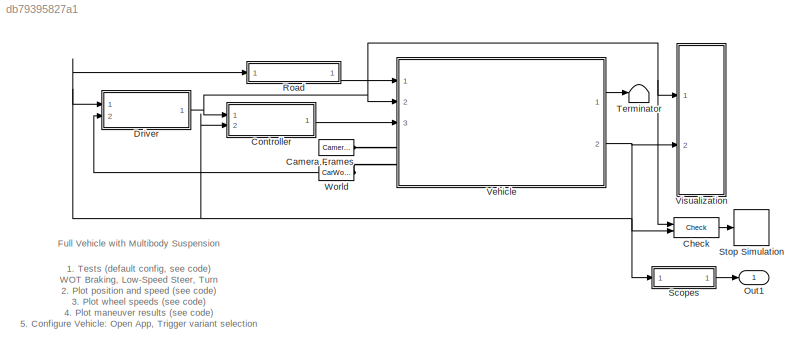
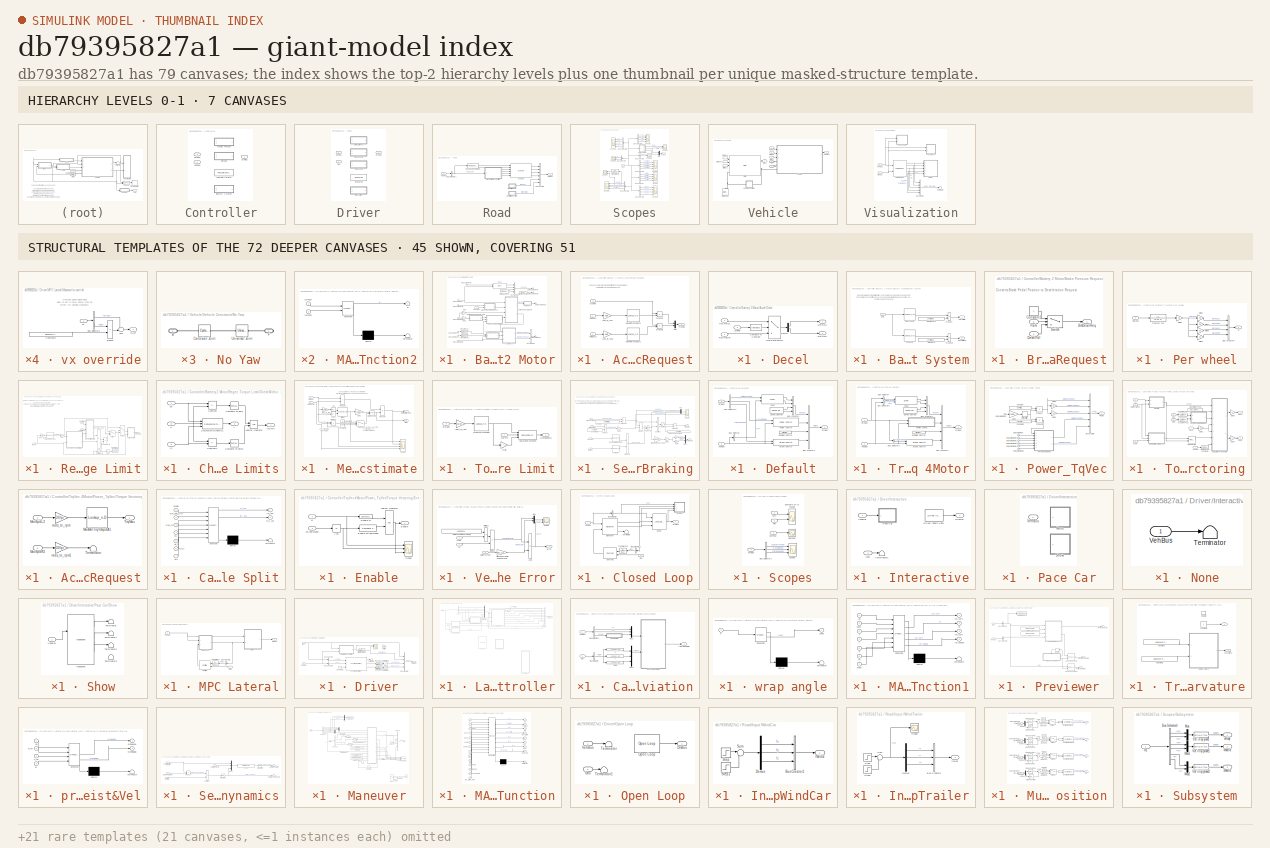
[diagram: thumbnail index - top-2 hierarchy levels (7 canvases) + 45 structural-template representatives of the remaining 72 canvases]
MODEL slx_db79395827a1
KIND model
CONFIG AbsTol = 1e-3
CONFIG EnableMultiTasking = on
CONFIG FixedStep = auto
CONFIG InitFcn = sm_car_config_camera;\nVehicle = sm_car_vehcfg_checkConfig(Vehicle);\nsm_car_check_tire_model(bdroot);\naddpath('<path>')\naddpath('<path>')\naddpath('<path> scripts')
CONFIG MaxStep = 0.4
CONFIG MinStep = auto
CONFIG PostLoadFcn = disp('Disabling trailer by default.')\nset_param([bdroot '/Vehicle'],'popup_trailer','Off')\nwarning('off','sm:sli:setup:compile:LocalSolverNotSupported')\nsm_car_config_maneuver(bdroot,'WOT Braking');\nsm_car_config_vehicle(bdroot);\nsm_car_config_logging(bdroot);
CONFIG PreLoadFcn = disp('Loading default data for 2-axle vehicle and 1-axle trailer.')\nif verLessThan('matlab', '9.11')\n    load Vehicle_139\n    Vehicle = Vehicle_139;\n    load Trailer_01\n    Trailer = Trailer_01;\nelse\n    load Vehicle_189\n    Vehicle = Vehicle_189;\n    load Trailer_07\n    Trailer = Trailer_07;    \nend\n\ndisp('Turning off MFEval warnings...')\ndisp('Solver:CoeffChecks:Eyk -- OFF') \ndisp('Solver:Limits...<+616ch>
CONFIG RelTol = 1e-3
CONFIG SampleTimeConstraint = Unconstrained
CONFIG SolverName = ode23t
CONFIG StartFcn = tic;
CONFIG StartTime = 0.0
CONFIG StopFcn = Elapsed_Sim_Time = toc;\n% disp(['Elapsed Sim Time = ' num2str(Elapsed_Sim_Time)]);\n% Run script that exports relevant simulation data to json\nsimToJson
CONFIG StopTime = 310
BLOCK [Reference] Camera Frames  REF=Camera_Frame_Definitions/Camera Frames
  Ports = [0, 0, 0, 0, 0, 0, 1]
  SourceBlock = Camera_Frame_Definitions/Camera Frames
  SourceType = Camera Frame Definitions
BLOCK [Reference] Check  REF=sm_car_lib/Maneuver/Check  (lib defined in slx_05426f0848b6, slx_5dc2867fb1c9)
  Ports = [2, 1]
  SourceBlock = sm_car_lib/Maneuver/Check
BLOCK [SubSystem] Controller
  AttributesFormatString = %<popup_control>
  LabelModeActiveChoice = Default
  Ports = [2, 1]
  RequestExecContextInheritance = off
  Variant = on
  VariantControl = Variant1
  VariantControlMode = label
BLOCK [Outport] Controller/ CtrlBus
  VectorParamsAs1DForOutWhenUnconnected = off
BLOCK [SubSystem] Controller/Battery 2 Motor
  Ports = [2, 1]
  RequestExecContextInheritance = off
  VariantControl = Battery2Motor
BLOCK [SubSystem] Controller/Battery 2 Motor/Accel Torque Request
  Ports = [3, 1]
  RequestExecContextInheritance = off
BLOCK [Inport] Controller/Battery 2 Motor/Accel Torque Request/AccelPdl
  Port = 3
BLOCK [Lookup_n-D] Controller/Battery 2 Motor/Accel Torque Request/MaxMotTrqVsSpdA1
  BreakpointsForDimension1 = Control.MotorA1.TorqueSpd.w.Value %Mot.w_eff_bp_EV_rear
  ExtrapMethod = Clip
  InputPortMap = u0
  InternalRulePriority = Speed
  NumberOfTableDimensions = 1
  OutDataTypeStr = Inherit: Inherit from 'Table data'
  Ports = [1, 1]
  RndMeth = Simplest
  Table = Control.MotorA1.TorqueSpd.trq.Value % Mot.T_t_EV_rear
  UseLastTableValue = on
BLOCK [Lookup_n-D] Controller/Battery 2 Motor/Accel Torque Request/MaxMotTrqVsSpdA2
  BreakpointsForDimension1 = Control.MotorA2.TorqueSpd.w.Value
  ExtrapMethod = Clip
  InputPortMap = u0
  InternalRulePriority = Speed
  NumberOfTableDimensions = 1
  OutDataTypeStr = Inherit: Inherit from 'Table data'
  Ports = [1, 1]
  RndMeth = Simplest
  Table = Control.MotorA2.TorqueSpd.trq.Value
  UseLastTableValue = on
BLOCK [Inport] Controller/Battery 2 Motor/Accel Torque Request/MotSpdA1
BLOCK [Inport] Controller/Battery 2 Motor/Accel Torque Request/MotSpdA2
  Port = 2
BLOCK [Mux] Controller/Battery 2 Motor/Accel Torque Request/Mux
  DisplayOption = bar
  Inputs = 2
  Ports = [2, 1]
BLOCK [Product] Controller/Battery 2 Motor/Accel Torque Request/Product1
  Ports = [2, 1]
BLOCK [Product] Controller/Battery 2 Motor/Accel Torque Request/Product2
  Ports = [2, 1]
BLOCK [Outport] Controller/Battery 2 Motor/Accel Torque Request/TrqCmd
  VectorParamsAs1DForOutWhenUnconnected = off
BLOCK [Gain] Controller/Battery 2 Motor/Accel Torque Request/rads_to_rpm
  Gain = 30/pi
BLOCK [Gain] Controller/Battery 2 Motor/Accel Torque Request/rads_to_rpm1
  Gain = 30/pi
BLOCK [SubSystem] Controller/Battery 2 Motor/Accel//Decel
  Ports = [3, 2]
  RequestExecContextInheritance = off
BLOCK [Switch] Controller/Battery 2 Motor/Accel//Decel/Accel Decel Switch
  Criteria = u2 > Threshold
  InputSameDT = off
  SaturateOnIntegerOverflow = off
BLOCK [Inport] Controller/Battery 2 Motor/Accel//Decel/AccelPdl
  Port = 3
BLOCK [Reference] Controller/Battery 2 Motor/Accel//Decel/Compare To Constant  REF=simulink/Logic and Bit
Operations/Compare
To Constant
  Ports = [1, 1]
  SourceBlock = simulink/Logic and Bit\nOperations/Compare\nTo Constant
  SourceProductBaseCode = SL
  SourceType = Compare To Constant
BLOCK [Demux] Controller/Battery 2 Motor/Accel//Decel/Demux
  Outputs = 2
  Ports = [1, 2]
BLOCK [Outport] Controller/Battery 2 Motor/Accel//Decel/MotTrqA1
  VectorParamsAs1DForOutWhenUnconnected = off
BLOCK [Outport] Controller/Battery 2 Motor/Accel//Decel/MotTrqA2
  Port = 2
  VectorParamsAs1DForOutWhenUnconnected = off
BLOCK [Inport] Controller/Battery 2 Motor/Accel//Decel/TrqCmdAcc
  Port = 2
BLOCK [Inport] Controller/Battery 2 Motor/Accel//Decel/TrqCmdDec
BLOCK [SubSystem] Controller/Battery 2 Motor/Battery Management System
  Ports = [1, 2]
  RequestExecContextInheritance = off
BLOCK [Lookup_n-D] Controller/Battery 2 Motor/Battery Management System/ChrgLmt
  BreakpointsForDimension1 = Control.Battery.SOC_bpt
  ExtrapMethod = Clip
  InputPortMap = u0
  InternalRulePriority = Speed
  NumberOfTableDimensions = 1
  Ports = [1, 1]
  RndMeth = Simplest
  Table = Control.Battery.ChrgLmt_bpt
  UseLastTableValue = on
BLOCK [Lookup_n-D] Controller/Battery 2 Motor/Battery Management System/DischrgLmt
  BreakpointsForDimension1 = Control.Battery.SOC_bpt
  ExtrapMethod = Clip
  InputPortMap = u0
  InternalRulePriority = Speed
  NumberOfTableDimensions = 1
  Ports = [1, 1]
  RndMeth = Simplest
  Table = Control.Battery.DischrgLmt_bpt
  UseLastTableValue = on
BLOCK [Constant] Controller/Battery 2 Motor/Battery Management System/MaxChrg
  Value = Control.Battery.BattChrgMax
BLOCK [Constant] Controller/Battery 2 Motor/Battery Management System/MaxDischrg
  Value = Control.Battery.BattDischrgMax
BLOCK [Product] Controller/Battery 2 Motor/Battery Management System/Product
  Ports = [2, 1]
BLOCK [Product] Controller/Battery 2 Motor/Battery Management System/Product1
  Ports = [2, 1]
BLOCK [Outport] Controller/Battery 2 Motor/Battery Management System/PwrLimitChg
  Port = 2
  VectorParamsAs1DForOutWhenUnconnected = off
BLOCK [Outport] Controller/Battery 2 Motor/Battery Management System/PwrLimtDis
  VectorParamsAs1DForOutWhenUnconnected = off
BLOCK [Inport] Controller/Battery 2 Motor/Battery Management System/SOC
BLOCK [SubSystem] Controller/Battery 2 Motor/Brake Pressure Request
  Ports = [2, 1]
  RequestExecContextInheritance = off
BLOCK [Outport] Controller/Battery 2 Motor/Brake Pressure Request/BrkDecelReq
  VectorParamsAs1DForOutWhenUnconnected = off
BLOCK [Constant] Controller/Battery 2 Motor/Brake Pressure Request/Constant1
BLOCK [Inport] Controller/Battery 2 Motor/Brake Pressure Request/DecelPdl
BLOCK [Inport] Controller/Battery 2 Motor/Brake Pressure Request/Park
  Port = 2
BLOCK [Switch] Controller/Battery 2 Motor/Brake Pressure Request/Switch
  Criteria = u2 > Threshold
  InputSameDT = off
  SaturateOnIntegerOverflow = off
  ZeroCross = off
BLOCK [BusCreator] Controller/Battery 2 Motor/Bus Creator2
  DisplayOption = bar
  InheritFromInputs = on
  Inputs = 2
  Ports = [2, 1]
BLOCK [BusCreator] Controller/Battery 2 Motor/Bus Creator3
  DisplayOption = bar
  InheritFromInputs = on
  Inputs = 4
  Ports = [4, 1]
BLOCK [Constant] Controller/Battery 2 Motor/Constant
  Value = 0
BLOCK [Reference] Controller/Battery 2 Motor/Driveline Control  REF=sm_car_lib/Control/Driveline Control  (lib defined in slx_05426f0848b6, slx_5dc2867fb1c9)
  Ports = [0, 1]
  SourceBlock = sm_car_lib/Control/Driveline Control
  SourceType = SubSystem
BLOCK [Gain] Controller/Battery 2 Motor/Gain
  Gain = 1/100
BLOCK [Gain] Controller/Battery 2 Motor/Gain1
  Gain = 1/100
BLOCK [Inport] Controller/Battery 2 Motor/In Bus Element
BLOCK [Inport] Controller/Battery 2 Motor/In Bus Element1
BLOCK [Inport] Controller/Battery 2 Motor/In Bus Element2
BLOCK [Inport] Controller/Battery 2 Motor/In Bus Element3
  Port = 2
BLOCK [Inport] Controller/Battery 2 Motor/In Bus Element4
BLOCK [Inport] Controller/Battery 2 Motor/In Bus Element5
  Port = 2
BLOCK [Inport] Controller/Battery 2 Motor/In Bus Element6
  Port = 2
BLOCK [Outport] Controller/Battery 2 Motor/Out Bus Element
BLOCK [Outport] Controller/Battery 2 Motor/Out Bus Element1
BLOCK [Outport] Controller/Battery 2 Motor/Out Bus Element2
BLOCK [Outport] Controller/Battery 2 Motor/Out Bus Element3
BLOCK [SubSystem] Controller/Battery 2 Motor/Per wheel
  Ports = [1, 1]
  RequestExecContextInheritance = off
BLOCK [BusCreator] Controller/Battery 2 Motor/Per wheel/Bus Creator4
  DisplayOption = bar
  InheritFromInputs = on
  Inputs = 4
  Ports = [4, 1]
BLOCK [Gain] Controller/Battery 2 Motor/Per wheel/Gain1
  Gain = 0.6
BLOCK [Gain] Controller/Battery 2 Motor/Per wheel/Gain2
  Gain = 0.6
BLOCK [Gain] Controller/Battery 2 Motor/Per wheel/Gain3
  Gain = 0.4
BLOCK [Gain] Controller/Battery 2 Motor/Per wheel/Gain4
  Gain = 0.4
BLOCK [Gain] Controller/Battery 2 Motor/Per wheel/Gain5
  Gain = 0.5
BLOCK [TransferFcn] Controller/Battery 2 Motor/Per wheel/Transfer Fcn
  Denominator = [0.01 1]
BLOCK [Outport] Controller/Battery 2 Motor/Per wheel/p
  VectorParamsAs1DForOutWhenUnconnected = off
BLOCK [Inport] Controller/Battery 2 Motor/Per wheel/pBrake
BLOCK [SubSystem] Controller/Battery 2 Motor/Regen Torque Limit
  Ports = [3, 1]
  RequestExecContextInheritance = off
BLOCK [Abs] Controller/Battery 2 Motor/Regen Torque Limit/Abs
  SaturateOnIntegerOverflow = off
  ZeroCross = off
BLOCK [SubSystem] Controller/Battery 2 Motor/Regen Torque Limit/Check Within Limits
  Ports = [3, 2]
  RequestExecContextInheritance = off
BLOCK [Reference] Controller/Battery 2 Motor/Regen Torque Limit/Check Within Limits/Compare To Zero  REF=simulink/Logic and Bit
Operations/Compare
To Zero
  Ports = [1, 1]
  SourceBlock = simulink/Logic and Bit\nOperations/Compare\nTo Zero
  SourceProductBaseCode = SL
  SourceType = Compare To Zero
BLOCK [Reference] Controller/Battery 2 Motor/Regen Torque Limit/Check Within Limits/Compare To Zero1  REF=simulink/Logic and Bit
Operations/Compare
To Zero
  Ports = [1, 1]
  SourceBlock = simulink/Logic and Bit\nOperations/Compare\nTo Zero
  SourceProductBaseCode = SL
  SourceType = Compare To Zero
BLOCK [Outport] Controller/Battery 2 Motor/Regen Torque Limit/Check Within Limits/InLimit
  SampleTime = 0
  VectorParamsAs1DForOutWhenUnconnected = off
BLOCK [Logic] Controller/Battery 2 Motor/Regen Torque Limit/Check Within Limits/Logical Operator
  AllPortsSameDT = off
  OutDataTypeStr = boolean
  Ports = [2, 1]
BLOCK [Reference] Controller/Battery 2 Motor/Regen Torque Limit/Check Within Limits/Saturation Dynamic1  REF=simulink/Discontinuities/Saturation
Dynamic
  Ports = [3, 1]
  SourceBlock = simulink/Discontinuities/Saturation\nDynamic
  SourceProductBaseCode = SL
  SourceType = Saturation Dynamic
BLOCK [Sum] Controller/Battery 2 Motor/Regen Torque Limit/Check Within Limits/Subtract
  IconShape = rectangular
  Inputs = +-
  Ports = [2, 1]
BLOCK [Sum] Controller/Battery 2 Motor/Regen Torque Limit/Check Within Limits/Subtract1
  IconShape = rectangular
  Inputs = -+
  Ports = [2, 1]
BLOCK [Inport] Controller/Battery 2 Motor/Regen Torque Limit/Check Within Limits/lo
  Port = 2
BLOCK [Inport] Controller/Battery 2 Motor/Regen Torque Limit/Check Within Limits/u
  Port = 3
BLOCK [Inport] Controller/Battery 2 Motor/Regen Torque Limit/Check Within Limits/up
BLOCK [Outport] Controller/Battery 2 Motor/Regen Torque Limit/Check Within Limits/y
  Port = 2
  VectorParamsAs1DForOutWhenUnconnected = off
BLOCK [Reference] Controller/Battery 2 Motor/Regen Torque Limit/Compare To Constant1  REF=simulink/Logic and Bit
Operations/Compare
To Constant
  Ports = [1, 1]
  SourceBlock = simulink/Logic and Bit\nOperations/Compare\nTo Constant
  SourceProductBaseCode = SL
  SourceType = Compare To Constant
BLOCK [Product] Controller/Battery 2 Motor/Regen Torque Limit/ElecToMechPwr
  Inputs = */
  Ports = [2, 1]
BLOCK [Gain] Controller/Battery 2 Motor/Regen Torque Limit/Gain
  Gain = -1
BLOCK [Lookup_n-D] Controller/Battery 2 Motor/Regen Torque Limit/MaxMotTrqVsSpd
  BreakpointsForDimension1 = Control.MotorA1.TorqueSpd.w.Value
  ExtrapMethod = Clip
  InputPortMap = u0
  InternalRulePriority = Speed
  NumberOfTableDimensions = 1
  OutDataTypeStr = Inherit: Inherit from 'Table data'
  Ports = [1, 1]
  RndMeth = Simplest
  Table = Control.MotorA1.TorqueSpd.trq.Value
  UseLastTableValue = on
BLOCK [SubSystem] Controller/Battery 2 Motor/Regen Torque Limit/Mech to Elec Power Estimate
  Ports = [2, 2]
  RequestExecContextInheritance = off
BLOCK [Abs] Controller/Battery 2 Motor/Regen Torque Limit/Mech to Elec Power Estimate/Abs
  SaturateOnIntegerOverflow = off
  ZeroCross = off
BLOCK [Abs] Controller/Battery 2 Motor/Regen Torque Limit/Mech to Elec Power Estimate/Abs1
  SaturateOnIntegerOverflow = off
  ZeroCross = off
BLOCK [Constant] Controller/Battery 2 Motor/Regen Torque Limit/Mech to Elec Power Estimate/Constant1
  SampleTime = 0
  Value = -1
BLOCK [Constant] Controller/Battery 2 Motor/Regen Torque Limit/Mech to Elec Power Estimate/Constant2
  SampleTime = 0
BLOCK [Lookup_n-D] Controller/Battery 2 Motor/Regen Torque Limit/Mech to Elec Power Estimate/Eff Map
  BreakpointsForDimension1 = Control.MotorA1.LossTable.w.Value
  BreakpointsForDimension2 = Control.MotorA1.LossTable.trq.Value
  ExtrapMethod = Clip
  InputPortMap = u0,u1
  InternalRulePriority = Speed
  OutDataTypeStr = Inherit: Inherit from 'Table data'
  Ports = [2, 1]
  RndMeth = Simplest
  Table = Control.MotorA1.LossTable.efficiency.Value
  UseLastTableValue = on
BLOCK [Outport] Controller/Battery 2 Motor/Regen Torque Limit/Mech to Elec Power Estimate/Eff2k
  Port = 2
  VectorParamsAs1DForOutWhenUnconnected = off
BLOCK [Gain] Controller/Battery 2 Motor/Regen Torque Limit/Mech to Elec Power Estimate/Gain1
  Gain = 1/100
BLOCK [Math] Controller/Battery 2 Motor/Regen Torque Limit/Mech to Elec Power Estimate/Math Function
  Operator = pow
  OutputSignalType = real
  Ports = [2, 1]
  SignedPower = on
BLOCK [Outport] Controller/Battery 2 Motor/Regen Torque Limit/Mech to Elec Power Estimate/MotPwrElecReq
  VectorParamsAs1DForOutWhenUnconnected = off
BLOCK [Inport] Controller/Battery 2 Motor/Regen Torque Limit/Mech to Elec Power Estimate/MotSpd
  Port = 2
BLOCK [Inport] Controller/Battery 2 Motor/Regen Torque Limit/Mech to Elec Power Estimate/MotTrqCmd
BLOCK [Product] Controller/Battery 2 Motor/Regen Torque Limit/Mech to Elec Power Estimate/Product
  Ports = [2, 1]
BLOCK [Product] Controller/Battery 2 Motor/Regen Torque Limit/Mech to Elec Power Estimate/Product3
  Ports = [2, 1]
BLOCK [Product] Controller/Battery 2 Motor/Regen Torque Limit/Mech to Elec Power Estimate/Product4
  Ports = [2, 1]
BLOCK [Scope] Controller/Battery 2 Motor/Regen Torque Limit/Mech to Elec Power Estimate/Scope
  Floating = off
  NumInputPorts = 4
  Ports = [4]
  ScopeSpecificationString = Simulink.scopes.TimeScopeBlockCfg('CurrentConfiguration', extmgr.ConfigurationSet(extmgr.Configuration('Core','General UI',true),extmgr.Configuration('Core','Source UI',true),extmgr.Configuration('Sources','WiredSimulink',true,'DataLoggingVariableName','ScopeData2'),extmgr.Configuration('Visuals','Time Domain',true,'SerializedDisplays',{struct('MinYLimReal','84.125','MaxYLimReal','92.875','YLabelR...<+3393ch>
BLOCK [Switch] Controller/Battery 2 Motor/Regen Torque Limit/Mech to Elec Power Estimate/Switch2
  InputSameDT = off
  SaturateOnIntegerOverflow = off
  ZeroCross = off
BLOCK [Gain] Controller/Battery 2 Motor/Regen Torque Limit/Mech to Elec Power Estimate/rads_to_rpm
  Gain = 30/pi
  NameLocation = top
BLOCK [Product] Controller/Battery 2 Motor/Regen Torque Limit/MechPwrToTrq
  Inputs = */
  Ports = [2, 1]
BLOCK [Inport] Controller/Battery 2 Motor/Regen Torque Limit/MotSpd
  Port = 3
BLOCK [Inport] Controller/Battery 2 Motor/Regen Torque Limit/PwrLimitChg 
  NameLocation = top
  Port = 2
BLOCK [Inport] Controller/Battery 2 Motor/Regen Torque Limit/PwrLimitDis
  NameLocation = top
BLOCK [Saturate] Controller/Battery 2 Motor/Regen Torque Limit/Saturation
  LowerLimit = 2
  UpperLimit = inf
BLOCK [Switch] Controller/Battery 2 Motor/Regen Torque Limit/Switch
  Criteria = u2 > Threshold
  InputSameDT = off
  SaturateOnIntegerOverflow = off
  ZeroCross = off
BLOCK [Switch] Controller/Battery 2 Motor/Regen Torque Limit/Switch1
  Criteria = u2 > Threshold
  InputSameDT = off
  SaturateOnIntegerOverflow = off
  ZeroCross = off
BLOCK [SubSystem] Controller/Battery 2 Motor/Regen Torque Limit/Torque Limit
  Ports = [2, 1]
  RequestExecContextInheritance = off
BLOCK [Gain] Controller/Battery 2 Motor/Regen Torque Limit/Torque Limit/Gain
  Gain = -1
BLOCK [Lookup_n-D] Controller/Battery 2 Motor/Regen Torque Limit/Torque Limit/MaxMotTrqVsSpd
  BreakpointsForDimension1 = Control.MotorA1.TorqueSpd.w.Value
  ExtrapMethod = Clip
  InputPortMap = u0
  InternalRulePriority = Speed
  NumberOfTableDimensions = 1
  OutDataTypeStr = Inherit: Inherit from 'Table data'
  Ports = [1, 1]
  RndMeth = Simplest
  Table = Control.MotorA1.TorqueSpd.trq.Value
  UseLastTableValue = on
BLOCK [Outport] Controller/Battery 2 Motor/Regen Torque Limit/Torque Limit/MotReqCmd
  VectorParamsAs1DForOutWhenUnconnected = off
BLOCK [Inport] Controller/Battery 2 Motor/Regen Torque Limit/Torque Limit/MotSpd
  Port = 2
BLOCK [Inport] Controller/Battery 2 Motor/Regen Torque Limit/Torque Limit/MotTrq
BLOCK [Reference] Controller/Battery 2 Motor/Regen Torque Limit/Torque Limit/Saturation Dynamic  REF=simulink/Discontinuities/Saturation
Dynamic
  Ports = [3, 1]
  SourceBlock = simulink/Discontinuities/Saturation\nDynamic
  SourceProductBaseCode = SL
  SourceType = Saturation Dynamic
BLOCK [Gain] Controller/Battery 2 Motor/Regen Torque Limit/Torque Limit/rads_to_rpm
  Gain = 30/pi
BLOCK [Outport] Controller/Battery 2 Motor/Regen Torque Limit/TrqReqLim 
  VectorParamsAs1DForOutWhenUnconnected = off
BLOCK [Gain] Controller/Battery 2 Motor/Regen Torque Limit/rads_to_rpm
  Gain = 30/pi
BLOCK [SubSystem] Controller/Battery 2 Motor/Series Regen Braking
  InitFcn = %[~]=autosharedicon('autolibutils',gcb,0);
  Ports = [4, 2]
  RequestExecContextInheritance = off
  VariantControl = Variant
BLOCK [Outport] Controller/Battery 2 Motor/Series Regen Braking/ BrkCmd
  VectorParamsAs1DForOutWhenUnconnected = off
BLOCK [Outport] Controller/Battery 2 Motor/Series Regen Braking/ MotTrqCmd
  Port = 2
  VectorParamsAs1DForOutWhenUnconnected = off
BLOCK [Inport] Controller/Battery 2 Motor/Series Regen Braking/BattSoc
  Port = 3
BLOCK [Inport] Controller/Battery 2 Motor/Series Regen Braking/BrkDecelReq
  Port = 2
BLOCK [Lookup_n-D] Controller/Battery 2 Motor/Series Regen Braking/ChrgLmt
  BreakpointsForDimension1 = Control.Battery.SOC_bpt
  ExtrapMethod = Clip
  InputPortMap = u0
  InternalRulePriority = Speed
  NumberOfTableDimensions = 1
  Ports = [1, 1]
  RndMeth = Simplest
  Table = Control.Battery.ChrgLmt_bpt
  UseLastTableValue = on
BLOCK [Constant] Controller/Battery 2 Motor/Series Regen Braking/Constant
  Value = Control.Brakes.BrakeTorqueWheelFull.Value
BLOCK [Constant] Controller/Battery 2 Motor/Series Regen Braking/Constant1
  Value = Control.Brakes.FullTorque2pCaliper.Value
BLOCK [Constant] Controller/Battery 2 Motor/Series Regen Braking/Constant2
  Value = Control.Brakes.Ndiff_front
BLOCK [Gain] Controller/Battery 2 Motor/Series Regen Braking/Gain1
  Gain = -1
BLOCK [Gain] Controller/Battery 2 Motor/Series Regen Braking/Gain2
  Gain = -1
BLOCK [Gain] Controller/Battery 2 Motor/Series Regen Braking/Gain3
  Gain = 0.6
BLOCK [Gain] Controller/Battery 2 Motor/Series Regen Braking/Gain4
  Gain = 0.4
BLOCK [MinMax] Controller/Battery 2 Motor/Series Regen Braking/MinMax
  Inputs = 2
  Ports = [2, 1]
BLOCK [Mux] Controller/Battery 2 Motor/Series Regen Braking/Mux
  DisplayOption = bar
  Inputs = 3
  Ports = [3, 1]
BLOCK [Mux] Controller/Battery 2 Motor/Series Regen Braking/Mux1
  DisplayOption = bar
  Inputs = 2
  Ports = [2, 1]
BLOCK [Saturate] Controller/Battery 2 Motor/Series Regen Braking/Negative 5
  LowerLimit = 0
  UpperLimit = inf
  ZeroCross = off
BLOCK [Product] Controller/Battery 2 Motor/Series Regen Braking/Product
  Ports = [2, 1]
BLOCK [Product] Controller/Battery 2 Motor/Series Regen Braking/Product1
  Ports = [2, 1]
BLOCK [Product] Controller/Battery 2 Motor/Series Regen Braking/Product2
  Ports = [2, 1]
BLOCK [Product] Controller/Battery 2 Motor/Series Regen Braking/Product3
  Ports = [2, 1]
BLOCK [Product] Controller/Battery 2 Motor/Series Regen Braking/Product4
  Inputs = **
  Ports = [2, 1]
BLOCK [Lookup_n-D] Controller/Battery 2 Motor/Series Regen Braking/RegenBrakingCutoff
  BreakpointsForDimension1 = Control.Power.RegenBrkSpd_bpt
  ExtrapMethod = Clip
  InputPortMap = u0
  InternalRulePriority = Speed
  NumberOfTableDimensions = 1
  Ports = [1, 1]
  RndMeth = Simplest
  Table = Control.Power.RegenBrkCutOff
  UseLastTableValue = on
BLOCK [Scope] Controller/Battery 2 Motor/Series Regen Braking/Scope
  Floating = off
  NumInputPorts = 2
  Ports = [2]
  ScopeSpecificationString = Simulink.scopes.TimeScopeBlockCfg('CurrentConfiguration', extmgr.ConfigurationSet(extmgr.Configuration('Core','General UI',true),extmgr.Configuration('Core','Source UI',true),extmgr.Configuration('Sources','WiredSimulink',true,'DataLoggingVariableName','ScopeData1'),extmgr.Configuration('Visuals','Time Domain',true,'SerializedDisplays',{struct('MinYLimReal','-294.72625','MaxYLimReal','2652.53625',...<+2095ch>
BLOCK [Sum] Controller/Battery 2 Motor/Series Regen Braking/Subtract
  IconShape = rectangular
  Inputs = +-
  Ports = [2, 1]
BLOCK [Inport] Controller/Battery 2 Motor/Series Regen Braking/TrqReqLim
  Port = 4
BLOCK [Inport] Controller/Battery 2 Motor/Series Regen Braking/VehSpd
BLOCK [Gain] Controller/Battery 2 Motor/Series Regen Braking/WhlTrqReflectedToMot1
  Gain = 1/Control.Brakes.Ndiff_front
BLOCK [Reference] Controller/Battery 2 Motor/Spring Damper  REF=sm_car_lib/Inputs/Control Bus/Spring Damper  (lib defined in slx_05426f0848b6, slx_5dc2867fb1c9)
  Ports = [0, 2]
  SourceBlock = sm_car_lib/Inputs/Control Bus/Spring Damper
  SourceType = SubSystem
BLOCK [Reference] Controller/Battery 2 Motor/Susp  REF=sm_car_lib/Control/Steer  (lib defined in slx_05426f0848b6, slx_5dc2867fb1c9)
  NameLocation = top
  Ports = [2, 2]
  SourceBlock = sm_car_lib/Control/Steer
BLOCK [TransferFcn] Controller/Battery 2 Motor/Transfer Fcn1
  Denominator = [.001 1]
BLOCK [TransferFcn] Controller/Battery 2 Motor/Transfer Fcn2
  Denominator = [.001 1]
BLOCK [SubSystem] Controller/Default
  Ports = [2, 1]
  RequestExecContextInheritance = off
  VariantControl = Default
BLOCK [Reference] Controller/Default/Brake Control  REF=sm_car_lib/Control/Brake Control  (lib defined in slx_05426f0848b6, slx_5dc2867fb1c9)
  AttributesFormatString = %<ActiveVariant>
  Ports = [2, 1]
  SourceBlock = sm_car_lib/Control/Brake Control
BLOCK [BusCreator] Controller/Default/Bus Creator1
  DisplayOption = bar
  InheritFromInputs = on
  Inputs = 4
  Ports = [4, 1]
BLOCK [BusCreator] Controller/Default/Bus Creator2
  DisplayOption = bar
  InheritFromInputs = on
  Inputs = 4
  Ports = [4, 1]
BLOCK [BusSelector] Controller/Default/Bus Selector
  OutputSignals = Chassis.Body.CG.vx
  Ports = [1, 1]
BLOCK [BusSelector] Controller/Default/Bus Selector1
  OutputSignals = aSteerWheel,rAccelPedal,rBrakePedal
  Ports = [1, 3]
BLOCK [Outport] Controller/Default/CtrlBus
  VectorParamsAs1DForOutWhenUnconnected = off
BLOCK [Reference] Controller/Default/Driveline Control  REF=sm_car_lib/Control/Driveline Control  (lib defined in slx_05426f0848b6, slx_5dc2867fb1c9)
  Ports = [0, 1]
  SourceBlock = sm_car_lib/Control/Driveline Control
  SourceType = SubSystem
BLOCK [Inport] Controller/Default/DrvBus
BLOCK [Reference] Controller/Default/Power Control  REF=sm_car_lib/Control/Power Control  (lib defined in slx_05426f0848b6, slx_5dc2867fb1c9)
  Ports = [2, 1]
  SourceBlock = sm_car_lib/Control/Power Control
BLOCK [Reference] Controller/Default/Spring Damper  REF=sm_car_lib/Inputs/Control Bus/Spring Damper  (lib defined in slx_05426f0848b6, slx_5dc2867fb1c9)
  Ports = [0, 2]
  SourceBlock = sm_car_lib/Inputs/Control Bus/Spring Damper
  SourceType = SubSystem
BLOCK [Reference] Controller/Default/Susp  REF=sm_car_lib/Control/Steer  (lib defined in slx_05426f0848b6, slx_5dc2867fb1c9)
  NameLocation = top
  Ports = [2, 2]
  SourceBlock = sm_car_lib/Control/Steer
BLOCK [Inport] Controller/Default/VehBus
  Port = 2
BLOCK [Inport] Controller/DrvBus 
BLOCK [Reference] Controller/Fuel Cell 1 Motor  REF=Control_FuelCell1Motor/Fuel Cell 1Motor Control
  Ports = [2, 1]
  SourceBlock = Control_FuelCell1Motor/Fuel Cell 1Motor Control
  SourceType = Control of Fuel Cell Powertrain
BLOCK [SubSystem] Controller/TrqVec 4Motor
  Ports = [2, 1]
  RequestExecContextInheritance = off
  VariantControl = TrqVec_4Motor
BLOCK [Reference] Controller/TrqVec 4Motor/Brake Control  REF=sm_car_lib/Control/Brake Control  (lib defined in slx_05426f0848b6, slx_5dc2867fb1c9)
  AttributesFormatString = %<ActiveVariant>
  Ports = [2, 1]
  SourceBlock = sm_car_lib/Control/Brake Control
BLOCK [BusCreator] Controller/TrqVec 4Motor/Bus Creator1
  DisplayOption = bar
  InheritFromInputs = on
  Inputs = 4
  Ports = [4, 1]
BLOCK [BusCreator] Controller/TrqVec 4Motor/Bus Creator2
  DisplayOption = bar
  InheritFromInputs = on
  Inputs = 4
  Ports = [4, 1]
BLOCK [BusSelector] Controller/TrqVec 4Motor/Bus Selector
  OutputSignals = aSteerWheel
  Ports = [1, 1]
BLOCK [BusSelector] Controller/TrqVec 4Motor/Bus Selector1
  OutputSignals = rBrakePedal
  Ports = [1, 1]
BLOCK [BusSelector] Controller/TrqVec 4Motor/Bus Selector2
  OutputSignals = Chassis.Body.CG.vx
  Ports = [1, 1]
BLOCK [Outport] Controller/TrqVec 4Motor/CtrlBus
  VectorParamsAs1DForOutWhenUnconnected = off
BLOCK [Reference] Controller/TrqVec 4Motor/Driveline Control  REF=sm_car_lib/Control/Driveline Control  (lib defined in slx_05426f0848b6, slx_5dc2867fb1c9)
  Ports = [0, 1]
  SourceBlock = sm_car_lib/Control/Driveline Control
  SourceType = SubSystem
BLOCK [Inport] Controller/TrqVec 4Motor/DrvBus
BLOCK [SubSystem] Controller/TrqVec 4Motor/Power_TqVec
  Ports = [2, 1]
  RequestExecContextInheritance = off
BLOCK [BusCreator] Controller/TrqVec 4Motor/Power_TqVec/Bus Creator
  DisplayOption = bar
  InheritFromInputs = on
  Inputs = 5
  Ports = [5, 1]
BLOCK [Constant] Controller/TrqVec 4Motor/Power_TqVec/Constant
  Value = Control.trq_ratio_front
BLOCK [Constant] Controller/TrqVec 4Motor/Power_TqVec/Constant2
  Value = 1-Control.trq_ratio_front
BLOCK [Gain] Controller/TrqVec 4Motor/Power_TqVec/Gain1
  Gain = 1600
BLOCK [Gain] Controller/TrqVec 4Motor/Power_TqVec/Gain3
  Gain = 0.5
BLOCK [Gain] Controller/TrqVec 4Motor/Power_TqVec/Gain4
  Gain = 0.5
BLOCK [Inport] Controller/TrqVec 4Motor/Power_TqVec/In Bus Element
  Port = 2
BLOCK [Inport] Controller/TrqVec 4Motor/Power_TqVec/In Bus Element1
  Port = 2
BLOCK [Inport] Controller/TrqVec 4Motor/Power_TqVec/In Bus Element2
BLOCK [Inport] Controller/TrqVec 4Motor/Power_TqVec/In Bus Element3
BLOCK [Inport] Controller/TrqVec 4Motor/Power_TqVec/In Bus Element5
  Port = 2
BLOCK [Inport] Controller/TrqVec 4Motor/Power_TqVec/In Bus Element6
BLOCK [Inport] Controller/TrqVec 4Motor/Power_TqVec/In Bus Element8
  Port = 2
BLOCK [Outport] Controller/TrqVec 4Motor/Power_TqVec/Power
  VectorParamsAs1DForOutWhenUnconnected = off
BLOCK [Product] Controller/TrqVec 4Motor/Power_TqVec/Product
  Ports = [2, 1]
BLOCK [Product] Controller/TrqVec 4Motor/Power_TqVec/Product1
  Ports = [2, 1]
BLOCK [RateLimiter] Controller/TrqVec 4Motor/Power_TqVec/Rate Limiter
  FallingSlewLimit = -5000
  RisingSlewLimit = 300
  SampleTimeMode = inherited
BLOCK [SubSystem] Controller/TrqVec 4Motor/Power_TqVec/Torque Vectoring
  Ports = [7, 2]
  RequestExecContextInheritance = off
BLOCK [SubSystem] Controller/TrqVec 4Motor/Power_TqVec/Torque Vectoring/Accel Torque Request
  Ports = [2, 1]
  RequestExecContextInheritance = off
BLOCK [Lookup_n-D] Controller/TrqVec 4Motor/Power_TqVec/Torque Vectoring/Accel Torque Request/MaxMotTrqVsSpdA1
  BreakpointsForDimension1 = Control.MotorR2.TorqueSpd.w.Value
  ExtrapMethod = Clip
  InputPortMap = u0
  InternalRulePriority = Speed
  NumberOfTableDimensions = 1
  OutDataTypeStr = Inherit: Inherit from 'Table data'
  Ports = [1, 1]
  RndMeth = Simplest
  Table = Control.MotorL2.TorqueSpd.trq.Value
  UseLastTableValue = on
BLOCK [Inport] Controller/TrqVec 4Motor/Power_TqVec/Torque Vectoring/Accel Torque Request/MotSpdL2
BLOCK [Inport] Controller/TrqVec 4Motor/Power_TqVec/Torque Vectoring/Accel Torque Request/MotSpdR2
  Port = 2
BLOCK [Terminator] Controller/TrqVec 4Motor/Power_TqVec/Torque Vectoring/Accel Torque Request/Terminator
BLOCK [Outport] Controller/TrqVec 4Motor/Power_TqVec/Torque Vectoring/Accel Torque Request/TrqMax
  VectorParamsAs1DForOutWhenUnconnected = off
BLOCK [Gain] Controller/TrqVec 4Motor/Power_TqVec/Torque Vectoring/Accel Torque Request/rads_to_rpm
  Gain = 30/pi
BLOCK [Gain] Controller/TrqVec 4Motor/Power_TqVec/Torque Vectoring/Accel Torque Request/rads_to_rpm1
  Gain = 30/pi
BLOCK [SubSystem] Controller/TrqVec 4Motor/Power_TqVec/Torque Vectoring/Calculate Torque Split
  ErrorFcn = Stateflow.Translate.translate
  PermitHierarchicalResolution = ExplicitOnly
  Ports = [7, 2]
  RequestExecContextInheritance = off
  SFBlockType = MATLAB Function
  TreatAsAtomicUnit = on
BLOCK [Demux] Controller/TrqVec 4Motor/Power_TqVec/Torque Vectoring/Calculate Torque Split/ Demux 
  Outputs = 1
  Ports = [1, 1]
BLOCK [S-Function] Controller/TrqVec 4Motor/Power_TqVec/Torque Vectoring/Calculate Torque Split/ SFunction 
  EnableBusSupport = on
  FunctionName = sf_sfun
  PortCounts = [7 3]
  Ports = [7, 3]
  SFcnIsStateOwnerBlock = off
  SFunctionDeploymentMode = off
  Tag = Stateflow S-Function 1
BLOCK [Terminator] Controller/TrqVec 4Motor/Power_TqVec/Torque Vectoring/Calculate Torque Split/ Terminator 
BLOCK [Inport] Controller/TrqVec 4Motor/Power_TqVec/Torque Vectoring/Calculate Torque Split/brk
  Port = 7
BLOCK [Inport] Controller/TrqVec 4Motor/Power_TqVec/Torque Vectoring/Calculate Torque Split/enable
BLOCK [Inport] Controller/TrqVec 4Motor/Power_TqVec/Torque Vectoring/Calculate Torque Split/max_delta_trq
  Port = 2
BLOCK [Inport] Controller/TrqVec 4Motor/Power_TqVec/Torque Vectoring/Calculate Torque Split/max_tq
  Port = 3
BLOCK [Inport] Controller/TrqVec 4Motor/Power_TqVec/Torque Vectoring/Calculate Torque Split/tq_l
  Port = 4
BLOCK [Outport] Controller/TrqVec 4Motor/Power_TqVec/Torque Vectoring/Calculate Torque Split/tq_l_out
  VectorParamsAs1DForOutWhenUnconnected = off
BLOCK [Inport] Controller/TrqVec 4Motor/Power_TqVec/Torque Vectoring/Calculate Torque Split/tq_r
  Port = 5
BLOCK [Outport] Controller/TrqVec 4Motor/Power_TqVec/Torque Vectoring/Calculate Torque Split/tq_r_out
  Port = 2
  VectorParamsAs1DForOutWhenUnconnected = off
BLOCK [Inport] Controller/TrqVec 4Motor/Power_TqVec/Torque Vectoring/Calculate Torque Split/tq_tv
  Port = 6
BLOCK [Reference] Controller/TrqVec 4Motor/Power_TqVec/Torque Vectoring/Compare To Constant1  REF=simulink/Logic and Bit
Operations/Compare
To Constant
  Ports = [1, 1]
  SourceBlock = simulink/Logic and Bit\nOperations/Compare\nTo Constant
  SourceProductBaseCode = SL
  SourceType = Compare To Constant
BLOCK [SubSystem] Controller/TrqVec 4Motor/Power_TqVec/Torque Vectoring/Enable
  Ports = [2, 1]
  RequestExecContextInheritance = off
BLOCK [Abs] Controller/TrqVec 4Motor/Power_TqVec/Torque Vectoring/Enable/Abs
  SaturateOnIntegerOverflow = off
  ZeroCross = off
BLOCK [Outport] Controller/TrqVec 4Motor/Power_TqVec/Torque Vectoring/Enable/Enable
  VectorParamsAs1DForOutWhenUnconnected = off
BLOCK [Reference] Controller/TrqVec 4Motor/Power_TqVec/Torque Vectoring/Enable/Enable aSteerWheel  REF=simulink/Logic and Bit
Operations/Compare
To Constant
  Ports = [1, 1]
  SourceBlock = simulink/Logic and Bit\nOperations/Compare\nTo Constant
  SourceProductBaseCode = SL
  SourceType = Compare To Constant
BLOCK [Reference] Controller/TrqVec 4Motor/Power_TqVec/Torque Vectoring/Enable/Enable vx  REF=simulink/Logic and Bit
Operations/Compare
To Constant
  Ports = [1, 1]
  SourceBlock = simulink/Logic and Bit\nOperations/Compare\nTo Constant
  SourceProductBaseCode = SL
  SourceType = Compare To Constant
BLOCK [Logic] Controller/TrqVec 4Motor/Power_TqVec/Torque Vectoring/Enable/Logical Operator
  AllPortsSameDT = off
  OutDataTypeStr = boolean
  Ports = [2, 1]
BLOCK [Scope] Controller/TrqVec 4Motor/Power_TqVec/Torque Vectoring/Enable/Scope
  Floating = off
  NumInputPorts = 3
  Ports = [3]
  ScopeSpecificationString = Simulink.scopes.TimeScopeBlockCfg('CurrentConfiguration', extmgr.ConfigurationSet(extmgr.Configuration('Core','General UI',true),extmgr.Configuration('Core','Source UI',true),extmgr.Configuration('Sources','WiredSimulink',true,'DataLoggingVariableName','ScopeData2'),extmgr.Configuration('Visuals','Time Domain',true,'SerializedDisplays',{struct('MinYLimReal','-2.17759','MaxYLimReal','28.67979','YLa...<+2752ch>
BLOCK [Inport] Controller/TrqVec 4Motor/Power_TqVec/Torque Vectoring/Enable/aSteerWheel
  Port = 2
BLOCK [Inport] Controller/TrqVec 4Motor/Power_TqVec/Torque Vectoring/Enable/vx
BLOCK [Gain] Controller/TrqVec 4Motor/Power_TqVec/Torque Vectoring/Gain1
  Gain = 0.5
BLOCK [Gain] Controller/TrqVec 4Motor/Power_TqVec/Torque Vectoring/Gain5
BLOCK [Gain] Controller/TrqVec 4Motor/Power_TqVec/Torque Vectoring/Gain6
BLOCK [Constant] Controller/TrqVec 4Motor/Power_TqVec/Torque Vectoring/Max Delta Torque
  NameLocation = top
  Value = max_torque_delta
BLOCK [Reference] Controller/TrqVec 4Motor/Power_TqVec/Torque Vectoring/PID Controller  REF=slpidlib/PID Controller
  Ports = [2, 1]
  SourceBlock = slpidlib/PID Controller
  SourceProductBaseCode = SL
  SourceType = PID 1dof
BLOCK [TransferFcn] Controller/TrqVec 4Motor/Power_TqVec/Torque Vectoring/Transfer Fcn1
  Denominator = [.001 1]
BLOCK [TransferFcn] Controller/TrqVec 4Motor/Power_TqVec/Torque Vectoring/Transfer Fcn2
  Denominator = [.001 1]
BLOCK [SubSystem] Controller/TrqVec 4Motor/Power_TqVec/Torque Vectoring/Vehicle Slip Angle Error
  Ports = [3, 1]
  RequestExecContextInheritance = off
BLOCK [Sum] Controller/TrqVec 4Motor/Power_TqVec/Torque Vectoring/Vehicle Slip Angle Error/Add1
  IconShape = rectangular
  Inputs = -+
  Ports = [2, 1]
BLOCK [Constant] Controller/TrqVec 4Motor/Power_TqVec/Torque Vectoring/Vehicle Slip Angle Error/Distance Yaw Ctr Front Axle
  NameLocation = top
  Value = Vehicle.Chassis.Body.sAxle2.Value(1)/(-2)
BLOCK [Product] Controller/TrqVec 4Motor/Power_TqVec/Torque Vectoring/Vehicle Slip Angle Error/Divide3
  Inputs = */
  Ports = [2, 1]
BLOCK [Outport] Controller/TrqVec 4Motor/Power_TqVec/Torque Vectoring/Vehicle Slip Angle Error/Error
  VectorParamsAs1DForOutWhenUnconnected = off
BLOCK [Product] Controller/TrqVec 4Motor/Power_TqVec/Torque Vectoring/Vehicle Slip Angle Error/Multiply2
  Ports = [2, 1]
BLOCK [Mux] Controller/TrqVec 4Motor/Power_TqVec/Torque Vectoring/Vehicle Slip Angle Error/Mux
  DisplayOption = bar
  Inputs = 2
  Ports = [2, 1]
BLOCK [Scope] Controller/TrqVec 4Motor/Power_TqVec/Torque Vectoring/Vehicle Slip Angle Error/Scope
  Floating = off
  NumInputPorts = 2
  Ports = [2]
  ScopeSpecificationString = Simulink.scopes.TimeScopeBlockCfg('CurrentConfiguration', extmgr.ConfigurationSet(extmgr.Configuration('Core','General UI',true),extmgr.Configuration('Core','Source UI',true),extmgr.Configuration('Sources','WiredSimulink',true,'DataLoggingVariableName','ScopeData1'),extmgr.Configuration('Visuals','Time Domain',true,'SerializedDisplays',{struct('MinYLimReal','-0.04829','MaxYLimReal','0.00545','YLab...<+2096ch>
BLOCK [Gain] Controller/TrqVec 4Motor/Power_TqVec/Torque Vectoring/Vehicle Slip Angle Error/Steering Wheel to Driving Wheel
  Gain = aStr_to_aWhl
BLOCK [Inport] Controller/TrqVec 4Motor/Power_TqVec/Torque Vectoring/Vehicle Slip Angle Error/aSteerWheel
  Port = 2
BLOCK [Inport] Controller/TrqVec 4Motor/Power_TqVec/Torque Vectoring/Vehicle Slip Angle Error/nYaw
  Port = 3
BLOCK [Inport] Controller/TrqVec 4Motor/Power_TqVec/Torque Vectoring/Vehicle Slip Angle Error/vx
BLOCK [Inport] Controller/TrqVec 4Motor/Power_TqVec/Torque Vectoring/aSteerWheel
  Port = 3
BLOCK [Inport] Controller/TrqVec 4Motor/Power_TqVec/Torque Vectoring/nYaw
  Port = 6
BLOCK [Inport] Controller/TrqVec 4Motor/Power_TqVec/Torque Vectoring/rBrake
  Port = 7
BLOCK [Inport] Controller/TrqVec 4Motor/Power_TqVec/Torque Vectoring/trqA2
BLOCK [Outport] Controller/TrqVec 4Motor/Power_TqVec/Torque Vectoring/trqL2
  VectorParamsAs1DForOutWhenUnconnected = off
BLOCK [Outport] Controller/TrqVec 4Motor/Power_TqVec/Torque Vectoring/trqR2
  Port = 2
  VectorParamsAs1DForOutWhenUnconnected = off
BLOCK [Inport] Controller/TrqVec 4Motor/Power_TqVec/Torque Vectoring/vx
  Port = 2
BLOCK [Inport] Controller/TrqVec 4Motor/Power_TqVec/Torque Vectoring/wL2
  Port = 4
BLOCK [Inport] Controller/TrqVec 4Motor/Power_TqVec/Torque Vectoring/wR2
  Port = 5
BLOCK [Reference] Controller/TrqVec 4Motor/Spring Damper  REF=sm_car_lib/Inputs/Control Bus/Spring Damper  (lib defined in slx_05426f0848b6, slx_5dc2867fb1c9)
  Ports = [0, 2]
  SourceBlock = sm_car_lib/Inputs/Control Bus/Spring Damper
  SourceType = SubSystem
BLOCK [Reference] Controller/TrqVec 4Motor/Susp  REF=sm_car_lib/Control/Steer  (lib defined in slx_05426f0848b6, slx_5dc2867fb1c9)
  NameLocation = top
  Ports = [2, 2]
  SourceBlock = sm_car_lib/Control/Steer
BLOCK [Inport] Controller/TrqVec 4Motor/VehBus
  Port = 2
BLOCK [Inport] Controller/VehBus 
  Port = 2
BLOCK [SubSystem] Driver
  AttributesFormatString = %<popup_driver_type>
  LabelModeActiveChoice = MPC_Lateral
  Ports = [2, 1]
  RequestExecContextInheritance = off
  Variant = on
  VariantControl = Variant1
  VariantControlMode = label
BLOCK [Outport] Driver/ DrvBus
  VectorParamsAs1DForOutWhenUnconnected = off
BLOCK [SubSystem] Driver/Closed Loop
  Ports = [2, 1]
  RequestExecContextInheritance = off
  VariantControl = Closed_Loop
BLOCK [BusSelector] Driver/Closed Loop/Bus Selector
  OutputSignals = Chassis.Body.CG.vx
  Ports = [1, 1]
BLOCK [BusSelector] Driver/Closed Loop/Bus Selector2
  NameLocation = top
  OutputSignals = dist
  Ports = [1, 1]
BLOCK [Reference] Driver/Closed Loop/Driver  REF=Driver_Long_Lat_Stanley/Long Lat Stanley
  Ports = [3, 1]
  SourceBlock = Driver_Long_Lat_Stanley/Long Lat Stanley
BLOCK [Outport] Driver/Closed Loop/DrvBus
  VectorParamsAs1DForOutWhenUnconnected = off
BLOCK [Reference] Driver/Closed Loop/Maneuver  REF=Maneuver_Get_Pose/Maneuver
  Ports = [2, 3]
  SourceBlock = Maneuver_Get_Pose/Maneuver
BLOCK [Inport] Driver/Closed Loop/Obs
  Port = 2
BLOCK [Reference] Driver/Closed Loop/Override  REF=sm_car_lib/Environment/Override  (lib defined in slx_05426f0848b6, slx_5dc2867fb1c9)
  AttributesFormatString = %<LabelModeActiveChoice>
  Ports = [2, 1]
  SourceBlock = sm_car_lib/Environment/Override
BLOCK [SubSystem] Driver/Closed Loop/Scopes
  Ports = [4]
  RequestExecContextInheritance = off
BLOCK [Inport] Driver/Closed Loop/Scopes/<vx>
BLOCK [BusSelector] Driver/Closed Loop/Scopes/Bus Selector1
  OutputSignals = aSteerWheel,rAccelPedal,rBrakePedal
  Ports = [1, 3]
BLOCK [Scope] Driver/Closed Loop/Scopes/Compare vx to Target
  Floating = off
  NumInputPorts = 2
  Ports = [2]
  ScopeSpecificationString = Simulink.scopes.TimeScopeBlockCfg('CurrentConfiguration', extmgr.ConfigurationSet(extmgr.Configuration('Core','General UI',true),extmgr.Configuration('Core','Source UI',true),extmgr.Configuration('Sources','WiredSimulink',true,'DataLoggingVariableName','ScopeData1'),extmgr.Configuration('Visuals','Time Domain',true,'SerializedDisplays',{struct('MinYLimReal','-326.96749','MaxYLimReal','577.70683','...<+1421ch>
BLOCK [Inport] Driver/Closed Loop/Scopes/CurPose
  Port = 3
BLOCK [Inport] Driver/Closed Loop/Scopes/DrvBus
  Port = 4
BLOCK [Inport] Driver/Closed Loop/Scopes/Ref
  Port = 2
BLOCK [Scope] Driver/Closed Loop/Scopes/RefPose
  Floating = off
  NumInputPorts = 1
  Ports = [1]
  ScopeSpecificationString = Simulink.scopes.TimeScopeBlockCfg('CurrentConfiguration', extmgr.ConfigurationSet(extmgr.Configuration('Core','General UI',true),extmgr.Configuration('Core','Source UI',true),extmgr.Configuration('Sources','WiredSimulink',true,'DataLoggingVariableName','ScopeData1'),extmgr.Configuration('Visuals','Time Domain',true,'SerializedDisplays',{struct('MinYLimReal','-598.75829','MaxYLimReal','469.37365','...<+1811ch>
BLOCK [Scope] Driver/Closed Loop/Scopes/Scope1
  Floating = off
  NumInputPorts = 3
  Ports = [3]
  ScopeSpecificationString = Simulink.scopes.TimeScopeBlockCfg('CurrentConfiguration', extmgr.ConfigurationSet(extmgr.Configuration('Core','General UI',true),extmgr.Configuration('Core','Source UI',true),extmgr.Configuration('Sources','WiredSimulink',true,'DataLoggingVariableName','ScopeData2'),extmgr.Configuration('Visuals','Time Domain',true,'SerializedDisplays',{struct('MinYLimReal','-0.7946','MaxYLimReal','0.14953','YLabe...<+2803ch>
BLOCK [Terminator] Driver/Closed Loop/Terminator
BLOCK [TransferFcn] Driver/Closed Loop/Transfer Fcn
  Denominator = [0.1 1]
BLOCK [Inport] Driver/Closed Loop/VehBus
BLOCK [Reference] Driver/Drive Cycle  REF=Driver_Drive_Cycle/Drive Cycle
  Ports = [2, 1]
  SourceBlock = Driver_Drive_Cycle/Drive Cycle
  SourceType = SubSystem
BLOCK [SubSystem] Driver/Interactive
  AttributesFormatString = Pace Car: %<popup_pace_car>
  Ports = [2, 1]
  RequestExecContextInheritance = off
  VariantControl = Interactive
BLOCK [Reference] Driver/Interactive/Driver Inputs Xbox  REF=Driver_Gamepad_Xbox/Gamepad Xbox/Driver Inputs Xbox
  Ports = [0, 1]
  SourceBlock = Driver_Gamepad_Xbox/Gamepad Xbox/Driver Inputs Xbox
  SourceType = SubSystem
BLOCK [Outport] Driver/Interactive/DrvBus
  VectorParamsAs1DForOutWhenUnconnected = off
BLOCK [Inport] Driver/Interactive/Obs
  Port = 2
BLOCK [SubSystem] Driver/Interactive/Pace Car
  AttributesFormatString = %<popup_pace_car>
  LabelModeActiveChoice = None
  Ports = [1]
  RequestExecContextInheritance = off
  Variant = on
  VariantControl = Variant1
  VariantControlMode = label
BLOCK [SubSystem] Driver/Interactive/Pace Car/None
  Ports = [1]
  RequestExecContextInheritance = off
  VariantControl = None
BLOCK [Terminator] Driver/Interactive/Pace Car/None/Terminator
BLOCK [Inport] Driver/Interactive/Pace Car/None/VehBus 
BLOCK [SubSystem] Driver/Interactive/Pace Car/Show
  Ports = [1]
  RequestExecContextInheritance = off
  VariantControl = Show
BLOCK [Reference] Driver/Interactive/Pace Car/Show/Maneuver  REF=Maneuver_Get_Pose/Maneuver
  Ports = [2, 3]
  SourceBlock = Maneuver_Get_Pose/Maneuver
BLOCK [Terminator] Driver/Interactive/Pace Car/Show/Terminator
BLOCK [Terminator] Driver/Interactive/Pace Car/Show/Terminator1
BLOCK [Terminator] Driver/Interactive/Pace Car/Show/Terminator2
BLOCK [Terminator] Driver/Interactive/Pace Car/Show/Terminator3
BLOCK [Inport] Driver/Interactive/Pace Car/Show/VehBus 
BLOCK [Inport] Driver/Interactive/Pace Car/VehBus 
BLOCK [Terminator] Driver/Interactive/Terminator1
BLOCK [Inport] Driver/Interactive/VehBus
BLOCK [SubSystem] Driver/MPC Lateral
  Ports = [2, 1]
  RequestExecContextInheritance = off
  VariantControl = MPC_Lateral
BLOCK [BusSelector] Driver/MPC Lateral/Bus Selector2
  NameLocation = top
  OutputSignals = dist
  Ports = [1, 1]
BLOCK [SubSystem] Driver/MPC Lateral/Driver
  AncestorBlock = Driver_Long_Lat_Stanley_1/Long Lat Stanley
  Ports = [2, 1]
  RequestExecContextInheritance = off
BLOCK [BusCreator] Driver/MPC Lateral/Driver/Bus Creator5
  DisplayOption = bar
  InheritFromInputs = on
  Inputs = 4
  Ports = [4, 1]
BLOCK [BusSelector] Driver/MPC Lateral/Driver/Bus Selector1
  OutputSignals = vTarget
  Ports = [1, 1]
BLOCK [BusSelector] Driver/MPC Lateral/Driver/Bus Selector2
  OutputSignals = Chassis.Body.CG.vx
  Ports = [1, 1]
BLOCK [Constant] Driver/MPC Lateral/Driver/Constant9
  Value = 0
BLOCK [Outport] Driver/MPC Lateral/Driver/DrvBus
  VectorParamsAs1DForOutWhenUnconnected = off
BLOCK [TransferFcn] Driver/MPC Lateral/Driver/Filter Steer Cmd1
  Denominator = [1/Driver.Lateral.fSteerCutoff.Value 1]
BLOCK [SubSystem] Driver/MPC Lateral/Driver/Lateral MPC controller
  Ports = [2, 1]
  RequestExecContextInheritance = off
BLOCK [BusSelector] Driver/MPC Lateral/Driver/Lateral MPC controller/Bus Selector4
  OutputSignals = Chassis.Body.CG.gx,Chassis.Body.CG.vx,Chassis.Body.CG.vy,World.nYaw
  Ports = [1, 4]
BLOCK [SubSystem] Driver/MPC Lateral/Driver/Lateral MPC controller/Calculate lateral deviation
  Ports = [2, 1]
  RequestExecContextInheritance = off
BLOCK [BusSelector] Driver/MPC Lateral/Driver/Lateral MPC controller/Calculate lateral deviation/Bus Selector
  OutputSignals = dist
  Ports = [1, 1]
BLOCK [BusSelector] Driver/MPC Lateral/Driver/Lateral MPC controller/Calculate lateral deviation/Bus Selector4
  OutputSignals = World.x,World.y,World.aYaw
  Ports = [1, 3]
BLOCK [Outport] Driver/MPC Lateral/Driver/Lateral MPC controller/Calculate lateral deviation/Lateral deviation
BLOCK [SubSystem] Driver/MPC Lateral/Driver/Lateral MPC controller/Calculate lateral deviation/MATLAB Function2
  ErrorFcn = Stateflow.Translate.translate
  PermitHierarchicalResolution = ExplicitOnly
  Ports = [2, 1]
  RequestExecContextInheritance = off
  SFBlockType = MATLAB Function
  TreatAsAtomicUnit = on
BLOCK [Demux] Driver/MPC Lateral/Driver/Lateral MPC controller/Calculate lateral deviation/MATLAB Function2/ Demux 
  Outputs = 1
  Ports = [1, 1]
BLOCK [S-Function] Driver/MPC Lateral/Driver/Lateral MPC controller/Calculate lateral deviation/MATLAB Function2/ SFunction 
  EnableBusSupport = on
  FunctionName = sf_sfun
  PortCounts = [2 2]
  Ports = [2, 2]
  SFcnIsStateOwnerBlock = off
  SFunctionDeploymentMode = off
  Tag = Stateflow S-Function 6
BLOCK [Terminator] Driver/MPC Lateral/Driver/Lateral MPC controller/Calculate lateral deviation/MATLAB Function2/ Terminator 
BLOCK [Inport] Driver/MPC Lateral/Driver/Lateral MPC controller/Calculate lateral deviation/MATLAB Function2/curPose
BLOCK [Outport] Driver/MPC Lateral/Driver/Lateral MPC controller/Calculate lateral deviation/MATLAB Function2/ld
BLOCK [Inport] Driver/MPC Lateral/Driver/Lateral MPC controller/Calculate lateral deviation/MATLAB Function2/refPose
  Port = 2
BLOCK [Mux] Driver/MPC Lateral/Driver/Lateral MPC controller/Calculate lateral deviation/Mux1
  DisplayOption = bar
  Inputs = 3
  Ports = [3, 1]
BLOCK [Mux] Driver/MPC Lateral/Driver/Lateral MPC controller/Calculate lateral deviation/Mux2
  DisplayOption = bar
  Inputs = 3
  Ports = [3, 1]
BLOCK [Inport] Driver/MPC Lateral/Driver/Lateral MPC controller/Calculate lateral deviation/Ref
  Port = 2
BLOCK [Inport] Driver/MPC Lateral/Driver/Lateral MPC controller/Calculate lateral deviation/VehBus
BLOCK [Lookup_n-D] Driver/MPC Lateral/Driver/Lateral MPC controller/Calculate lateral deviation/theta
  BreakpointsForDimension1 = Maneuver.Trajectory.xTrajectory.Value
  InputPortMap = u0
  InternalRulePriority = Speed
  NumberOfTableDimensions = 1
  Ports = [1, 1]
  RndMeth = Simplest
  Table = Maneuver.Trajectory.aYaw.Value
BLOCK [SubSystem] Driver/MPC Lateral/Driver/Lateral MPC controller/Calculate lateral deviation/wrap angle
  ErrorFcn = Stateflow.Translate.translate
  PermitHierarchicalResolution = ExplicitOnly
  Ports = [1, 1]
  RequestExecContextInheritance = off
  SFBlockType = MATLAB Function
  TreatAsAtomicUnit = on
BLOCK [Demux] Driver/MPC Lateral/Driver/Lateral MPC controller/Calculate lateral deviation/wrap angle/ Demux 
  Outputs = 1
  Ports = [1, 1]
BLOCK [S-Function] Driver/MPC Lateral/Driver/Lateral MPC controller/Calculate lateral deviation/wrap angle/ SFunction 
  EnableBusSupport = on
  FunctionName = sf_sfun
  PortCounts = [1 2]
  Ports = [1, 2]
  SFcnIsStateOwnerBlock = off
  SFunctionDeploymentMode = off
  Tag = Stateflow S-Function 2
BLOCK [Terminator] Driver/MPC Lateral/Driver/Lateral MPC controller/Calculate lateral deviation/wrap angle/ Terminator 
BLOCK [Outport] Driver/MPC Lateral/Driver/Lateral MPC controller/Calculate lateral deviation/wrap angle/aYaw
BLOCK [Inport] Driver/MPC Lateral/Driver/Lateral MPC controller/Calculate lateral deviation/wrap angle/u
BLOCK [Lookup_n-D] Driver/MPC Lateral/Driver/Lateral MPC controller/Calculate lateral deviation/x
  BreakpointsForDimension1 = Maneuver.Trajectory.xTrajectory.Value
  InputPortMap = u0
  InternalRulePriority = Speed
  NumberOfTableDimensions = 1
  Ports = [1, 1]
  RndMeth = Simplest
  Table = Maneuver.Trajectory.x.Value
BLOCK [Lookup_n-D] Driver/MPC Lateral/Driver/Lateral MPC controller/Calculate lateral deviation/y
  BreakpointsForDimension1 = Maneuver.Trajectory.xTrajectory.Value
  InputPortMap = u0
  InternalRulePriority = Speed
  NumberOfTableDimensions = 1
  Ports = [1, 1]
  RndMeth = Simplest
  Table = Maneuver.Trajectory.y.Value
BLOCK [ModelReference] Driver/MPC Lateral/Driver/Lateral MPC controller/Controller1
  CachedPortDiscreteRates = [-1]
  Commented = on
  ModelNameDialog = lateral_mpc.slx
  ModelReferenceVersion = 4.97
  Ports = [3, 7]
BLOCK [FirstOrderHold] Driver/MPC Lateral/Driver/Lateral MPC controller/First Order Hold
  ErrorTolerance = inf
BLOCK [SubSystem] Driver/MPC Lateral/Driver/Lateral MPC controller/MATLAB Function1
  Commented = on
  ErrorFcn = Stateflow.Translate.translate
  PermitHierarchicalResolution = ExplicitOnly
  Ports = [7, 4]
  RequestExecContextInheritance = off
  SFBlockType = MATLAB Function
  SystemSampleTime = 0.1
BLOCK [Demux] Driver/MPC Lateral/Driver/Lateral MPC controller/MATLAB Function1/ Demux 
  Outputs = 1
  Ports = [1, 1]
BLOCK [S-Function] Driver/MPC Lateral/Driver/Lateral MPC controller/MATLAB Function1/ SFunction 
  EnableBusSupport = on
  FunctionName = sf_sfun
  PortCounts = [7 5]
  Ports = [7, 5]
  SFcnIsStateOwnerBlock = off
  SFunctionDeploymentMode = off
  Tag = Stateflow S-Function 4
BLOCK [Terminator] Driver/MPC Lateral/Driver/Lateral MPC controller/MATLAB Function1/ Terminator 
BLOCK [Inport] Driver/MPC Lateral/Driver/Lateral MPC controller/MATLAB Function1/aYaw
  Port = 7
BLOCK [Inport] Driver/MPC Lateral/Driver/Lateral MPC controller/MATLAB Function1/ad
BLOCK [Outport] Driver/MPC Lateral/Driver/Lateral MPC controller/MATLAB Function1/cur_curv
  VectorParamsAs1DForOutWhenUnconnected = off
BLOCK [Inport] Driver/MPC Lateral/Driver/Lateral MPC controller/MATLAB Function1/d
  Port = 5
BLOCK [Outport] Driver/MPC Lateral/Driver/Lateral MPC controller/MATLAB Function1/ld
  Port = 2
BLOCK [Inport] Driver/MPC Lateral/Driver/Lateral MPC controller/MATLAB Function1/pose
  Port = 2
BLOCK [Outport] Driver/MPC Lateral/Driver/Lateral MPC controller/MATLAB Function1/ref_curv
  Port = 3
BLOCK [Outport] Driver/MPC Lateral/Driver/Lateral MPC controller/MATLAB Function1/ref_speed
  Port = 4
BLOCK [Inport] Driver/MPC Lateral/Driver/Lateral MPC controller/MATLAB Function1/vx
  Port = 6
BLOCK [Inport] Driver/MPC Lateral/Driver/Lateral MPC controller/MATLAB Function1/x
  Port = 3
BLOCK [Inport] Driver/MPC Lateral/Driver/Lateral MPC controller/MATLAB Function1/y
  Port = 4
BLOCK [Mux] Driver/MPC Lateral/Driver/Lateral MPC controller/Mux
  DisplayOption = bar
  Inputs = 6
  Ports = [6, 1]
BLOCK [SubSystem] Driver/MPC Lateral/Driver/Lateral MPC controller/Previewer
  Ports = [2, 3]
  RequestExecContextInheritance = off
BLOCK [Lookup_n-D] Driver/MPC Lateral/Driver/Lateral MPC controller/Previewer/1-D Lookup Table
  BreakpointsForDimension1 = Maneuver.Trajectory.xTrajectory.Value
  InputPortMap = u0,p221
  InternalRulePriority = Speed
  NumberOfTableDimensions = 1
  Ports = [2, 1]
  RndMeth = Simplest
  Table = tanh([-5:5])
  TableSource = Input port
BLOCK [Lookup_n-D] Driver/MPC Lateral/Driver/Lateral MPC controller/Previewer/1-D Lookup Table1
  BreakpointsForDimension1 = Maneuver.Trajectory.xTrajectory.Value
  InputPortMap = u0,p221
  InternalRulePriority = Speed
  NumberOfTableDimensions = 1
  Ports = [2, 1]
  RndMeth = Simplest
  Table = tanh([-5:5])
  TableSource = Input port
BLOCK [BusSelector] Driver/MPC Lateral/Driver/Lateral MPC controller/Previewer/Bus Selector
  OutputSignals = dist
  Ports = [1, 1]
BLOCK [BusSelector] Driver/MPC Lateral/Driver/Lateral MPC controller/Previewer/Bus Selector4
  OutputSignals = Chassis.Body.CG.vx
  Ports = [1, 1]
BLOCK [Outport] Driver/MPC Lateral/Driver/Lateral MPC controller/Previewer/Current curvature
BLOCK [Constant] Driver/MPC Lateral/Driver/Lateral MPC controller/Previewer/Distance ref
  Value = Maneuver.Trajectory.xTrajectory.Value
BLOCK [Memory] Driver/MPC Lateral/Driver/Lateral MPC controller/Previewer/Memory
  InitialCondition = 1
BLOCK [Outport] Driver/MPC Lateral/Driver/Lateral MPC controller/Previewer/Preview curvature
  Port = 2
BLOCK [Outport] Driver/MPC Lateral/Driver/Lateral MPC controller/Previewer/Preview velocity
  Port = 3
BLOCK [Inport] Driver/MPC Lateral/Driver/Lateral MPC controller/Previewer/Ref
  Port = 2
BLOCK [ToWorkspace] Driver/MPC Lateral/Driver/Lateral MPC controller/Previewer/To Workspace
  FixptAsFi = on
  MaxDataPoints = inf
  Ports = [1]
  SampleTime = -1
  SaveFormat = Timeseries
  VariableName = distance_along_traj
BLOCK [SubSystem] Driver/MPC Lateral/Driver/Lateral MPC controller/Previewer/Trajectory curvature
  Ports = [0, 2, 1]
  RequestExecContextInheritance = off
  TreatAsAtomicUnit = on
BLOCK [Outport] Driver/MPC Lateral/Driver/Lateral MPC controller/Previewer/Trajectory curvature/ 
  InitialOutput = 1
BLOCK [Constant] Driver/MPC Lateral/Driver/Lateral MPC controller/Previewer/Trajectory curvature/Constant
  Value = Maneuver.Trajectory.x.Value
BLOCK [Constant] Driver/MPC Lateral/Driver/Lateral MPC controller/Previewer/Trajectory curvature/Constant1
  Value = Maneuver.Trajectory.y.Value
BLOCK [Constant] Driver/MPC Lateral/Driver/Lateral MPC controller/Previewer/Trajectory curvature/Constant2
  Value = 0
BLOCK [EnablePort] Driver/MPC Lateral/Driver/Lateral MPC controller/Previewer/Trajectory curvature/Enable
  Ports = []
BLOCK [Outport] Driver/MPC Lateral/Driver/Lateral MPC controller/Previewer/Trajectory curvature/curvature
  Port = 2
BLOCK [SubSystem] Driver/MPC Lateral/Driver/Lateral MPC controller/Previewer/Trajectory curvature/getCurvature
  ErrorFcn = Stateflow.Translate.translate
  MinAlgLoopOccurrences = on
  PermitHierarchicalResolution = ExplicitOnly
  Ports = [2, 1]
  RTWFcnNameOpts = Use subsystem name
  RTWFileNameOpts = Use subsystem name
  RequestExecContextInheritance = off
  SFBlockType = MATLAB Function
  SystemSampleTime = 0.1
  TreatAsAtomicUnit = on
BLOCK [Demux] Driver/MPC Lateral/Driver/Lateral MPC controller/Previewer/Trajectory curvature/getCurvature/ Demux 
  Outputs = 1
  Ports = [1, 1]
BLOCK [S-Function] Driver/MPC Lateral/Driver/Lateral MPC controller/Previewer/Trajectory curvature/getCurvature/ SFunction 
  EnableBusSupport = on
  FunctionName = sf_sfun
  PortCounts = [2 2]
  Ports = [2, 2]
  SFcnIsStateOwnerBlock = off
  SFunctionDeploymentMode = off
  Tag = Stateflow S-Function 7
BLOCK [Terminator] Driver/MPC Lateral/Driver/Lateral MPC controller/Previewer/Trajectory curvature/getCurvature/ Terminator 
BLOCK [Outport] Driver/MPC Lateral/Driver/Lateral MPC controller/Previewer/Trajectory curvature/getCurvature/curvature
  VectorParamsAs1DForOutWhenUnconnected = off
BLOCK [Inport] Driver/MPC Lateral/Driver/Lateral MPC controller/Previewer/Trajectory curvature/getCurvature/x
BLOCK [Inport] Driver/MPC Lateral/Driver/Lateral MPC controller/Previewer/Trajectory curvature/getCurvature/y
  Port = 2
BLOCK [Inport] Driver/MPC Lateral/Driver/Lateral MPC controller/Previewer/VehBus
BLOCK [SubSystem] Driver/MPC Lateral/Driver/Lateral MPC controller/Previewer/previewDist&Vel
  ErrorFcn = Stateflow.Translate.translate
  PermitHierarchicalResolution = ExplicitOnly
  Ports = [4, 2]
  RTWFcnNameOpts = Use subsystem name
  RTWFileNameOpts = Use subsystem name
  RequestExecContextInheritance = off
  SFBlockType = MATLAB Function
  SystemSampleTime = 0.1
  TreatAsAtomicUnit = on
BLOCK [Demux] Driver/MPC Lateral/Driver/Lateral MPC controller/Previewer/previewDist&Vel/ Demux 
  Outputs = 1
  Ports = [1, 1]
BLOCK [S-Function] Driver/MPC Lateral/Driver/Lateral MPC controller/Previewer/previewDist&Vel/ SFunction 
  EnableBusSupport = on
  FunctionName = sf_sfun
  PortCounts = [4 3]
  Ports = [4, 3]
  SFcnIsStateOwnerBlock = off
  SFunctionDeploymentMode = off
  Tag = Stateflow S-Function 5
BLOCK [Terminator] Driver/MPC Lateral/Driver/Lateral MPC controller/Previewer/previewDist&Vel/ Terminator 
BLOCK [Inport] Driver/MPC Lateral/Driver/Lateral MPC controller/Previewer/previewDist&Vel/ad
BLOCK [Inport] Driver/MPC Lateral/Driver/Lateral MPC controller/Previewer/previewDist&Vel/d_ref
  Port = 2
BLOCK [Outport] Driver/MPC Lateral/Driver/Lateral MPC controller/Previewer/previewDist&Vel/previewDist
  Port = 2
  VectorParamsAs1DForOutWhenUnconnected = off
BLOCK [Outport] Driver/MPC Lateral/Driver/Lateral MPC controller/Previewer/previewDist&Vel/previewVel
BLOCK [Inport] Driver/MPC Lateral/Driver/Lateral MPC controller/Previewer/previewDist&Vel/v0
  Port = 4
BLOCK [Inport] Driver/MPC Lateral/Driver/Lateral MPC controller/Previewer/previewDist&Vel/v_ref
  Port = 3
BLOCK [Constant] Driver/MPC Lateral/Driver/Lateral MPC controller/Previewer/v ref
  Value = Maneuver.Trajectory.vx.Value
BLOCK [ModelReference] Driver/MPC Lateral/Driver/Lateral MPC controller/RL-MPC Controller
  CachedPortDiscreteRates = [-1]
  ModelNameDialog = lateral_mpc.slx
  ModelReferenceVersion = 4.97
  Ports = [3, 7]
BLOCK [Inport] Driver/MPC Lateral/Driver/Lateral MPC controller/Ref
BLOCK [SubSystem] Driver/MPC Lateral/Driver/Lateral MPC controller/Sensor Dynamics
  Ports = [4, 2]
  RequestExecContextInheritance = off
BLOCK [Inport] Driver/MPC Lateral/Driver/Lateral MPC controller/Sensor Dynamics/Current curvature
  Port = 4
BLOCK [Integrator] Driver/MPC Lateral/Driver/Lateral MPC controller/Sensor Dynamics/Integrator
  Ports = [1, 1]
BLOCK [Integrator] Driver/MPC Lateral/Driver/Lateral MPC controller/Sensor Dynamics/Integrator1
  Ports = [1, 1]
BLOCK [Outport] Driver/MPC Lateral/Driver/Lateral MPC controller/Sensor Dynamics/Lateral deviation
  VectorParamsAs1DForOutWhenUnconnected = off
BLOCK [Inport] Driver/MPC Lateral/Driver/Lateral MPC controller/Sensor Dynamics/Lateral velocity
  Port = 2
BLOCK [Inport] Driver/MPC Lateral/Driver/Lateral MPC controller/Sensor Dynamics/Longitudinal velocity
BLOCK [Mux] Driver/MPC Lateral/Driver/Lateral MPC controller/Sensor Dynamics/Mux1
  DisplayOption = bar
  Inputs = [1 1 1]
  Ports = [3, 1]
BLOCK [Product] Driver/MPC Lateral/Driver/Lateral MPC controller/Sensor Dynamics/Product
  Ports = [2, 1]
BLOCK [Outport] Driver/MPC Lateral/Driver/Lateral MPC controller/Sensor Dynamics/Relative yaw angle
  Port = 2
  VectorParamsAs1DForOutWhenUnconnected = off
BLOCK [Sum] Driver/MPC Lateral/Driver/Lateral MPC controller/Sensor Dynamics/Subtract
  IconShape = rectangular
  Inputs = -+
  Ports = [2, 1]
BLOCK [Inport] Driver/MPC Lateral/Driver/Lateral MPC controller/Sensor Dynamics/Yaw rate
  Port = 3
BLOCK [Fcn] Driver/MPC Lateral/Driver/Lateral MPC controller/Sensor Dynamics/e1dot
  Expr = u(1)*u(3)+u(2)
BLOCK [Outport] Driver/MPC Lateral/Driver/Lateral MPC controller/SteerCmd
BLOCK [ToWorkspace] Driver/MPC Lateral/Driver/Lateral MPC controller/To Workspace
  FixptAsFi = on
  MaxDataPoints = inf
  Ports = [1]
  SampleTime = -1
  SaveFormat = Timeseries
  VariableName = mpc_log
BLOCK [ToWorkspace] Driver/MPC Lateral/Driver/Lateral MPC controller/To Workspace2
  FixptAsFi = on
  MaxDataPoints = inf
  Ports = [1]
  SampleTime = -1
  SaveFormat = Timeseries
  VariableName = ld1
BLOCK [Inport] Driver/MPC Lateral/Driver/Lateral MPC controller/VehBus
  Port = 2
BLOCK [MATLABSystem] Driver/MPC Lateral/Driver/Lateral MPC controller/getCurvature
  Commented = on
  MaskDisplay = disp('getCurvature');\nport_label('input',1,'pose');\nport_label('input',2,'pd');\nport_label('output',1,'cur_curv');\nport_label('output',2,'ld');\nport_label('output',3,'ref_curv');
  MaskType = getCurvature
  N = 50
  Ports = [2, 3]
  SimulateUsing = Interpreted execution
  System = getCurvature
  Ts = 0.1
  aYaw = Maneuver.Trajectory.aYaw.Value
  d = Maneuver.Trajectory.xTrajectory.Value
  vx = Maneuver.Trajectory.vx.Value
  x = Maneuver.Trajectory.x.Value
  y = Maneuver.Trajectory.y.Value
BLOCK [BusCreator] Driver/MPC Lateral/Driver/Lateral MPC controller/mpc_log
  DisplayOption = bar
  InheritFromInputs = on
  Inputs = 11
  Ports = [11, 1]
BLOCK [Reference] Driver/MPC Lateral/Driver/Longitudinal Driver  REF=Driver_Long_Lat_Stanley/Long Lat Stanley/Longitudinal Driver
  Ports = [3, 3]
  SourceBlock = Driver_Long_Lat_Stanley/Long Lat Stanley/Longitudinal Driver
  SourceType = Longitudinal Driver
BLOCK [Gain] Driver/MPC Lateral/Driver/Multiply
  Commented = on
  Gain = 3/pi
BLOCK [Inport] Driver/MPC Lateral/Driver/Ref
  Port = 2
BLOCK [Saturate] Driver/MPC Lateral/Driver/Saturation3
  LowerLimit = 0
  UpperLimit = 1
  ZeroCross = off
BLOCK [Saturate] Driver/MPC Lateral/Driver/Saturation4
  LowerLimit = 0
  UpperLimit = 1
  ZeroCross = off
BLOCK [Scope] Driver/MPC Lateral/Driver/Scope
  Floating = off
  NumInputPorts = 2
  Ports = [2]
  ScopeSpecificationString = Simulink.scopes.TimeScopeBlockCfg('CurrentConfiguration', extmgr.ConfigurationSet(extmgr.Configuration('Core','General UI',true),extmgr.Configuration('Core','Source UI',true),extmgr.Configuration('Sources','WiredSimulink',true,'DataLoggingVariableName','ScopeData1'),extmgr.Configuration('Visuals','Time Domain',true,'SerializedDisplays',{struct('MinYLimReal','-0.01223','MaxYLimReal','0.00578','YLab...<+1468ch>
BLOCK [Terminator] Driver/MPC Lateral/Driver/Terminator
BLOCK [TransferFcn] Driver/MPC Lateral/Driver/Transfer Fcn2
  Denominator = [1/(Driver.Long.fAccelCutoff.Value) 1]
  NameLocation = top
BLOCK [TransferFcn] Driver/MPC Lateral/Driver/Transfer Fcn3
  Denominator = [1/(Driver.Long.fBrakeCutoff.Value) 1]
  NameLocation = top
BLOCK [Inport] Driver/MPC Lateral/Driver/VehBus
BLOCK [Outport] Driver/MPC Lateral/DrvBus
  VectorParamsAs1DForOutWhenUnconnected = off
BLOCK [SubSystem] Driver/MPC Lateral/Maneuver
  AncestorBlock = Maneuver_Get_Pose/Maneuver
  Ports = [2, 1]
  RequestExecContextInheritance = off
BLOCK [BusCreator] Driver/MPC Lateral/Maneuver/Bus Creator
  DisplayOption = bar
  InheritFromInputs = on
  Inputs = 4
  Ports = [4, 1]
BLOCK [BusSelector] Driver/MPC Lateral/Maneuver/Bus Selector
  OutputSignals = World.x,World.y,World.z,World.aRoll,World.aPitch,World.aYaw,Chassis.Body.CG.vx
  Ports = [1, 7]
BLOCK [BusSelector] Driver/MPC Lateral/Maneuver/Bus Selector1
  OutputSignals = x,y,z,vx
  Ports = [1, 4]
BLOCK [Rounding] Driver/MPC Lateral/Maneuver/Ceil
  Operator = round
BLOCK [Constant] Driver/MPC Lateral/Maneuver/Constant
  Commented = on
  Value = -1
BLOCK [Constant] Driver/MPC Lateral/Maneuver/Constant1
  Value = 0
BLOCK [Constant] Driver/MPC Lateral/Maneuver/Constant6
  Value = Maneuver.Trajectory.xTrajectory.Value
BLOCK [Constant] Driver/MPC Lateral/Maneuver/Constant8
  Value = Maneuver.Trajectory.aYaw.Value
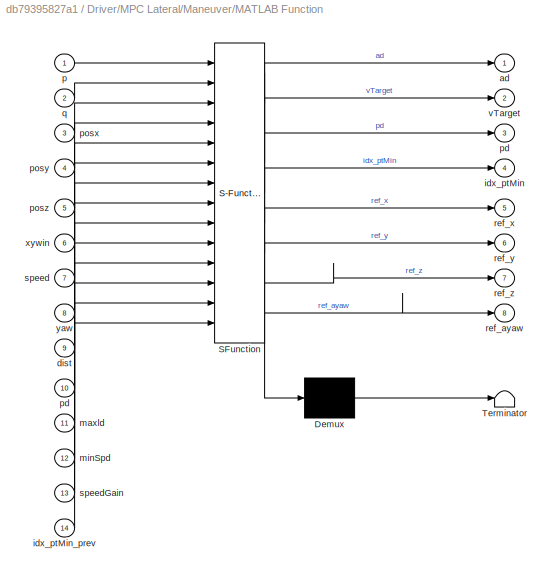
BLOCK [SubSystem] Driver/MPC Lateral/Maneuver/MATLAB Function
  ErrorFcn = Stateflow.Translate.translate
  PermitHierarchicalResolution = ExplicitOnly
  Ports = [14, 8]
  RequestExecContextInheritance = off
  SFBlockType = MATLAB Function
  SystemSampleTime = 0.1
BLOCK [Demux] Driver/MPC Lateral/Maneuver/MATLAB Function/ Demux 
  Outputs = 1
  Ports = [1, 1]
BLOCK [S-Function] Driver/MPC Lateral/Maneuver/MATLAB Function/ SFunction 
  EnableBusSupport = on
  FunctionName = sf_sfun
  PortCounts = [14 9]
  Ports = [14, 9]
  SFcnIsStateOwnerBlock = off
  SFunctionDeploymentMode = off
  Tag = Stateflow S-Function 3
BLOCK [Terminator] Driver/MPC Lateral/Maneuver/MATLAB Function/ Terminator 
BLOCK [Outport] Driver/MPC Lateral/Maneuver/MATLAB Function/ad
  VectorParamsAs1DForOutWhenUnconnected = off
BLOCK [Inport] Driver/MPC Lateral/Maneuver/MATLAB Function/dist
  Port = 9
BLOCK [Outport] Driver/MPC Lateral/Maneuver/MATLAB Function/idx_ptMin
  Port = 4
  VectorParamsAs1DForOutWhenUnconnected = off
BLOCK [Inport] Driver/MPC Lateral/Maneuver/MATLAB Function/idx_ptMin_prev
  Port = 14
BLOCK [Inport] Driver/MPC Lateral/Maneuver/MATLAB Function/maxld
  Port = 11
BLOCK [Inport] Driver/MPC Lateral/Maneuver/MATLAB Function/minSpd
  Port = 12
BLOCK [Inport] Driver/MPC Lateral/Maneuver/MATLAB Function/p
BLOCK [Outport] Driver/MPC Lateral/Maneuver/MATLAB Function/pd
  Port = 3
BLOCK [Inport] Driver/MPC Lateral/Maneuver/MATLAB Function/pd 
  Port = 10
BLOCK [Inport] Driver/MPC Lateral/Maneuver/MATLAB Function/posx
  Port = 3
BLOCK [Inport] Driver/MPC Lateral/Maneuver/MATLAB Function/posy
  Port = 4
BLOCK [Inport] Driver/MPC Lateral/Maneuver/MATLAB Function/posz
  Port = 5
BLOCK [Inport] Driver/MPC Lateral/Maneuver/MATLAB Function/q
  Port = 2
BLOCK [Outport] Driver/MPC Lateral/Maneuver/MATLAB Function/ref_ayaw
  Port = 8
BLOCK [Outport] Driver/MPC Lateral/Maneuver/MATLAB Function/ref_x
  Port = 5
BLOCK [Outport] Driver/MPC Lateral/Maneuver/MATLAB Function/ref_y
  Port = 6
BLOCK [Outport] Driver/MPC Lateral/Maneuver/MATLAB Function/ref_z
  Port = 7
BLOCK [Inport] Driver/MPC Lateral/Maneuver/MATLAB Function/speed
  Port = 7
BLOCK [Inport] Driver/MPC Lateral/Maneuver/MATLAB Function/speedGain
  Port = 13
BLOCK [Outport] Driver/MPC Lateral/Maneuver/MATLAB Function/vTarget
  Port = 2
  VectorParamsAs1DForOutWhenUnconnected = off
BLOCK [Inport] Driver/MPC Lateral/Maneuver/MATLAB Function/xywin
  Port = 6
BLOCK [Inport] Driver/MPC Lateral/Maneuver/MATLAB Function/yaw
  Port = 8
BLOCK [Constant] Driver/MPC Lateral/Maneuver/Max Lateral Distance (m)
  Value = Maneuver.xMaxLat.Value
BLOCK [Memory] Driver/MPC Lateral/Maneuver/Memory
  Commented = on
BLOCK [Constant] Driver/MPC Lateral/Maneuver/Min Target Speed (m//s)
  Value = Maneuver.vMinTarget.Value
BLOCK [Mux] Driver/MPC Lateral/Maneuver/Mux
  DisplayOption = bar
  Inputs = 3
  Ports = [3, 1]
BLOCK [Mux] Driver/MPC Lateral/Maneuver/Mux1
  DisplayOption = bar
  Inputs = 3
  Ports = [3, 1]
BLOCK [Mux] Driver/MPC Lateral/Maneuver/Mux2
  DisplayOption = bar
  Inputs = 3
  Ports = [3, 1]
BLOCK [Inport] Driver/MPC Lateral/Maneuver/Override
  Port = 2
BLOCK [Reference] Driver/MPC Lateral/Maneuver/PoseTargetVisual  REF=Maneuver_Get_Pose/Maneuver/PoseTargetVisual
  Ports = [5]
  SourceBlock = Maneuver_Get_Pose/Maneuver/PoseTargetVisual
  SourceType = SubSystem
BLOCK [Outport] Driver/MPC Lateral/Maneuver/Ref
  VectorParamsAs1DForOutWhenUnconnected = off
BLOCK [Switch] Driver/MPC Lateral/Maneuver/Switch
  Commented = on
  Criteria = u2 > Threshold
  InputSameDT = off
  SaturateOnIntegerOverflow = off
BLOCK [Constant] Driver/MPC Lateral/Maneuver/Target Speed Gain
  Value = Maneuver.vGain.Value
BLOCK [Terminator] Driver/MPC Lateral/Maneuver/Terminator3
BLOCK [ToWorkspace] Driver/MPC Lateral/Maneuver/To Workspace
  FixptAsFi = on
  MaxDataPoints = inf
  Ports = [1]
  SampleTime = 0.1
  SaveFormat = Structure With Time
  VariableName = global_state
BLOCK [TransportDelay] Driver/MPC Lateral/Maneuver/Transport Delay
  DelayTime = 0.1
  InitialOutput = -1
  Ports = [1, 1]
BLOCK [Inport] Driver/MPC Lateral/Maneuver/VehBus
BLOCK [Constant] Driver/MPC Lateral/Maneuver/Window of Points to Check
  Value = 10
BLOCK [Lookup_n-D] Driver/MPC Lateral/Maneuver/preview distance
  BreakpointsForDimension1 = Maneuver.xPreview.v.Value
  InputPortMap = u0
  InternalRulePriority = Speed
  NumberOfTableDimensions = 1
  Ports = [1, 1]
  RndMeth = Simplest
  Table = Maneuver.xPreview.x.Value
BLOCK [SubSystem] Driver/MPC Lateral/Maneuver/vx override
  Ports = [1, 1]
  RequestExecContextInheritance = off
BLOCK [BusSelector] Driver/MPC Lateral/Maneuver/vx override/Bus Selector2
  OutputSignals = offset,gain
  Ports = [1, 2]
BLOCK [Constant] Driver/MPC Lateral/Maneuver/vx override/Constant5
  Value = Maneuver.Trajectory.vx.Value
BLOCK [Product] Driver/MPC Lateral/Maneuver/vx override/Product
  Ports = [2, 1]
BLOCK [Sum] Driver/MPC Lateral/Maneuver/vx override/Sum
  Inputs = ++|
  Ports = [2, 1]
BLOCK [Inport] Driver/MPC Lateral/Maneuver/vx override/vx
BLOCK [Outport] Driver/MPC Lateral/Maneuver/vx override/vx_ovr
  VectorParamsAs1DForOutWhenUnconnected = off
BLOCK [Constant] Driver/MPC Lateral/Maneuver/window only
  Commented = on
BLOCK [SubSystem] Driver/MPC Lateral/Maneuver/x override
  Ports = [1, 1]
  RequestExecContextInheritance = off
BLOCK [BusSelector] Driver/MPC Lateral/Maneuver/x override/Bus Selector2
  OutputSignals = offset,gain
  Ports = [1, 2]
BLOCK [Constant] Driver/MPC Lateral/Maneuver/x override/Constant3
  Value = Maneuver.Trajectory.x.Value
BLOCK [Product] Driver/MPC Lateral/Maneuver/x override/Product
  Ports = [2, 1]
BLOCK [Sum] Driver/MPC Lateral/Maneuver/x override/Sum
  Inputs = ++|
  Ports = [2, 1]
BLOCK [Inport] Driver/MPC Lateral/Maneuver/x override/x
BLOCK [Outport] Driver/MPC Lateral/Maneuver/x override/x_ovr
  VectorParamsAs1DForOutWhenUnconnected = off
BLOCK [SubSystem] Driver/MPC Lateral/Maneuver/y override
  Ports = [1, 1]
  RequestExecContextInheritance = off
BLOCK [BusSelector] Driver/MPC Lateral/Maneuver/y override/Bus Selector2
  OutputSignals = offset,gain
  Ports = [1, 2]
BLOCK [Constant] Driver/MPC Lateral/Maneuver/y override/Constant4
  Value = Maneuver.Trajectory.y.Value
BLOCK [Product] Driver/MPC Lateral/Maneuver/y override/Product
  Ports = [2, 1]
BLOCK [Sum] Driver/MPC Lateral/Maneuver/y override/Sum
  Inputs = ++|
  Ports = [2, 1]
BLOCK [Inport] Driver/MPC Lateral/Maneuver/y override/y
BLOCK [Outport] Driver/MPC Lateral/Maneuver/y override/y_ovr
  VectorParamsAs1DForOutWhenUnconnected = off
BLOCK [SubSystem] Driver/MPC Lateral/Maneuver/z override
  Ports = [1, 1]
  RequestExecContextInheritance = off
BLOCK [BusSelector] Driver/MPC Lateral/Maneuver/z override/Bus Selector2
  OutputSignals = offset,gain
  Ports = [1, 2]
BLOCK [Constant] Driver/MPC Lateral/Maneuver/z override/Constant1
  Value = Maneuver.Trajectory.z.Value
BLOCK [Product] Driver/MPC Lateral/Maneuver/z override/Product
  Ports = [2, 1]
BLOCK [Sum] Driver/MPC Lateral/Maneuver/z override/Sum
  Inputs = ++|
  Ports = [2, 1]
BLOCK [Inport] Driver/MPC Lateral/Maneuver/z override/z
BLOCK [Outport] Driver/MPC Lateral/Maneuver/z override/z_ovr
  VectorParamsAs1DForOutWhenUnconnected = off
BLOCK [Inport] Driver/MPC Lateral/Obs
  Port = 2
BLOCK [Reference] Driver/MPC Lateral/Override  REF=sm_car_lib/Environment/Override  (lib defined in slx_05426f0848b6, slx_5dc2867fb1c9)
  AttributesFormatString = %<LabelModeActiveChoice>
  Ports = [2, 1]
  SourceBlock = sm_car_lib/Environment/Override
BLOCK [TransferFcn] Driver/MPC Lateral/Transfer Fcn
  Denominator = [0.1 1]
BLOCK [Inport] Driver/MPC Lateral/VehBus
BLOCK [Inport] Driver/Obs
  Port = 2
BLOCK [SubSystem] Driver/Open Loop
  Ports = [2, 1]
  RequestExecContextInheritance = off
  VariantControl = Open_Loop
BLOCK [Outport] Driver/Open Loop/DrvBus
  VectorParamsAs1DForOutWhenUnconnected = off
BLOCK [Inport] Driver/Open Loop/Obs
  Port = 2
BLOCK [Reference] Driver/Open Loop/Open Loop  REF=Driver_Open_Loop/Open Loop
  Ports = [0, 1]
  SourceBlock = Driver_Open_Loop/Open Loop
BLOCK [Terminator] Driver/Open Loop/Terminator
BLOCK [Terminator] Driver/Open Loop/Terminator1
BLOCK [Inport] Driver/Open Loop/VehBus
BLOCK [Inport] Driver/VehBus 
BLOCK [Outport] Out1
  VectorParamsAs1DForOutWhenUnconnected = off
BLOCK [SubSystem] Road
  NameLocation = top
  Ports = [1, 1]
  RequestExecContextInheritance = off
BLOCK [BusCreator] Road/Bus Creator
  DisplayOption = bar
  InheritFromInputs = on
  Inputs = 6
  Ports = [6, 1]
BLOCK [BusSelector] Road/Bus Selector1
  OutputSignals = Chassis
  Ports = [1, 1]
BLOCK [Reference] Road/Ground  REF=sm_car_lib/Tires/Ground  (lib defined in slx_05426f0848b6, slx_5dc2867fb1c9)
  Ports = [6, 4]
  SourceBlock = sm_car_lib/Tires/Ground
  SourceType = SubSystem
BLOCK [SubSystem] Road/Input fWindCar
  Ports = [0, 1]
  RequestExecContextInheritance = off
BLOCK [BusCreator] Road/Input fWindCar/Bus Creator1
  DisplayOption = bar
  InheritFromInputs = on
  Inputs = 3
  Ports = [3, 1]
BLOCK [Demux] Road/Input fWindCar/Demux
  Outputs = 3
  Ports = [1, 3]
BLOCK [Step] Road/Input fWindCar/Step
  After = fWind
  SampleTime = 0
  Time = dWind
BLOCK [Step] Road/Input fWindCar/Step1
  After = fWind
  SampleTime = 0
  Time = dWind+tWind
BLOCK [Sum] Road/Input fWindCar/Sum
  Inputs = |+-
  Ports = [2, 1]
BLOCK [Outport] Road/Input fWindCar/fWind
  VectorParamsAs1DForOutWhenUnconnected = off
BLOCK [SubSystem] Road/Input fWindTrailer
  Ports = [0, 1]
  RequestExecContextInheritance = off
BLOCK [BusCreator] Road/Input fWindTrailer/Bus Creator1
  DisplayOption = bar
  InheritFromInputs = on
  Inputs = 3
  Ports = [3, 1]
BLOCK [Demux] Road/Input fWindTrailer/Demux
  Outputs = 3
  Ports = [1, 3]
BLOCK [Scope] Road/Input fWindTrailer/Scope
  Floating = off
  NumInputPorts = 1
  Ports = [1]
  ScopeSpecificationString = Simulink.scopes.TimeScopeBlockCfg('CurrentConfiguration', extmgr.ConfigurationSet(extmgr.Configuration('Core','General UI',true),extmgr.Configuration('Core','Source UI',true),extmgr.Configuration('Sources','WiredSimulink',true,'DataLoggingVariableName','ScopeData1'),extmgr.Configuration('Visuals','Time Domain',true,'SerializedDisplays',{struct('MinYLimReal','-1.00000','MaxYLimReal','1.00000','YLab...<+1438ch>
BLOCK [Step] Road/Input fWindTrailer/Step
  After = fWind
  SampleTime = 0
  Time = dWind
BLOCK [Step] Road/Input fWindTrailer/Step1
  After = fWind
  SampleTime = 0
  Time = dWind+tWind
BLOCK [Sum] Road/Input fWindTrailer/Sum
  Inputs = |+-
  Ports = [2, 1]
BLOCK [Outport] Road/Input fWindTrailer/fWind
  VectorParamsAs1DForOutWhenUnconnected = off
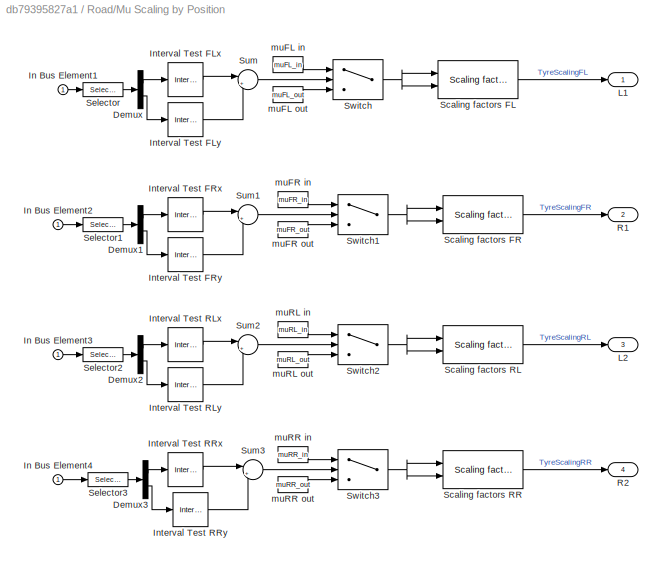
BLOCK [SubSystem] Road/Mu Scaling by Position
  Ports = [1, 4]
  RequestExecContextInheritance = off
BLOCK [Demux] Road/Mu Scaling by Position/Demux
  Outputs = 2
  Ports = [1, 2]
BLOCK [Demux] Road/Mu Scaling by Position/Demux1
  Outputs = 2
  Ports = [1, 2]
BLOCK [Demux] Road/Mu Scaling by Position/Demux2
  Outputs = 2
  Ports = [1, 2]
BLOCK [Demux] Road/Mu Scaling by Position/Demux3
  Outputs = 2
  Ports = [1, 2]
BLOCK [Inport] Road/Mu Scaling by Position/In Bus Element1
BLOCK [Inport] Road/Mu Scaling by Position/In Bus Element2
BLOCK [Inport] Road/Mu Scaling by Position/In Bus Element3
BLOCK [Inport] Road/Mu Scaling by Position/In Bus Element4
BLOCK [Reference] Road/Mu Scaling by Position/Interval Test FLx  REF=simulink/Logic and Bit
Operations/Interval Test
  NameLocation = top
  Ports = [1, 1]
  SourceBlock = simulink/Logic and Bit\nOperations/Interval Test
  SourceProductBaseCode = SL
  SourceType = Interval Test
BLOCK [Reference] Road/Mu Scaling by Position/Interval Test FLy  REF=simulink/Logic and Bit
Operations/Interval Test
  Ports = [1, 1]
  SourceBlock = simulink/Logic and Bit\nOperations/Interval Test
  SourceProductBaseCode = SL
  SourceType = Interval Test
BLOCK [Reference] Road/Mu Scaling by Position/Interval Test FRx  REF=simulink/Logic and Bit
Operations/Interval Test
  NameLocation = top
  Ports = [1, 1]
  SourceBlock = simulink/Logic and Bit\nOperations/Interval Test
  SourceProductBaseCode = SL
  SourceType = Interval Test
BLOCK [Reference] Road/Mu Scaling by Position/Interval Test FRy  REF=simulink/Logic and Bit
Operations/Interval Test
  Ports = [1, 1]
  SourceBlock = simulink/Logic and Bit\nOperations/Interval Test
  SourceProductBaseCode = SL
  SourceType = Interval Test
BLOCK [Reference] Road/Mu Scaling by Position/Interval Test RLx  REF=simulink/Logic and Bit
Operations/Interval Test
  NameLocation = top
  Ports = [1, 1]
  SourceBlock = simulink/Logic and Bit\nOperations/Interval Test
  SourceProductBaseCode = SL
  SourceType = Interval Test
BLOCK [Reference] Road/Mu Scaling by Position/Interval Test RLy  REF=simulink/Logic and Bit
Operations/Interval Test
  Ports = [1, 1]
  SourceBlock = simulink/Logic and Bit\nOperations/Interval Test
  SourceProductBaseCode = SL
  SourceType = Interval Test
BLOCK [Reference] Road/Mu Scaling by Position/Interval Test RRx  REF=simulink/Logic and Bit
Operations/Interval Test
  NameLocation = top
  Ports = [1, 1]
  SourceBlock = simulink/Logic and Bit\nOperations/Interval Test
  SourceProductBaseCode = SL
  SourceType = Interval Test
BLOCK [Reference] Road/Mu Scaling by Position/Interval Test RRy  REF=simulink/Logic and Bit
Operations/Interval Test
  Ports = [1, 1]
  SourceBlock = simulink/Logic and Bit\nOperations/Interval Test
  SourceProductBaseCode = SL
  SourceType = Interval Test
BLOCK [Outport] Road/Mu Scaling by Position/L1
  VectorParamsAs1DForOutWhenUnconnected = off
BLOCK [Outport] Road/Mu Scaling by Position/L2
  Port = 3
  VectorParamsAs1DForOutWhenUnconnected = off
BLOCK [Outport] Road/Mu Scaling by Position/R1
  Port = 2
  VectorParamsAs1DForOutWhenUnconnected = off
BLOCK [Outport] Road/Mu Scaling by Position/R2
  Port = 4
  VectorParamsAs1DForOutWhenUnconnected = off
BLOCK [Reference] Road/Mu Scaling by Position/Scaling factors FL  REF=sm_car_lib/Tires/Scaling factors 4  (lib defined in slx_05426f0848b6, slx_5dc2867fb1c9)
  Ports = [2, 1]
  SourceBlock = sm_car_lib/Tires/Scaling factors 4
BLOCK [Reference] Road/Mu Scaling by Position/Scaling factors FR  REF=sm_car_lib/Tires/Scaling factors 4  (lib defined in slx_05426f0848b6, slx_5dc2867fb1c9)
  Ports = [2, 1]
  SourceBlock = sm_car_lib/Tires/Scaling factors 4
BLOCK [Reference] Road/Mu Scaling by Position/Scaling factors RL  REF=sm_car_lib/Tires/Scaling factors 4  (lib defined in slx_05426f0848b6, slx_5dc2867fb1c9)
  Ports = [2, 1]
  SourceBlock = sm_car_lib/Tires/Scaling factors 4
BLOCK [Reference] Road/Mu Scaling by Position/Scaling factors RR  REF=sm_car_lib/Tires/Scaling factors 4  (lib defined in slx_05426f0848b6, slx_5dc2867fb1c9)
  Ports = [2, 1]
  SourceBlock = sm_car_lib/Tires/Scaling factors 4
BLOCK [Selector] Road/Mu Scaling by Position/Selector
  IndexOptions = Index vector (dialog)
  Indices = [1 2]
  InputPortWidth = 3
  OutputSizes = 1
  Ports = [1, 1]
BLOCK [Selector] Road/Mu Scaling by Position/Selector1
  IndexOptions = Index vector (dialog)
  Indices = [1 2]
  InputPortWidth = 3
  OutputSizes = 1
  Ports = [1, 1]
BLOCK [Selector] Road/Mu Scaling by Position/Selector2
  IndexOptions = Index vector (dialog)
  Indices = [1 2]
  InputPortWidth = 3
  OutputSizes = 1
  Ports = [1, 1]
BLOCK [Selector] Road/Mu Scaling by Position/Selector3
  IndexOptions = Index vector (dialog)
  Indices = [1 2]
  InputPortWidth = 3
  OutputSizes = 1
  Ports = [1, 1]
BLOCK [Sum] Road/Mu Scaling by Position/Sum
  Inputs = |++
  Ports = [2, 1]
BLOCK [Sum] Road/Mu Scaling by Position/Sum1
  Inputs = |++
  Ports = [2, 1]
BLOCK [Sum] Road/Mu Scaling by Position/Sum2
  Inputs = |++
  Ports = [2, 1]
BLOCK [Sum] Road/Mu Scaling by Position/Sum3
  Inputs = |++
  Ports = [2, 1]
BLOCK [Switch] Road/Mu Scaling by Position/Switch
  Criteria = u2 > Threshold
  InputSameDT = off
  SaturateOnIntegerOverflow = off
  Threshold = 1
  ZeroCross = off
BLOCK [Switch] Road/Mu Scaling by Position/Switch1
  Criteria = u2 > Threshold
  InputSameDT = off
  SaturateOnIntegerOverflow = off
  Threshold = 1
BLOCK [Switch] Road/Mu Scaling by Position/Switch2
  Criteria = u2 > Threshold
  InputSameDT = off
  SaturateOnIntegerOverflow = off
  Threshold = 1
BLOCK [Switch] Road/Mu Scaling by Position/Switch3
  Criteria = u2 > Threshold
  InputSameDT = off
  SaturateOnIntegerOverflow = off
  Threshold = 1
BLOCK [Constant] Road/Mu Scaling by Position/muFL in
  NameLocation = top
  Value = muFL_in
BLOCK [Constant] Road/Mu Scaling by Position/muFL out
  Value = muFL_out
BLOCK [Constant] Road/Mu Scaling by Position/muFR in
  NameLocation = top
  Value = muFR_in
BLOCK [Constant] Road/Mu Scaling by Position/muFR out
  Value = muFR_out
BLOCK [Constant] Road/Mu Scaling by Position/muRL in
  NameLocation = top
  Value = muRL_in
BLOCK [Constant] Road/Mu Scaling by Position/muRL out
  Value = muRL_out
BLOCK [Constant] Road/Mu Scaling by Position/muRR in
  NameLocation = top
  Value = muRR_in
BLOCK [Constant] Road/Mu Scaling by Position/muRR out
  Value = muRR_out
BLOCK [Outport] Road/RdBus
  VectorParamsAs1DForOutWhenUnconnected = off
BLOCK [Reference] Road/Road Surface Height  REF=sm_car_lib/Environment/Road Surface Profile  (lib defined in slx_05426f0848b6, slx_5dc2867fb1c9)
  AttributesFormatString = %<LabelModeActiveChoice>
  Ports = [1, 2]
  SourceBlock = sm_car_lib/Environment/Road Surface Profile
BLOCK [Inport] Road/VehBus
BLOCK [SubSystem] Scopes
  Ports = [1, 1]
  RequestExecContextInheritance = off
BLOCK [Inport] Scopes/Bus
BLOCK [BusSelector] Scopes/Bus Selector
  OutputSignals = Chassis.WhlL1.aSlip,Chassis.WhlR1.aSlip,Chassis.WhlL2.aSlip,Chassis.WhlR2.aSlip
  Ports = [1, 4]
BLOCK [BusSelector] Scopes/Bus Selector1
  OutputSignals = Chassis.Spring.L1.xSpring,Chassis.Spring.R1.xSpring,Chassis.Spring.L2.xSpring,Chassis.Spring.R2.xSpring
  Ports = [1, 4]
BLOCK [BusSelector] Scopes/Bus Selector2
  OutputSignals = Chassis.WhlL1.Fx,Chassis.WhlR1.Fx,Chassis.WhlL2.Fx,Chassis.WhlR2.Fx
  Ports = [1, 4]
BLOCK [BusSelector] Scopes/Bus Selector3
  OutputSignals = Chassis.WhlL1.qxyz
  Ports = [1, 1]
BLOCK [BusSelector] Scopes/Bus Selector4
  OutputSignals = Driveline.anDriveshaftL1.q,Driveline.anDriveshaftR1.q,Driveline.anDriveshaftL1.w,Driveline.anDriveshaftR1.w
  Ports = [1, 4]
BLOCK [BusSelector] Scopes/Bus Selector5
  NameLocation = top
  OutputSignals = Chassis.Body.CG.aRoll,Chassis.Body.CG.nRoll,Chassis.Body.CG.aPitch,Chassis.Body.CG.nPitch
  Ports = [1, 4]
BLOCK [BusSelector] Scopes/Bus Selector6
  OutputSignals = Chassis.WhlL1.n,Chassis.WhlR1.n,Chassis.WhlR2.n,Chassis.WhlL2.n
  Ports = [1, 4]
BLOCK [BusSelector] Scopes/Bus Selector7
  NameLocation = top
  OutputSignals = Chassis.Body.CG.z,World.z
  Ports = [1, 2]
BLOCK [Mux] Scopes/Mux
  DisplayOption = bar
  Inputs = 2
  Ports = [2, 1]
BLOCK [Scope] Scopes/Scope
  Floating = off
  NumInputPorts = 4
  Ports = [4]
  ScopeSpecificationString = Simulink.scopes.TimeScopeBlockCfg('CurrentConfiguration', extmgr.ConfigurationSet(extmgr.Configuration('Core','General UI',true),extmgr.Configuration('Core','Source UI',true),extmgr.Configuration('Sources','WiredSimulink',true,'DataLoggingVariableName','ScopeData1'),extmgr.Configuration('Visuals','Time Domain',true,'SerializedDisplays',{struct('MinYLimReal','-1.96294','MaxYLimReal','1.96118','YLab...<+1434ch>
BLOCK [Scope] Scopes/Scope1
  Floating = off
  NumInputPorts = 4
  Ports = [4]
  ScopeSpecificationString = Simulink.scopes.TimeScopeBlockCfg('CurrentConfiguration', extmgr.ConfigurationSet(extmgr.Configuration('Core','General UI',true),extmgr.Configuration('Core','Source UI',true),extmgr.Configuration('Sources','WiredSimulink',true,'DataLoggingVariableName','ScopeData1'),extmgr.Configuration('Visuals','Time Domain',true,'SerializedDisplays',{struct('MinYLimReal','0.59933','MaxYLimReal','0.77014','YLabe...<+1432ch>
BLOCK [Scope] Scopes/Scope2
  Floating = off
  NumInputPorts = 4
  Ports = [4]
  ScopeSpecificationString = Simulink.scopes.TimeScopeBlockCfg('CurrentConfiguration', extmgr.ConfigurationSet(extmgr.Configuration('Core','General UI',true),extmgr.Configuration('Core','Source UI',true),extmgr.Configuration('Sources','WiredSimulink',true,'DataLoggingVariableName','ScopeData1'),extmgr.Configuration('Visuals','Time Domain',true,'SerializedDisplays',{struct('MinYLimReal','-8724.32507','MaxYLimReal','8948.55481'...<+1462ch>
BLOCK [Scope] Scopes/Scope3
  Floating = off
  NumInputPorts = 1
  Ports = [1]
  ScopeSpecificationString = Simulink.scopes.TimeScopeBlockCfg('CurrentConfiguration', extmgr.ConfigurationSet(extmgr.Configuration('Core','General UI',true),extmgr.Configuration('Core','Source UI',true),extmgr.Configuration('Sources','WiredSimulink',true,'DataLoggingVariableName','ScopeData1'),extmgr.Configuration('Visuals','Time Domain',true,'SerializedDisplays',{struct('MinYLimReal','-86.18516','MaxYLimReal','775.52925','Y...<+1469ch>
BLOCK [Scope] Scopes/Scope4
  Floating = off
  NumInputPorts = 2
  Ports = [2]
  ScopeSpecificationString = Simulink.scopes.TimeScopeBlockCfg('CurrentConfiguration', extmgr.ConfigurationSet(extmgr.Configuration('Core','General UI',true),extmgr.Configuration('Core','Source UI',true),extmgr.Configuration('Sources','WiredSimulink',true,'DataLoggingVariableName','ScopeData1'),extmgr.Configuration('Visuals','Time Domain',true,'SerializedDisplays',{struct('MinYLimReal','5.81523','MaxYLimReal','6.20079','YLabe...<+1386ch>
BLOCK [Scope] Scopes/Scope5
  Floating = off
  NumInputPorts = 4
  Ports = [4]
  ScopeSpecificationString = Simulink.scopes.TimeScopeBlockCfg('CurrentConfiguration', extmgr.ConfigurationSet(extmgr.Configuration('Core','General UI',true),extmgr.Configuration('Core','Source UI',true),extmgr.Configuration('Sources','WiredSimulink',true,'DataLoggingVariableName','ScopeData1'),extmgr.Configuration('Visuals','Time Domain',true,'SerializedDisplays',{struct('MinYLimReal','-1.84919','MaxYLimReal','0.7981','YLabe...<+1432ch>
BLOCK [Scope] Scopes/Scope6
  Floating = off
  NumInputPorts = 4
  Ports = [4]
  ScopeSpecificationString = Simulink.scopes.TimeScopeBlockCfg('CurrentConfiguration', extmgr.ConfigurationSet(extmgr.Configuration('Core','General UI',true),extmgr.Configuration('Core','Source UI',true),extmgr.Configuration('Sources','WiredSimulink',true,'DataLoggingVariableName','ScopeData1'),extmgr.Configuration('Visuals','Time Domain',true,'SerializedDisplays',{struct('MinYLimReal','-0.000061','MaxYLimReal','0.000007','YL...<+3471ch>
BLOCK [Scope] Scopes/Scope7
  Floating = off
  NumInputPorts = 2
  Ports = [2]
  ScopeSpecificationString = Simulink.scopes.TimeScopeBlockCfg('CurrentConfiguration', extmgr.ConfigurationSet(extmgr.Configuration('Core','General UI',true),extmgr.Configuration('Core','Source UI',true),extmgr.Configuration('Sources','WiredSimulink',true,'DataLoggingVariableName','ScopeData2'),extmgr.Configuration('Visuals','Time Domain',true,'SerializedDisplays',{struct('MinYLimReal','-0.0000005','MaxYLimReal','0.0000049','...<+1475ch>
BLOCK [Scope] Scopes/Scope8
  Floating = off
  NumInputPorts = 4
  Ports = [4]
  ScopeSpecificationString = Simulink.scopes.TimeScopeBlockCfg('CurrentConfiguration', extmgr.ConfigurationSet(extmgr.Configuration('Core','General UI',true),extmgr.Configuration('Core','Source UI',true),extmgr.Configuration('Sources','WiredSimulink',true,'DataLoggingVariableName','ScopeData2'),extmgr.Configuration('Visuals','Time Domain',true,'SerializedDisplays',{struct('MinYLimReal','-3.30213','MaxYLimReal','31.49608','YLa...<+1603ch>
BLOCK [Scope] Scopes/Scope9
  Floating = off
  NumInputPorts = 2
  Ports = [2]
  ScopeSpecificationString = Simulink.scopes.TimeScopeBlockCfg('CurrentConfiguration', extmgr.ConfigurationSet(extmgr.Configuration('Core','General UI',true),extmgr.Configuration('Core','Source UI',true),extmgr.Configuration('Sources','WiredSimulink',true,'DataLoggingVariableName','ScopeData1'),extmgr.Configuration('Visuals','Time Domain',true,'SerializedDisplays',{struct('MinYLimReal','-1.17425','MaxYLimReal','10.16971','YLa...<+1417ch>
BLOCK [SubSystem] Scopes/Subsystem
  Ports = [1, 3]
  RequestExecContextInheritance = off
BLOCK [BusSelector] Scopes/Subsystem/Bus Selector4
  OutputSignals = Chassis.Body.CG.vx,Chassis.Body.CG.vy,World.vx,World.vy,World.x,World.y
  Ports = [1, 6]
BLOCK [Inport] Scopes/Subsystem/In1
BLOCK [Mux] Scopes/Subsystem/Mux
  DisplayOption = bar
  Inputs = 2
  Ports = [2, 1]
BLOCK [Mux] Scopes/Subsystem/Mux1
  DisplayOption = bar
  Inputs = 2
  Ports = [2, 1]
BLOCK [Mux] Scopes/Subsystem/Mux2
  DisplayOption = bar
  Inputs = 2
  Ports = [2, 1]
BLOCK [Fcn] Scopes/Subsystem/Vel in xy plane
  Expr = sqrt(u(1)^2+u(2)^2)
BLOCK [Fcn] Scopes/Subsystem/Vel in xy plane1
  Expr = sqrt(u(1)^2+u(2)^2)
BLOCK [Fcn] Scopes/Subsystem/Vel in xy plane2
  Expr = sqrt(u(1)^2+u(2)^2)
BLOCK [Outport] Scopes/Subsystem/vBody
  VectorParamsAs1DForOutWhenUnconnected = off
BLOCK [Outport] Scopes/Subsystem/vWorld
  Port = 2
  VectorParamsAs1DForOutWhenUnconnected = off
BLOCK [Outport] Scopes/Subsystem/xWorld
  Port = 3
  VectorParamsAs1DForOutWhenUnconnected = off
BLOCK [TransferFcn] Scopes/Transfer Fcn
  Denominator = [0.01 1]
  NameLocation = top
  Numerator = [1 0]
BLOCK [Outport] Scopes/xvCar
  VectorParamsAs1DForOutWhenUnconnected = off
BLOCK [Stop] Stop Simulation
BLOCK [Terminator] Terminator
BLOCK [SubSystem] Vehicle
  Ports = [3, 2, 0, 0, 0, 2]
  RequestExecContextInheritance = off
BLOCK [PMIOPort] Vehicle/C
  Side = Left
BLOCK [Inport] Vehicle/CtrlBus
  Port = 3
BLOCK [InportShadow] Vehicle/CtrlBus1
  Port = 3
BLOCK [Inport] Vehicle/DrvBus
  Port = 2
BLOCK [InportShadow] Vehicle/DrvBus1
  Port = 2
BLOCK [Inport] Vehicle/RdBus
BLOCK [InportShadow] Vehicle/RdBus1
  NameLocation = top
BLOCK [Reference] Vehicle/Trailer  REF=Vehicle_Axle1/Trailer
  AttributesFormatString = %<LabelModeActiveChoice>
  Ports = [3, 1, 0, 0, 0, 2, 1]
  SourceBlock = Vehicle_Axle1/Trailer
  SourceType = Variants for Trailer
BLOCK [Outport] Vehicle/TrlBus
  VectorParamsAs1DForOutWhenUnconnected = off
BLOCK [Outport] Vehicle/VehBus
  Port = 2
  VectorParamsAs1DForOutWhenUnconnected = off
BLOCK [SubSystem] Vehicle/Vehicle
  AncestorBlock = Vehicle_Axle2/Vehicle
  Ports = [3, 1, 0, 0, 0, 3, 1]
  RequestExecContextInheritance = off
  Tag = PublishSubsystem
  VariantControl = NS_Con
BLOCK [SubSystem] Vehicle/Vehicle Constraint
  AttributesFormatString = %<LabelModeActiveChoice>
  LabelModeActiveChoice = NoConstraint
  Ports = [0, 0, 0, 0, 0, 1, 1]
  RequestExecContextInheritance = off
  Variant = on
  VariantControl = Choice
  VariantControlMode = label
BLOCK [PMIOPort] Vehicle/Vehicle Constraint/B
  Port = 2
  Side = Left
BLOCK [PMIOPort] Vehicle/Vehicle Constraint/F
  Side = Right
BLOCK [SubSystem] Vehicle/Vehicle Constraint/No Constraint
  Ports = [0, 0, 0, 0, 0, 1, 1]
  RequestExecContextInheritance = off
  VariantControl = NoConstraint
BLOCK [PMIOPort] Vehicle/Vehicle Constraint/No Constraint/B
  Port = 2
  Side = Left
BLOCK [PMIOPort] Vehicle/Vehicle Constraint/No Constraint/F
  Side = Right
BLOCK [SubSystem] Vehicle/Vehicle Constraint/No Yaw
  Ports = [0, 0, 0, 0, 0, 1, 1]
  RequestExecContextInheritance = off
  VariantControl = NoYaw
BLOCK [PMIOPort] Vehicle/Vehicle Constraint/No Yaw/B
  Port = 2
  Side = Left
BLOCK [Reference] Vehicle/Vehicle Constraint/No Yaw/Cartesian Joint  REF=sm_lib/Joints/Cartesian
Joint
  Ports = [0, 0, 0, 0, 0, 1, 1]
  SourceBlock = sm_lib/Joints/Cartesian\nJoint
  SourceProductBaseCode = MS
  SourceType = Cartesian\nJoint
BLOCK [PMIOPort] Vehicle/Vehicle Constraint/No Yaw/F
  Side = Right
BLOCK [Reference] Vehicle/Vehicle Constraint/No Yaw/Universal Joint  REF=sm_lib/Joints/Universal
Joint
  Ports = [0, 0, 0, 0, 0, 1, 1]
  SourceBlock = sm_lib/Joints/Universal\nJoint
  SourceProductBaseCode = MS
  SourceType = Universal\nJoint
BLOCK [Reference] Vehicle/Vehicle/Body to World  REF=sm_car_lib/Body/Body to World  (lib defined in slx_05426f0848b6, slx_5dc2867fb1c9)
  Ports = [0, 1, 0, 0, 0, 1, 1]
  SourceBlock = sm_car_lib/Body/Body to World
  SourceType = Body to World
BLOCK [Reference] Vehicle/Vehicle/Brakes  REF=Brakes_Axle2/Brakes Axle2
  AttributesFormatString = %<ActiveVariant>
  Ports = [2, 1, 0, 0, 0, 2, 2]
  SourceBlock = Brakes_Axle2/Brakes Axle2
  SourceType = Variants for Brake System
  Tag = PublishSubsystem
BLOCK [PMIOPort] Vehicle/Vehicle/C
  Side = Left
BLOCK [SubSystem] Vehicle/Vehicle/Chassis
  AncestorBlock = Chassis_Axle2/Chassis
  Ports = [3, 1, 0, 0, 0, 4, 6]
  RequestExecContextInheritance = off
  Tag = PublishSubsystem
  VariantControl = Chassis
BLOCK [PMIOPort] Vehicle/Vehicle/Chassis/A1
  Port = 6
  Side = Left
BLOCK [PMIOPort] Vehicle/Vehicle/Chassis/A2
  Port = 5
  Side = Right
BLOCK [Reference] Vehicle/Vehicle/Chassis/Aero  REF=Aero_Coefficients/Aero
  Ports = [1, 1, 0, 0, 0, 0, 1]
  SourceBlock = Aero_Coefficients/Aero
  SourceType = Aerodynamic Load (Drag, Lift)
BLOCK [Reference] Vehicle/Vehicle/Chassis/Body  REF=Body_Axle2/Body
  Ports = [0, 1, 0, 0, 0, 4, 2]
  SourceBlock = Body_Axle2/Body
  SourceType = Body
BLOCK [Reference] Vehicle/Vehicle/Chassis/Damper  REF=Dampers_Axle2/Dampers Axle2
  AttributesFormatString = %<ActiveVariant>
  Ports = [1, 1, 0, 0, 0, 2, 2]
  SourceBlock = Dampers_Axle2/Dampers Axle2
  SourceType = Variants for Dampers
  Tag = PublishSubsystem
BLOCK [PMIOPort] Vehicle/Vehicle/Chassis/HitchF
  Port = 2
  Side = Right
BLOCK [PMIOPort] Vehicle/Vehicle/Chassis/HitchR
  Port = 4
  Side = Left
BLOCK [Inport] Vehicle/Vehicle/Chassis/In Bus Element
  Port = 3
BLOCK [Inport] Vehicle/Vehicle/Chassis/In Bus Element1
BLOCK [Inport] Vehicle/Vehicle/Chassis/In Bus Element10
  Port = 2
BLOCK [Inport] Vehicle/Vehicle/Chassis/In Bus Element11
BLOCK [Inport] Vehicle/Vehicle/Chassis/In Bus Element2
  Port = 3
BLOCK [Inport] Vehicle/Vehicle/Chassis/In Bus Element3
  Port = 2
BLOCK [Inport] Vehicle/Vehicle/Chassis/In Bus Element4
  Port = 3
BLOCK [Inport] Vehicle/Vehicle/Chassis/In Bus Element5
  Port = 2
BLOCK [Inport] Vehicle/Vehicle/Chassis/In Bus Element7
  Port = 3
BLOCK [Inport] Vehicle/Vehicle/Chassis/In Bus Element8
  Port = 2
BLOCK [Inport] Vehicle/Vehicle/Chassis/In Bus Element9
  Port = 2
BLOCK [PMIOPort] Vehicle/Vehicle/Chassis/L1
  Port = 7
  Side = Left
BLOCK [PMIOPort] Vehicle/Vehicle/Chassis/L2
  Port = 9
  Side = Left
BLOCK [Outport] Vehicle/Vehicle/Chassis/Out Bus Element
  VectorParamsAs1DForOutWhenUnconnected = off
BLOCK [Outport] Vehicle/Vehicle/Chassis/Out Bus Element1
  VectorParamsAs1DForOutWhenUnconnected = off
BLOCK [Outport] Vehicle/Vehicle/Chassis/Out Bus Element2
  VectorParamsAs1DForOutWhenUnconnected = off
BLOCK [Outport] Vehicle/Vehicle/Chassis/Out Bus Element3
  VectorParamsAs1DForOutWhenUnconnected = off
BLOCK [Outport] Vehicle/Vehicle/Chassis/Out Bus Element4
  VectorParamsAs1DForOutWhenUnconnected = off
BLOCK [Outport] Vehicle/Vehicle/Chassis/Out Bus Element5
  VectorParamsAs1DForOutWhenUnconnected = off
BLOCK [Outport] Vehicle/Vehicle/Chassis/Out Bus Element6
  VectorParamsAs1DForOutWhenUnconnected = off
BLOCK [Outport] Vehicle/Vehicle/Chassis/Out Bus Element7
  VectorParamsAs1DForOutWhenUnconnected = off
BLOCK [Outport] Vehicle/Vehicle/Chassis/Out Bus Element8
  VectorParamsAs1DForOutWhenUnconnected = off
BLOCK [Outport] Vehicle/Vehicle/Chassis/Out Bus Element9
  VectorParamsAs1DForOutWhenUnconnected = off
BLOCK [PMIOPort] Vehicle/Vehicle/Chassis/Power
  Port = 3
  Side = Right
BLOCK [PMIOPort] Vehicle/Vehicle/Chassis/R1
  Port = 8
  Side = Right
BLOCK [PMIOPort] Vehicle/Vehicle/Chassis/R2
  Port = 10
  Side = Right
BLOCK [Reference] Vehicle/Vehicle/Chassis/Spring  REF=Springs_Axle2/Springs Axle2
  AttributesFormatString = %<ActiveVariant>
  Ports = [1, 1, 0, 0, 0, 2, 2]
  SourceBlock = Springs_Axle2/Springs Axle2
  SourceType = Variants for Springs
  Tag = PublishSubsystem
BLOCK [SubSystem] Vehicle/Vehicle/Chassis/SuspA1
  AncestorBlock = Suspension_Systems/Suspension and Steering
  AttributesFormatString = %<LabelModeActiveChoice>
  LabelModeActiveChoice = Linkage
  Ports = [2, 1, 0, 0, 0, 4, 5]
  RequestExecContextInheritance = off
  Variant = on
  VariantControl = Variant1
  VariantControlMode = label
BLOCK [PMIOPort] Vehicle/Vehicle/Chassis/SuspA1/AxleL
  Port = 4
  Side = Left
BLOCK [PMIOPort] Vehicle/Vehicle/Chassis/SuspA1/AxleR
  Port = 5
  Side = Right
BLOCK [Inport] Vehicle/Vehicle/Chassis/SuspA1/CtrlBus 
BLOCK [PMIOPort] Vehicle/Vehicle/Chassis/SuspA1/DmpL
  Port = 8
  Side = Left
BLOCK [PMIOPort] Vehicle/Vehicle/Chassis/SuspA1/DmpR
  Port = 9
  Side = Right
BLOCK [Inport] Vehicle/Vehicle/Chassis/SuspA1/DrvBus
  Port = 2
BLOCK [SubSystem] Vehicle/Vehicle/Chassis/SuspA1/Linkage
  AncestorBlock = Suspension_Linkage/Linkage
  Ports = [2, 1, 0, 0, 0, 4, 5]
  RequestExecContextInheritance = off
  VariantControl = Linkage
BLOCK [Reference] Vehicle/Vehicle/Chassis/SuspA1/Linkage Decoupled  REF=Suspension_Linkage_Decoupled/Linkage Decoupled
  Ports = [2, 1, 0, 0, 0, 4, 5]
  SourceBlock = Suspension_Linkage_Decoupled/Linkage Decoupled
BLOCK [Reference] Vehicle/Vehicle/Chassis/SuspA1/Linkage/Anti Roll Bar  REF=AntiRollBar_Systems/Anti Roll Bar
  AttributesFormatString = %<LabelModeActiveChoice>
  NameLocation = right
  Ports = [0, 1, 0, 0, 0, 3]
  SourceBlock = AntiRollBar_Systems/Anti Roll Bar
BLOCK [PMIOPort] Vehicle/Vehicle/Chassis/SuspA1/Linkage/AxleL
  Port = 4
  Side = Left
BLOCK [PMIOPort] Vehicle/Vehicle/Chassis/SuspA1/Linkage/AxleR
  Port = 5
  Side = Right
BLOCK [PMIOPort] Vehicle/Vehicle/Chassis/SuspA1/Linkage/DmpL
  Port = 8
  Side = Left
BLOCK [PMIOPort] Vehicle/Vehicle/Chassis/SuspA1/Linkage/DmpR
  Port = 9
  Side = Right
BLOCK [Inport] Vehicle/Vehicle/Chassis/SuspA1/Linkage/DrvBus
  Port = 2
BLOCK [Inport] Vehicle/Vehicle/Chassis/SuspA1/Linkage/In Bus Element
BLOCK [Reference] Vehicle/Vehicle/Chassis/SuspA1/Linkage/Linkage L  REF=Linkage_Systems/Linkage
  AttributesFormatString = %<ActiveVariant>
  Ports = [0, 0, 0, 0, 0, 8, 2]
  SourceBlock = Linkage_Systems/Linkage
BLOCK [Reference] Vehicle/Vehicle/Chassis/SuspA1/Linkage/Linkage R  REF=Linkage_Systems/Linkage
  AttributesFormatString = %<ActiveVariant>
  Ports = [0, 0, 0, 0, 0, 8, 2]
  SourceBlock = Linkage_Systems/Linkage
  Tag = PublishSubsystem
BLOCK [Outport] Vehicle/Vehicle/Chassis/SuspA1/Linkage/Out Bus Element
  VectorParamsAs1DForOutWhenUnconnected = off
BLOCK [Outport] Vehicle/Vehicle/Chassis/SuspA1/Linkage/Out Bus Element1
  NameLocation = top
  VectorParamsAs1DForOutWhenUnconnected = off
BLOCK [Outport] Vehicle/Vehicle/Chassis/SuspA1/Linkage/Out Bus Element2
  NameLocation = top
  VectorParamsAs1DForOutWhenUnconnected = off
BLOCK [Outport] Vehicle/Vehicle/Chassis/SuspA1/Linkage/Out Bus Element3
  NameLocation = top
  VectorParamsAs1DForOutWhenUnconnected = off
BLOCK [PMIOPort] Vehicle/Vehicle/Chassis/SuspA1/Linkage/Ref
  Port = 2
  Side = Right
BLOCK [SimscapeBus] Vehicle/Vehicle/Chassis/SuspA1/Linkage/Simscape Bus L
  HierarchyStrings = RaceSpin;RaceFix;Axle1D;AxleIn
  Ports = [0, 0, 0, 0, 0, 4, 1]
BLOCK [SimscapeBus] Vehicle/Vehicle/Chassis/SuspA1/Linkage/Simscape Bus L1
  HierarchyStrings = RaceSpin;RaceFix;Axle1D;AxleIn
  Ports = [0, 0, 0, 0, 0, 4, 1]
BLOCK [PMIOPort] Vehicle/Vehicle/Chassis/SuspA1/Linkage/SprL
  Port = 6
  Side = Left
BLOCK [PMIOPort] Vehicle/Vehicle/Chassis/SuspA1/Linkage/SprR
  Port = 7
  Side = Right
BLOCK [SubSystem] Vehicle/Vehicle/Chassis/SuspA1/Linkage/Steer
  AncestorBlock = Steer_Rack_System/Steer
  AttributesFormatString = %<ActiveVariant>
  LabelModeActiveChoice = RackWheel
  NameLocation = left
  Ports = [2, 1, 0, 0, 0, 0, 3]
  RequestExecContextInheritance = off
  Variant = on
  VariantControl = Steer
  VariantControlMode = label
BLOCK [Outport] Vehicle/Vehicle/Chassis/SuspA1/Linkage/Steer/ meas
  NameLocation = left
  VectorParamsAs1DForOutWhenUnconnected = off
BLOCK [PMIOPort] Vehicle/Vehicle/Chassis/SuspA1/Linkage/Steer/ ref
  NameLocation = left
  Port = 2
  Side = Right
BLOCK [PMIOPort] Vehicle/Vehicle/Chassis/SuspA1/Linkage/Steer/ rodL
  NameLocation = left
  Side = Right
BLOCK [PMIOPort] Vehicle/Vehicle/Chassis/SuspA1/Linkage/Steer/ rodR
  NameLocation = left
  Port = 3
  Side = Right
BLOCK [Inport] Vehicle/Vehicle/Chassis/SuspA1/Linkage/Steer/CtrlBus
  NameLocation = left
  Port = 2
BLOCK [Inport] Vehicle/Vehicle/Chassis/SuspA1/Linkage/Steer/DrvBus
  NameLocation = left
BLOCK [Reference] Vehicle/Vehicle/Chassis/SuspA1/Linkage/Steer/None  REF=Steer_Rack/None
  NameLocation = left
  Ports = [2, 1, 0, 0, 0, 0, 3]
  SourceBlock = Steer_Rack/None
  SourceType = SubSystem
BLOCK [Reference] Vehicle/Vehicle/Chassis/SuspA1/Linkage/Steer/Rack  REF=Steer_Rack/Rack
  NameLocation = left
  Ports = [2, 1, 0, 0, 0, 0, 3]
  SourceBlock = Steer_Rack/Rack
  SourceType = Steering System with Rack Actuation
  Tag = PublishSubsystem
BLOCK [Reference] Vehicle/Vehicle/Chassis/SuspA1/Linkage/Steer/Rack Driven Shafts  REF=Steer_Rack/Rack
Driven
Shafts
  NameLocation = left
  Ports = [2, 1, 0, 0, 0, 0, 3]
  SourceBlock = Steer_Rack/Rack\nDriven\nShafts
  SourceType = Steering System with Rack Actuation, Rotating Shafts
  Tag = PublishSubsystem
BLOCK [Reference] Vehicle/Vehicle/Chassis/SuspA1/Linkage/Steer/Rack Static Shafts  REF=Steer_Rack/Rack
Static
Shafts
  NameLocation = left
  Ports = [2, 1, 0, 0, 0, 0, 3]
  SourceBlock = Steer_Rack/Rack\nStatic\nShafts
  SourceType = Steering System with Rack Actuation, Static Shafts
  Tag = PublishSubsystem
BLOCK [SubSystem] Vehicle/Vehicle/Chassis/SuspA1/Linkage/Steer/Rack Wheel
  AncestorBlock = Steer_Rack/Rack\nWheel
  NameLocation = left
  Ports = [2, 1, 0, 0, 0, 0, 3]
  RequestExecContextInheritance = off
  Tag = PublishSubsystem
  VariantControl = RackWheel
BLOCK [Reference] Vehicle/Vehicle/Chassis/SuspA1/Linkage/Steer/Rack Wheel/Driver  REF=Human_Models/Driver
  AttributesFormatString = %<LabelModeActiveChoice>
  Ports = [1, 1, 0, 0, 0, 1, 2]
  SourceBlock = Human_Models/Driver
BLOCK [Inport] Vehicle/Vehicle/Chassis/SuspA1/Linkage/Steer/Rack Wheel/In Bus Element
  Port = 2
BLOCK [Inport] Vehicle/Vehicle/Chassis/SuspA1/Linkage/Steer/Rack Wheel/In Bus Element1
BLOCK [Outport] Vehicle/Vehicle/Chassis/SuspA1/Linkage/Steer/Rack Wheel/Out Bus Element
  VectorParamsAs1DForOutWhenUnconnected = off
BLOCK [Outport] Vehicle/Vehicle/Chassis/SuspA1/Linkage/Steer/Rack Wheel/Out Bus Element1
  VectorParamsAs1DForOutWhenUnconnected = off
BLOCK [Outport] Vehicle/Vehicle/Chassis/SuspA1/Linkage/Steer/Rack Wheel/Out Bus Element2
  VectorParamsAs1DForOutWhenUnconnected = off
BLOCK [Outport] Vehicle/Vehicle/Chassis/SuspA1/Linkage/Steer/Rack Wheel/Out Bus Element3
  VectorParamsAs1DForOutWhenUnconnected = off
BLOCK [Reference] Vehicle/Vehicle/Chassis/SuspA1/Linkage/Steer/Rack Wheel/PS-SL fRack  REF=nesl_utility/PS-Simulink
Converter
  Ports = [0, 1, 0, 0, 0, 1]
  SourceBlock = nesl_utility/PS-Simulink\nConverter
  SourceProductBaseCode = SS,PW,VE
  SourceType = PS-Simulink\nConverter
BLOCK [Reference] Vehicle/Vehicle/Chassis/SuspA1/Linkage/Steer/Rack Wheel/PS-SL xRack  REF=nesl_utility/PS-Simulink
Converter
  Ports = [0, 1, 0, 0, 0, 1]
  SourceBlock = nesl_utility/PS-Simulink\nConverter
  SourceProductBaseCode = SS,PW,VE
  SourceType = PS-Simulink\nConverter
BLOCK [Reference] Vehicle/Vehicle/Chassis/SuspA1/Linkage/Steer/Rack Wheel/PS-SL xRack1  REF=nesl_utility/PS-Simulink
Converter
  Ports = [0, 1, 0, 0, 0, 1]
  SourceBlock = nesl_utility/PS-Simulink\nConverter
  SourceProductBaseCode = SS,PW,VE
  SourceType = PS-Simulink\nConverter
BLOCK [Reference] Vehicle/Vehicle/Chassis/SuspA1/Linkage/Steer/Rack Wheel/Physical Signal  REF=nesl_utility/Simulink-PS
Converter
  AttributesFormatString = Filter Time Constant\n%<InputFilterTimeConstant> sec
  Ports = [1, 0, 0, 0, 0, 0, 1]
  SourceBlock = nesl_utility/Simulink-PS\nConverter
  SourceProductBaseCode = SS,PW,VE
  SourceType = Simulink-PS\nConverter
BLOCK [Reference] Vehicle/Vehicle/Chassis/SuspA1/Linkage/Steer/Rack Wheel/Physical Signal1  REF=nesl_utility/Simulink-PS
Converter
  AttributesFormatString = Filter Time Constant\n%<InputFilterTimeConstant> sec
  NameLocation = left
  Ports = [1, 0, 0, 0, 0, 0, 1]
  SourceBlock = nesl_utility/Simulink-PS\nConverter
  SourceProductBaseCode = SS,PW,VE
  SourceType = Simulink-PS\nConverter
BLOCK [Reference] Vehicle/Vehicle/Chassis/SuspA1/Linkage/Steer/Rack Wheel/Prismatic Rack  REF=sm_lib/Joints/Prismatic
Joint
  Ports = [0, 0, 0, 0, 0, 2, 3]
  SourceBlock = sm_lib/Joints/Prismatic\nJoint
  SourceProductBaseCode = MS
  SourceType = Prismatic\nJoint
BLOCK [SubSystem] Vehicle/Vehicle/Chassis/SuspA1/Linkage/Steer/Rack Wheel/Rack
  NameLocation = left
  Ports = [0, 0, 0, 0, 0, 2, 1]
  RequestExecContextInheritance = off
BLOCK [PMIOPort] Vehicle/Vehicle/Chassis/SuspA1/Linkage/Steer/Rack Wheel/Rack/C
  NameLocation = left
  Side = Right
BLOCK [Reference] Vehicle/Vehicle/Chassis/SuspA1/Linkage/Steer/Rack Wheel/Rack/Rack  REF=sm_lib/Body Elements/Cylindrical Solid
  NameLocation = left
  Ports = [0, 0, 0, 0, 0, 0, 1]
  SourceBlock = sm_lib/Body Elements/Cylindrical Solid
  SourceProductBaseCode = MS
  SourceType = Cylindrical Solid
BLOCK [SubSystem] Vehicle/Vehicle/Chassis/SuspA1/Linkage/Steer/Rack Wheel/Rack/Transform Suspension Mount
  NameLocation = right
  Ports = [0, 0, 0, 0, 0, 1, 1]
  RequestExecContextInheritance = off
BLOCK [PMIOPort] Vehicle/Vehicle/Chassis/SuspA1/Linkage/Steer/Rack Wheel/Rack/Transform Suspension Mount/B
  Side = Left
BLOCK [PMIOPort] Vehicle/Vehicle/Chassis/SuspA1/Linkage/Steer/Rack Wheel/Rack/Transform Suspension Mount/F
  Port = 2
  Side = Right
BLOCK [Reference] Vehicle/Vehicle/Chassis/SuspA1/Linkage/Steer/Rack Wheel/Rack/Transform Suspension Mount/Transform HP Rack  REF=sm_lib/Frames and
Transforms/Rigid
Transform
  Ports = [0, 0, 0, 0, 0, 1, 1]
  SourceBlock = sm_lib/Frames and\nTransforms/Rigid\nTransform
  SourceProductBaseCode = MS
  SourceType = Rigid\nTransform
BLOCK [Reference] Vehicle/Vehicle/Chassis/SuspA1/Linkage/Steer/Rack Wheel/Rack/Transform Suspension Mount/Transform Rack Axis  REF=sm_lib/Frames and
Transforms/Rigid
Transform
  Ports = [0, 0, 0, 0, 0, 1, 1]
  SourceBlock = sm_lib/Frames and\nTransforms/Rigid\nTransform
  SourceProductBaseCode = MS
  SourceType = Rigid\nTransform
BLOCK [PMIOPort] Vehicle/Vehicle/Chassis/SuspA1/Linkage/Steer/Rack Wheel/Rack/rodL
  Port = 2
  Side = Left
BLOCK [PMIOPort] Vehicle/Vehicle/Chassis/SuspA1/Linkage/Steer/Rack Wheel/Rack/rodR
  Port = 3
  Side = Left
BLOCK [SubSystem] Vehicle/Vehicle/Chassis/SuspA1/Linkage/Steer/Rack Wheel/Ref to Rack
  Ports = [0, 0, 0, 0, 0, 1, 1]
  RequestExecContextInheritance = off
BLOCK [PMIOPort] Vehicle/Vehicle/Chassis/SuspA1/Linkage/Steer/Rack Wheel/Ref to Rack/B
  Side = Left
BLOCK [PMIOPort] Vehicle/Vehicle/Chassis/SuspA1/Linkage/Steer/Rack Wheel/Ref to Rack/F
  Port = 2
  Side = Right
BLOCK [Reference] Vehicle/Vehicle/Chassis/SuspA1/Linkage/Steer/Rack Wheel/Ref to Rack/Transform HP Rack  REF=sm_lib/Frames and
Transforms/Rigid
Transform
  Ports = [0, 0, 0, 0, 0, 1, 1]
  SourceBlock = sm_lib/Frames and\nTransforms/Rigid\nTransform
  SourceProductBaseCode = MS
  SourceType = Rigid\nTransform
BLOCK [Reference] Vehicle/Vehicle/Chassis/SuspA1/Linkage/Steer/Rack Wheel/Ref to Rack/Transform Rack Axis  REF=sm_lib/Frames and
Transforms/Rigid
Transform
  Ports = [0, 0, 0, 0, 0, 1, 1]
  SourceBlock = sm_lib/Frames and\nTransforms/Rigid\nTransform
  SourceProductBaseCode = MS
  SourceType = Rigid\nTransform
BLOCK [Reference] Vehicle/Vehicle/Chassis/SuspA1/Linkage/Steer/Rack Wheel/Ref to Rack/Vis Rack Housing  REF=sm_lib/Body Elements/Spherical Solid
  NameLocation = left
  Ports = [0, 0, 0, 0, 0, 0, 1]
  SourceBlock = sm_lib/Body Elements/Spherical Solid
  SourceProductBaseCode = MS
  SourceType = Spherical Solid
BLOCK [SubSystem] Vehicle/Vehicle/Chassis/SuspA1/Linkage/Steer/Rack Wheel/Ref to Wheel
  NameLocation = right
  Ports = [0, 0, 0, 0, 0, 1, 1]
  RequestExecContextInheritance = off
BLOCK [PMIOPort] Vehicle/Vehicle/Chassis/SuspA1/Linkage/Steer/Rack Wheel/Ref to Wheel/B
  NameLocation = right
  Port = 2
  Side = Left
BLOCK [PMIOPort] Vehicle/Vehicle/Chassis/SuspA1/Linkage/Steer/Rack Wheel/Ref to Wheel/F
  NameLocation = left
  Side = Right
BLOCK [Reference] Vehicle/Vehicle/Chassis/SuspA1/Linkage/Steer/Rack Wheel/Ref to Wheel/Transform HP Wheel  REF=sm_lib/Frames and
Transforms/Rigid
Transform
  NameLocation = left
  Ports = [0, 0, 0, 0, 0, 1, 1]
  SourceBlock = sm_lib/Frames and\nTransforms/Rigid\nTransform
  SourceProductBaseCode = MS
  SourceType = Rigid\nTransform
BLOCK [Reference] Vehicle/Vehicle/Chassis/SuspA1/Linkage/Steer/Rack Wheel/Ref to Wheel/Transform Steer Axis  REF=sm_lib/Frames and
Transforms/Rigid
Transform
  NameLocation = left
  Ports = [0, 0, 0, 0, 0, 1, 1]
  SourceBlock = sm_lib/Frames and\nTransforms/Rigid\nTransform
  SourceProductBaseCode = MS
  SourceType = Rigid\nTransform
BLOCK [Reference] Vehicle/Vehicle/Chassis/SuspA1/Linkage/Steer/Rack Wheel/Revolute Wheel  REF=sm_lib/Joints/Revolute Joint
  Ports = [0, 0, 0, 0, 0, 2, 2]
  SourceBlock = sm_lib/Joints/Revolute Joint
  SourceProductBaseCode = MS
  SourceType = Revolute Joint
BLOCK [Terminator] Vehicle/Vehicle/Chassis/SuspA1/Linkage/Steer/Rack Wheel/Terminator
BLOCK [Reference] Vehicle/Vehicle/Chassis/SuspA1/Linkage/Steer/Rack Wheel/Wheel  REF=Steer_Rack/Wheel
  Ports = [0, 0, 0, 0, 0, 1, 2]
  SourceBlock = Steer_Rack/Wheel
BLOCK [Lookup_n-D] Vehicle/Vehicle/Chassis/SuspA1/Linkage/Steer/Rack Wheel/Wheel Angle to Rack Displacement
  BreakpointsForDimension1 = whl2rack_whlangle
  InputPortMap = u0
  InternalRulePriority = Speed
  NumberOfTableDimensions = 1
  Ports = [1, 1]
  RndMeth = Simplest
  Table = whl2rack_rackdisp
BLOCK [PMIOPort] Vehicle/Vehicle/Chassis/SuspA1/Linkage/Steer/Rack Wheel/ref
  Port = 2
  Side = Right
BLOCK [PMIOPort] Vehicle/Vehicle/Chassis/SuspA1/Linkage/Steer/Rack Wheel/rodL
  Side = Right
BLOCK [PMIOPort] Vehicle/Vehicle/Chassis/SuspA1/Linkage/Steer/Rack Wheel/rodR
  Port = 3
  Side = Right
BLOCK [Reference] Vehicle/Vehicle/Chassis/SuspA1/Linkage/Steer/Wheel Driven Rack  REF=Steer_Rack/Wheel
Driven
Rack
  NameLocation = left
  Ports = [2, 1, 0, 0, 0, 0, 3]
  SourceBlock = Steer_Rack/Wheel\nDriven\nRack
  SourceType = Steering System with Wheel Actuation
  Tag = PublishSubsystem
BLOCK [Reference] Vehicle/Vehicle/Chassis/SuspA1/Linkage/Steer/Wheel Driven Rack 1UJoint  REF=Steer_Rack/Wheel
Driven
Rack
1UJoint
  NameLocation = left
  Ports = [2, 1, 0, 0, 0, 0, 3]
  SourceBlock = Steer_Rack/Wheel\nDriven\nRack\n1UJoint
  SourceType = Steering System with Wheel Actuation
  Tag = PublishSubsystem
BLOCK [PMIOPort] Vehicle/Vehicle/Chassis/SuspA1/Linkage/WCL
  Side = Left
BLOCK [PMIOPort] Vehicle/Vehicle/Chassis/SuspA1/Linkage/WCR
  Port = 3
  Side = Right
BLOCK [Reference] Vehicle/Vehicle/Chassis/SuspA1/Linkage/Wheel Meas Left  REF=sm_car_lib/Suspensions/Wheel Measurements  (lib defined in slx_05426f0848b6, slx_5dc2867fb1c9)
  Ports = [0, 1, 0, 0, 0, 2]
  SourceBlock = sm_car_lib/Suspensions/Wheel Measurements
  SourceType = SubSystem
BLOCK [Reference] Vehicle/Vehicle/Chassis/SuspA1/Linkage/Wheel Meas Right  REF=sm_car_lib/Suspensions/Wheel Measurements  (lib defined in slx_05426f0848b6, slx_5dc2867fb1c9)
  Ports = [0, 1, 0, 0, 0, 2]
  SourceBlock = sm_car_lib/Suspensions/Wheel Measurements
  SourceType = SubSystem
BLOCK [SubSystem] Vehicle/Vehicle/Chassis/SuspA1/Live Axle
  Ports = [2, 1, 0, 0, 0, 4, 5]
  RequestExecContextInheritance = off
  VariantControl = LiveAxle
BLOCK [PMIOPort] Vehicle/Vehicle/Chassis/SuspA1/Live Axle/AxleL
  Port = 4
  Side = Left
BLOCK [PMIOPort] Vehicle/Vehicle/Chassis/SuspA1/Live Axle/AxleR
  Port = 5
  Side = Right
BLOCK [Inport] Vehicle/Vehicle/Chassis/SuspA1/Live Axle/CtrlBus
BLOCK [PMIOPort] Vehicle/Vehicle/Chassis/SuspA1/Live Axle/DmpL
  Port = 7
  Side = Left
BLOCK [PMIOPort] Vehicle/Vehicle/Chassis/SuspA1/Live Axle/DmpR
  Port = 9
  Side = Right
BLOCK [Inport] Vehicle/Vehicle/Chassis/SuspA1/Live Axle/DrvBus
  Port = 2
BLOCK [Reference] Vehicle/Vehicle/Chassis/SuspA1/Live Axle/LiveAxle  REF=Susp_LiveAxle/LiveAxle
  Ports = [2, 1, 0, 0, 0, 4, 5]
  SourceBlock = Susp_LiveAxle/LiveAxle
  SourceType = Live Axle with Quarter-Elliptical Leaf Spring
BLOCK [Outport] Vehicle/Vehicle/Chassis/SuspA1/Live Axle/OutBus
  VectorParamsAs1DForOutWhenUnconnected = off
BLOCK [PMIOPort] Vehicle/Vehicle/Chassis/SuspA1/Live Axle/Ref
  Side = Right
BLOCK [PMIOPort] Vehicle/Vehicle/Chassis/SuspA1/Live Axle/SprL
  Port = 6
  Side = Left
BLOCK [PMIOPort] Vehicle/Vehicle/Chassis/SuspA1/Live Axle/SprR
  Port = 8
  Side = Right
BLOCK [PMIOPort] Vehicle/Vehicle/Chassis/SuspA1/Live Axle/WCL
  Port = 2
  Side = Left
BLOCK [PMIOPort] Vehicle/Vehicle/Chassis/SuspA1/Live Axle/WCR
  Port = 3
  Side = Right
BLOCK [Outport] Vehicle/Vehicle/Chassis/SuspA1/OutBus
  VectorParamsAs1DForOutWhenUnconnected = off
BLOCK [PMIOPort] Vehicle/Vehicle/Chassis/SuspA1/Ref
  Port = 2
  Side = Right
BLOCK [Reference] Vehicle/Vehicle/Chassis/SuspA1/Simple  REF=Susp_DOF15/Simple
  Ports = [2, 1, 0, 0, 0, 4, 5]
  SourceBlock = Susp_DOF15/Simple
  SourceType = Simple Suspension with Steering
BLOCK [PMIOPort] Vehicle/Vehicle/Chassis/SuspA1/SprL
  Port = 6
  Side = Left
BLOCK [PMIOPort] Vehicle/Vehicle/Chassis/SuspA1/SprR
  Port = 7
  Side = Right
BLOCK [PMIOPort] Vehicle/Vehicle/Chassis/SuspA1/WCL
  Side = Left
BLOCK [PMIOPort] Vehicle/Vehicle/Chassis/SuspA1/WCR
  Port = 3
  Side = Right
BLOCK [Reference] Vehicle/Vehicle/Chassis/SuspA2  REF=Suspension_Systems/Suspension and Steering
  AttributesFormatString = %<LabelModeActiveChoice>
  Ports = [2, 1, 0, 0, 0, 4, 5]
  SourceBlock = Suspension_Systems/Suspension and Steering
  SourceType = Suspension and Steering
BLOCK [Reference] Vehicle/Vehicle/Chassis/Tire L1  REF=Tire_Models/Tire Models
  AttributesFormatString = %<ActiveVariant>
  Ports = [1, 1, 0, 0, 0, 1, 1]
  SourceBlock = Tire_Models/Tire Models
  SourceType = Tire
  Tag = PublishSubsystem
BLOCK [Reference] Vehicle/Vehicle/Chassis/Tire L2  REF=Tire_Models/Tire Models
  AttributesFormatString = %<ActiveVariant>
  Ports = [1, 1, 0, 0, 0, 1, 1]
  SourceBlock = Tire_Models/Tire Models
  SourceType = Tire
  Tag = PublishSubsystem
BLOCK [Reference] Vehicle/Vehicle/Chassis/Tire R1  REF=Tire_Models/Tire Models
  AttributesFormatString = %<ActiveVariant>
  Ports = [1, 1, 0, 0, 0, 1, 1]
  SourceBlock = Tire_Models/Tire Models
  SourceType = Tire
  Tag = PublishSubsystem
BLOCK [Reference] Vehicle/Vehicle/Chassis/Tire R2  REF=Tire_Models/Tire Models
  AttributesFormatString = %<ActiveVariant>
  Ports = [1, 1, 0, 0, 0, 1, 1]
  SourceBlock = Tire_Models/Tire Models
  SourceType = Tire
  Tag = PublishSubsystem
BLOCK [PMIOPort] Vehicle/Vehicle/Chassis/W
  Side = Right
BLOCK [From] Vehicle/Vehicle/From
  GotoTag = VehB
BLOCK [Goto] Vehicle/Vehicle/Goto
  GotoTag = VehB
BLOCK [PMIOPort] Vehicle/Vehicle/HitchF
  Port = 4
  Side = Right
BLOCK [PMIOPort] Vehicle/Vehicle/HitchR
  Port = 3
  Side = Left
BLOCK [Inport] Vehicle/Vehicle/In Bus Element
  Port = 2
BLOCK [Inport] Vehicle/Vehicle/In Bus Element1
  Port = 3
BLOCK [Inport] Vehicle/Vehicle/In Bus Element2
BLOCK [Inport] Vehicle/Vehicle/In Bus Element3
  Port = 2
BLOCK [Inport] Vehicle/Vehicle/In Bus Element4
  Port = 3
BLOCK [Inport] Vehicle/Vehicle/In Bus Element5
  Port = 3
BLOCK [Inport] Vehicle/Vehicle/In Bus Element6
  Port = 3
BLOCK [Outport] Vehicle/Vehicle/Out Bus Element
  VectorParamsAs1DForOutWhenUnconnected = off
BLOCK [Outport] Vehicle/Vehicle/Out Bus Element1
  VectorParamsAs1DForOutWhenUnconnected = off
BLOCK [Outport] Vehicle/Vehicle/Out Bus Element2
  VectorParamsAs1DForOutWhenUnconnected = off
BLOCK [Outport] Vehicle/Vehicle/Out Bus Element3
  VectorParamsAs1DForOutWhenUnconnected = off
BLOCK [Outport] Vehicle/Vehicle/Out Bus Elemet5
  VectorParamsAs1DForOutWhenUnconnected = off
BLOCK [SubSystem] Vehicle/Vehicle/Powertrain
  Ports = [3, 2, 0, 0, 0, 3, 4]
  RequestExecContextInheritance = off
BLOCK [Inport] Vehicle/Vehicle/Powertrain/CtrlD
BLOCK [Inport] Vehicle/Vehicle/Powertrain/CtrlP
  NameLocation = top
  Port = 2
BLOCK [Reference] Vehicle/Vehicle/Powertrain/Driveline  REF=Driveline_Axle2/Driveline Axle2
  AttributesFormatString = %<ActiveVariant>
  Ports = [1, 1, 0, 0, 0, 4, 4]
  SourceBlock = Driveline_Axle2/Driveline Axle2
  SourceType = Variants for Driveline
  Tag = PublishSubsystem
BLOCK [PMIOPort] Vehicle/Vehicle/Powertrain/FA
  Side = Left
BLOCK [PMIOPort] Vehicle/Vehicle/Powertrain/L1
  Port = 5
  Side = Left
BLOCK [PMIOPort] Vehicle/Vehicle/Powertrain/L2
  Port = 6
  Side = Left
BLOCK [Outport] Vehicle/Vehicle/Powertrain/OutD
  VectorParamsAs1DForOutWhenUnconnected = off
BLOCK [Outport] Vehicle/Vehicle/Powertrain/OutP
  Port = 2
  VectorParamsAs1DForOutWhenUnconnected = off
BLOCK [Reference] Vehicle/Vehicle/Powertrain/Power  REF=Power_Systems/Power
  AttributesFormatString = %<ActiveVariant>
  Ports = [2, 1, 0, 0, 0, 1, 1]
  SourceBlock = Power_Systems/Power
  SourceType = Variants for Power
BLOCK [PMIOPort] Vehicle/Vehicle/Powertrain/R1
  Port = 4
  Side = Right
BLOCK [PMIOPort] Vehicle/Vehicle/Powertrain/R2
  Port = 7
  Side = Right
BLOCK [PMIOPort] Vehicle/Vehicle/Powertrain/RA
  Port = 3
  Side = Right
BLOCK [PMIOPort] Vehicle/Vehicle/Powertrain/Ref
  Port = 2
  Side = Right
BLOCK [Inport] Vehicle/Vehicle/Powertrain/VehB
  Port = 3
BLOCK [PMIOPort] Vehicle/Vehicle/W
  Port = 2
  Side = Left
BLOCK [PMIOPort] Vehicle/W
  Port = 2
  Side = Left
BLOCK [Reference] Vehicle/World Frame  REF=sm_lib/Frames and
Transforms/World Frame
  NameLocation = right
  Ports = [0, 0, 0, 0, 0, 0, 1]
  SourceBlock = sm_lib/Frames and\nTransforms/World Frame
  SourceProductBaseCode = MS
  SourceType = World Frame
BLOCK [SubSystem] Visualization
  Ports = [2]
  RequestExecContextInheritance = off
BLOCK [BusCreator] Visualization/Bus Creator
  DisplayOption = bar
  InheritFromInputs = on
  Inputs = 5
  Ports = [5, 1]
BLOCK [SubSystem] Visualization/Dashboard
  Ports = [2]
  RequestExecContextInheritance = off
BLOCK [LinearGaugeBlock] Visualization/Dashboard/Accelerator Pedal
  LabelPosition = Hide
  ScaleMax = 1
BLOCK [LinearGaugeBlock] Visualization/Dashboard/Brake Pedal
  ScaleMax = 1
BLOCK [BusSelector] Visualization/Dashboard/Bus Selector
  OutputSignals = Chassis.Body.CG.vx
  Ports = [1, 1]
BLOCK [BusSelector] Visualization/Dashboard/Bus Selector2
  OutputSignals = aSteerWheel,rAccelPedal,rBrakePedal
  Ports = [1, 3]
BLOCK [Inport] Visualization/Dashboard/DrvBus
  Port = 2
BLOCK [Gain] Visualization/Dashboard/Gain
  Gain = 180/pi
BLOCK [Gain] Visualization/Dashboard/Gain1
  Gain = 3.6
BLOCK [CustomWebBlock] Visualization/Dashboard/Speed (kph)
  Configuration = {"components":[{"name":"CircularScaleComponent","settings":{"bounds":{"max":150,"min":0,"tickInterval":"auto"},"direction":"cw","flipLimits":0,"innerRadius":0.46396628518311167,"internalTickHeightScaleFactor":1,"labelColor":[250,245,200],"labelFont":{"font":"Arial","fontSize":12},"labelRadius":0.36,"labelTransparency":1,"minorTickHeightScaleFactor":0.2,"needleImage":{"size":[1890,567],"src":"data:...<+15616ch>
  LabelPosition = Hide
  ShowInitialText = on
BLOCK [SemiCircularGaugeBlock] Visualization/Dashboard/Steering Wheel Angle
  LabelPosition = Hide
  ScaleMax = 80
  ScaleMin = -80
  TickInterval = 20
BLOCK [Terminator] Visualization/Dashboard/Terminator
BLOCK [Terminator] Visualization/Dashboard/Terminator1
BLOCK [Terminator] Visualization/Dashboard/Terminator2
BLOCK [Terminator] Visualization/Dashboard/Terminator3
BLOCK [Inport] Visualization/Dashboard/VehBus
BLOCK [Reference] Visualization/Data for Unreal  REF=Vehicle_Visualization/Data for Unreal
  Ports = [2, 5]
  SourceBlock = Vehicle_Visualization/Data for Unreal
  SourceType = SubSystem
BLOCK [Inport] Visualization/DrvBus
BLOCK [Terminator] Visualization/Terminator
BLOCK [SubSystem] Visualization/Unreal
  AttributesFormatString = %<LabelModeActiveChoice>
  LabelModeActiveChoice = Off
  Ports = [5]
  RequestExecContextInheritance = off
  Variant = on
  VariantControl = Variant1
  VariantControlMode = label
BLOCK [SubSystem] Visualization/Unreal/Animation Off
  Ports = [5]
  RequestExecContextInheritance = off
  VariantControl = Off
BLOCK [Terminator] Visualization/Unreal/Animation Off/Terminator
BLOCK [Terminator] Visualization/Unreal/Animation Off/Terminator1
BLOCK [Terminator] Visualization/Unreal/Animation Off/Terminator2
BLOCK [Terminator] Visualization/Unreal/Animation Off/Terminator3
BLOCK [Terminator] Visualization/Unreal/Animation Off/Terminator4
BLOCK [Inport] Visualization/Unreal/Animation Off/aCamber
  Port = 4
BLOCK [Inport] Visualization/Unreal/Animation Off/aSteerWheel
  Port = 5
BLOCK [Inport] Visualization/Unreal/Animation Off/rpy
  Port = 2
BLOCK [Inport] Visualization/Unreal/Animation Off/ws
  Port = 3
BLOCK [Inport] Visualization/Unreal/Animation Off/xyz
BLOCK [SubSystem] Visualization/Unreal/Animation On
  Ports = [5]
  RequestExecContextInheritance = off
  VariantControl = On
BLOCK [Reference] Visualization/Unreal/Animation On/Transform Data for Uneal  REF=Vehicle_Visualization/Transform Data
for Unreal
  Ports = [5, 2]
  SourceBlock = Vehicle_Visualization/Transform Data\nfor Unreal
  SourceType = SubSystem
BLOCK [SubSystem] Visualization/Unreal/Animation On/Unreal Animation
  Ports = [2]
  RequestExecContextInheritance = off
BLOCK [RateTransition] Visualization/Unreal/Animation On/Unreal Animation/Rate Transition1
  Deterministic = off
  OutPortSampleTime = 0.03
BLOCK [RateTransition] Visualization/Unreal/Animation On/Unreal Animation/Rate Transition2
  Deterministic = off
  OutPortSampleTime = 0.03
BLOCK [Inport] Visualization/Unreal/Animation On/Unreal Animation/Rotation
  OutDataTypeStr = single
  Port = 2
  PortDimensions = [5,3]
BLOCK [SubSystem] Visualization/Unreal/Animation On/Unreal Animation/Scale
  Ports = [0, 1]
  RequestExecContextInheritance = off
BLOCK [Constant] Visualization/Unreal/Animation On/Unreal Animation/Scale/Constant1
  OutDataTypeStr = single
BLOCK [Constant] Visualization/Unreal/Animation On/Unreal Animation/Scale/Constant10
  OutDataTypeStr = single
BLOCK [Constant] Visualization/Unreal/Animation On/Unreal Animation/Scale/Constant11
  OutDataTypeStr = single
BLOCK [Constant] Visualization/Unreal/Animation On/Unreal Animation/Scale/Constant12
  OutDataTypeStr = single
BLOCK [Constant] Visualization/Unreal/Animation On/Unreal Animation/Scale/Constant17
  OutDataTypeStr = single
BLOCK [Constant] Visualization/Unreal/Animation On/Unreal Animation/Scale/Constant2
  OutDataTypeStr = single
BLOCK [Constant] Visualization/Unreal/Animation On/Unreal Animation/Scale/Constant3
  OutDataTypeStr = single
BLOCK [Constant] Visualization/Unreal/Animation On/Unreal Animation/Scale/Constant32
  OutDataTypeStr = single
BLOCK [Constant] Visualization/Unreal/Animation On/Unreal Animation/Scale/Constant33
  OutDataTypeStr = single
BLOCK [Constant] Visualization/Unreal/Animation On/Unreal Animation/Scale/Constant4
  OutDataTypeStr = single
BLOCK [Constant] Visualization/Unreal/Animation On/Unreal Animation/Scale/Constant5
  OutDataTypeStr = single
BLOCK [Constant] Visualization/Unreal/Animation On/Unreal Animation/Scale/Constant6
  OutDataTypeStr = single
BLOCK [Constant] Visualization/Unreal/Animation On/Unreal Animation/Scale/Constant7
  OutDataTypeStr = single
BLOCK [Constant] Visualization/Unreal/Animation On/Unreal Animation/Scale/Constant8
  OutDataTypeStr = single
BLOCK [Constant] Visualization/Unreal/Animation On/Unreal Animation/Scale/Constant9
  OutDataTypeStr = single
BLOCK [SubSystem] Visualization/Unreal/Animation On/Unreal Animation/Scale/PartConcatenation
  Ports = [15, 1]
  RequestExecContextInheritance = off
BLOCK [Concatenate] Visualization/Unreal/Animation On/Unreal Animation/Scale/PartConcatenation/AllParts
  Mode = Multidimensional array
  NumInputs = 5
  Ports = [5, 1]
BLOCK [Concatenate] Visualization/Unreal/Animation On/Unreal Animation/Scale/PartConcatenation/Body
  ConcatenateDimension = 2
  Mode = Multidimensional array
  NumInputs = 3
  Ports = [3, 1]
BLOCK [Inport] Visualization/Unreal/Animation On/Unreal Animation/Scale/PartConcatenation/BodyX
BLOCK [Inport] Visualization/Unreal/Animation On/Unreal Animation/Scale/PartConcatenation/BodyY
  Port = 2
BLOCK [Inport] Visualization/Unreal/Animation On/Unreal Animation/Scale/PartConcatenation/BodyZ
  Port = 3
BLOCK [Outport] Visualization/Unreal/Animation On/Unreal Animation/Scale/PartConcatenation/ConcatOut
  VectorParamsAs1DForOutWhenUnconnected = off
BLOCK [Concatenate] Visualization/Unreal/Animation On/Unreal Animation/Scale/PartConcatenation/WheelFrontLeft
  ConcatenateDimension = 2
  Mode = Multidimensional array
  NumInputs = 3
  Ports = [3, 1]
BLOCK [Inport] Visualization/Unreal/Animation On/Unreal Animation/Scale/PartConcatenation/WheelFrontLeftX
  Port = 4
BLOCK [Inport] Visualization/Unreal/Animation On/Unreal Animation/Scale/PartConcatenation/WheelFrontLeftY
  Port = 5
BLOCK [Inport] Visualization/Unreal/Animation On/Unreal Animation/Scale/PartConcatenation/WheelFrontLeftZ
  Port = 6
BLOCK [Concatenate] Visualization/Unreal/Animation On/Unreal Animation/Scale/PartConcatenation/WheelFrontRight
  ConcatenateDimension = 2
  Mode = Multidimensional array
  NumInputs = 3
  Ports = [3, 1]
BLOCK [Inport] Visualization/Unreal/Animation On/Unreal Animation/Scale/PartConcatenation/WheelFrontRightX
  Port = 7
BLOCK [Inport] Visualization/Unreal/Animation On/Unreal Animation/Scale/PartConcatenation/WheelFrontRightY
  Port = 8
BLOCK [Inport] Visualization/Unreal/Animation On/Unreal Animation/Scale/PartConcatenation/WheelFrontRightZ
  Port = 9
BLOCK [Concatenate] Visualization/Unreal/Animation On/Unreal Animation/Scale/PartConcatenation/WheelRearLeft
  ConcatenateDimension = 2
  Mode = Multidimensional array
  NumInputs = 3
  Ports = [3, 1]
BLOCK [Inport] Visualization/Unreal/Animation On/Unreal Animation/Scale/PartConcatenation/WheelRearLeftX
  Port = 10
BLOCK [Inport] Visualization/Unreal/Animation On/Unreal Animation/Scale/PartConcatenation/WheelRearLeftY
  Port = 11
BLOCK [Inport] Visualization/Unreal/Animation On/Unreal Animation/Scale/PartConcatenation/WheelRearLeftZ
  Port = 12
BLOCK [Concatenate] Visualization/Unreal/Animation On/Unreal Animation/Scale/PartConcatenation/WheelRearRight
  ConcatenateDimension = 2
  Mode = Multidimensional array
  NumInputs = 3
  Ports = [3, 1]
BLOCK [Inport] Visualization/Unreal/Animation On/Unreal Animation/Scale/PartConcatenation/WheelRearRightX
  Port = 13
BLOCK [Inport] Visualization/Unreal/Animation On/Unreal Animation/Scale/PartConcatenation/WheelRearRightY
  Port = 14
BLOCK [Inport] Visualization/Unreal/Animation On/Unreal Animation/Scale/PartConcatenation/WheelRearRightZ
  Port = 15
BLOCK [Outport] Visualization/Unreal/Animation On/Unreal Animation/Scale/ScaleOut
  VectorParamsAs1DForOutWhenUnconnected = off
BLOCK [Reference] Visualization/Unreal/Animation On/Unreal Animation/Simulation 3D Scene Configuration  REF=sim3dlib/Simulation 3D Scene Configuration
  Ports = []
  Priority = 0
  SourceBlock = sim3dlib/Simulation 3D Scene Configuration
  SourceProductBaseCode = VE,AE,DR,UV,VE
  SourceType = Simulation 3D Scene Configuration
BLOCK [Reference] Visualization/Unreal/Animation On/Unreal Animation/Simulation 3D Vehicle  REF=sim3dautolib/Simulation 3D Vehicle
  Ports = [3]
  Priority = -1
  SourceBlock = sim3dautolib/Simulation 3D Vehicle
  SourceProductBaseCode = VE,AE,DR,UV,VE
  SourceType = Simulation 3D Vehicle
BLOCK [Inport] Visualization/Unreal/Animation On/Unreal Animation/Translation
  OutDataTypeStr = single
  PortDimensions = [5,3]
BLOCK [Inport] Visualization/Unreal/Animation On/aCamber
  Port = 4
BLOCK [Inport] Visualization/Unreal/Animation On/aSteerWheel
  Port = 5
BLOCK [Inport] Visualization/Unreal/Animation On/rpy
  Port = 2
BLOCK [Inport] Visualization/Unreal/Animation On/ws
  Port = 3
BLOCK [Inport] Visualization/Unreal/Animation On/xyz
BLOCK [Inport] Visualization/Unreal/aCamber 
  Port = 4
BLOCK [Inport] Visualization/Unreal/aSteerWheel 
  Port = 5
BLOCK [Inport] Visualization/Unreal/rpy 
  Port = 2
BLOCK [Inport] Visualization/Unreal/ws 
  Port = 3
BLOCK [Inport] Visualization/Unreal/xyz 
BLOCK [Inport] Visualization/VehBus
  Port = 2
BLOCK [SubSystem] Visualization/XY Plot
  AttributesFormatString = %<LabelModeActiveChoice>
  LabelModeActiveChoice = Off
  Ports = [2]
  RequestExecContextInheritance = off
  Variant = on
  VariantControl = Variant1
  VariantControlMode = label
BLOCK [Inport] Visualization/XY Plot/DrvBus 
  Port = 2
BLOCK [Inport] Visualization/XY Plot/VehBus 
BLOCK [SubSystem] Visualization/XY Plot/XY Plot Off
  Ports = [2]
  RequestExecContextInheritance = off
  VariantControl = Off
BLOCK [Inport] Visualization/XY Plot/XY Plot Off/DrvBus
  Port = 2
BLOCK [Terminator] Visualization/XY Plot/XY Plot Off/Terminator
BLOCK [Terminator] Visualization/XY Plot/XY Plot Off/Terminator1
BLOCK [Inport] Visualization/XY Plot/XY Plot Off/VehBus
BLOCK [Reference] Visualization/XY Plot/XY Plot On  REF=Vehicle_Visualization/XY Plot
  Ports = [2]
  SourceBlock = Vehicle_Visualization/XY Plot
  SourceType = SubSystem
BLOCK [Reference] World  REF=sm_car_lib/Environment/CarWorldConfig  (lib defined in slx_05426f0848b6, slx_5dc2867fb1c9)
  AttributesFormatString = %<popup_scene>\nLocal Solver: %<UseLocalSolver>
  Ports = [0, 1, 0, 0, 0, 1]
  SourceBlock = sm_car_lib/Environment/CarWorldConfig
  SourceType = Environment
ANNOTATION (root): 1. Tests ( default config , see code ) WOT Braking , Low-Speed Steer , Turn 2. Plot position and speed ( see code ) 3. Plot wheel speeds ( see code ) 4. Plot maneuver results ( see code ) 5. Configure Vehicle: Open App , Trigger variant selection 6. View Data: Vehicle , Init , Maneuver , Driver 7. Solver: Variable-Step , Fixed Step ( see code ) 8. Explore simulation results using sscexplore
ANNOTATION (root): Full Vehicle with Multibody Suspension
ANNOTATION Controller/Battery 2 Motor/Accel Torque Request: Convert Accelerator Pedal Position to Torque Command using Motor Torque Speed Curve
ANNOTATION Controller/Battery 2 Motor/Battery Management System: Behaviorial BMS System. Limits battery charge / discharge power based on SOC. Charge/Discharge Limits and curves can be adjusted if using a larger battery pack or motor power is changed.
ANNOTATION Controller/Battery 2 Motor/Brake Pressure Request: Converts Brake Pedal Position to Deceleration Request
ANNOTATION Controller/Battery 2 Motor/Regen Torque Limit: Total target regenerative torque based on front motor only as a conservative value to avoid driving too much power to the battery Power Management algorithm: - Estimate Elec power based on mech power using efficiency map - Check if Elec power is within battery power limits - If power within limit , use motor torque command - If power limit exceeded, use limited motor torque - For low Mot Spd, MotP...<+76ch>
ANNOTATION Controller/Battery 2 Motor/Regen Torque Limit/Mech to Elec Power Estimate: Check if Motoring or Generating
ANNOTATION Controller/Battery 2 Motor/Regen Torque Limit/Mech to Elec Power Estimate: Pelec_req = Pmech_req*Eff^k, k = -1 if Motoring >= 0, k = 1 if Generating < 0
ANNOTATION Controller/Battery 2 Motor/Regen Torque Limit/Mech to Elec Power Estimate: Using an Efficiency Map, we can estimate the Electric Power from the Mechanical Torque Request.
ANNOTATION Controller/Battery 2 Motor/Series Regen Braking: - Total brake torque request based on brake pressure and parameters of disc brakes - Use as much regenerative motor braking as possible - Any braking torque request that cannot be provided by the motor, will be provided by the friction brakes
ANNOTATION Controller/Battery 2 Motor/Series Regen Braking: Split Front Rear
ANNOTATION Driver/MPC Lateral/Maneuver/vx override: Override speed signal using gain (to set to zero) and/or with an offset (for passing maneuver).
ANNOTATION Driver/MPC Lateral/Maneuver/x override: Override speed signal using gain (to set to zero) and/or with an offset (for passing maneuver).
ANNOTATION Driver/MPC Lateral/Maneuver/y override: Override speed signal using gain (to set to zero) and/or with an offset (for passing maneuver).
ANNOTATION Driver/MPC Lateral/Maneuver/z override: Override speed signal using gain (to set to zero) and/or with an offset (for passing maneuver).
ANNOTATION Vehicle/Vehicle/Chassis/SuspA1/Linkage/Steer/Rack Wheel/Rack: Interface point for for right and left connecting rods is rack reference point. This permits the rack subsystem to mate with the connecting rods without knowing where they are, as both systems (rack and linkages) know where the front axle reference point is.
LINE Check:1 -> Stop Simulation:1
NET Controller/Battery 2 Motor/Accel Torque Request/AccelPdl:1 -> Controller/Battery 2 Motor/Accel Torque Request/Product1:1, Controller/Battery 2 Motor/Accel Torque Request/Product2:1
LINE Controller/Battery 2 Motor/Accel Torque Request/MaxMotTrqVsSpdA1:1 -> Controller/Battery 2 Motor/Accel Torque Request/Product1:2
LINE Controller/Battery 2 Motor/Accel Torque Request/MaxMotTrqVsSpdA2:1 -> Controller/Battery 2 Motor/Accel Torque Request/Product2:2
LINE Controller/Battery 2 Motor/Accel Torque Request/MotSpdA1:1 -> Controller/Battery 2 Motor/Accel Torque Request/rads_to_rpm:1
LINE Controller/Battery 2 Motor/Accel Torque Request/MotSpdA2:1 -> Controller/Battery 2 Motor/Accel Torque Request/rads_to_rpm1:1
LINE Controller/Battery 2 Motor/Accel Torque Request/Mux:1 -> Controller/Battery 2 Motor/Accel Torque Request/TrqCmd:1
LINE Controller/Battery 2 Motor/Accel Torque Request/Product1:1 -> Controller/Battery 2 Motor/Accel Torque Request/Mux:1
LINE Controller/Battery 2 Motor/Accel Torque Request/Product2:1 -> Controller/Battery 2 Motor/Accel Torque Request/Mux:2
LINE Controller/Battery 2 Motor/Accel Torque Request/rads_to_rpm1:1 -> Controller/Battery 2 Motor/Accel Torque Request/MaxMotTrqVsSpdA2:1
LINE Controller/Battery 2 Motor/Accel Torque Request/rads_to_rpm:1 -> Controller/Battery 2 Motor/Accel Torque Request/MaxMotTrqVsSpdA1:1
LINE Controller/Battery 2 Motor/Accel Torque Request:1 -> Controller/Battery 2 Motor/Accel//Decel:2
LINE Controller/Battery 2 Motor/Accel//Decel/Accel Decel Switch:1 -> Controller/Battery 2 Motor/Accel//Decel/Demux:1
LINE Controller/Battery 2 Motor/Accel//Decel/AccelPdl:1 -> Controller/Battery 2 Motor/Accel//Decel/Compare To Constant:1
LINE Controller/Battery 2 Motor/Accel//Decel/Compare To Constant:1 -> Controller/Battery 2 Motor/Accel//Decel/Accel Decel Switch:2
LINE Controller/Battery 2 Motor/Accel//Decel/Demux:1 -> Controller/Battery 2 Motor/Accel//Decel/MotTrqA1:1
LINE Controller/Battery 2 Motor/Accel//Decel/Demux:2 -> Controller/Battery 2 Motor/Accel//Decel/MotTrqA2:1
LINE Controller/Battery 2 Motor/Accel//Decel/TrqCmdAcc:1 -> Controller/Battery 2 Motor/Accel//Decel/Accel Decel Switch:1
LINE Controller/Battery 2 Motor/Accel//Decel/TrqCmdDec:1 -> Controller/Battery 2 Motor/Accel//Decel/Accel Decel Switch:3
LINE Controller/Battery 2 Motor/Accel//Decel:1 -> Controller/Battery 2 Motor/Bus Creator2:1
LINE Controller/Battery 2 Motor/Accel//Decel:2 -> Controller/Battery 2 Motor/Bus Creator2:2
LINE Controller/Battery 2 Motor/Battery Management System/ChrgLmt:1 -> Controller/Battery 2 Motor/Battery Management System/Product1:1
LINE Controller/Battery 2 Motor/Battery Management System/DischrgLmt:1 -> Controller/Battery 2 Motor/Battery Management System/Product:1
LINE Controller/Battery 2 Motor/Battery Management System/MaxChrg:1 -> Controller/Battery 2 Motor/Battery Management System/Product1:2
LINE Controller/Battery 2 Motor/Battery Management System/MaxDischrg:1 -> Controller/Battery 2 Motor/Battery Management System/Product:2
LINE Controller/Battery 2 Motor/Battery Management System/Product1:1 -> Controller/Battery 2 Motor/Battery Management System/PwrLimitChg:1
LINE Controller/Battery 2 Motor/Battery Management System/Product:1 -> Controller/Battery 2 Motor/Battery Management System/PwrLimtDis:1
NET Controller/Battery 2 Motor/Battery Management System/SOC:1 -> Controller/Battery 2 Motor/Battery Management System/ChrgLmt:1, Controller/Battery 2 Motor/Battery Management System/DischrgLmt:1
LINE Controller/Battery 2 Motor/Battery Management System:1 -> Controller/Battery 2 Motor/Regen Torque Limit:1
LINE Controller/Battery 2 Motor/Battery Management System:2 -> Controller/Battery 2 Motor/Regen Torque Limit:2
LINE Controller/Battery 2 Motor/Brake Pressure Request/Constant1:1 -> Controller/Battery 2 Motor/Brake Pressure Request/Switch:1
LINE Controller/Battery 2 Motor/Brake Pressure Request/DecelPdl:1 -> Controller/Battery 2 Motor/Brake Pressure Request/Switch:3
LINE Controller/Battery 2 Motor/Brake Pressure Request/Park:1 -> Controller/Battery 2 Motor/Brake Pressure Request/Switch:2
LINE Controller/Battery 2 Motor/Brake Pressure Request/Switch:1 -> Controller/Battery 2 Motor/Brake Pressure Request/BrkDecelReq:1
LINE Controller/Battery 2 Motor/Brake Pressure Request:1 -> Controller/Battery 2 Motor/Series Regen Braking:2
LINE Controller/Battery 2 Motor/Bus Creator2:1 -> Controller/Battery 2 Motor/Out Bus Element:1
LINE Controller/Battery 2 Motor/Bus Creator3:1 -> Controller/Battery 2 Motor/Out Bus Element1:1
LINE Controller/Battery 2 Motor/Constant:1 -> Controller/Battery 2 Motor/Brake Pressure Request:2
LINE Controller/Battery 2 Motor/Driveline Control:1 -> Controller/Battery 2 Motor/Out Bus Element3:1
LINE Controller/Battery 2 Motor/Gain1:1 -> Controller/Battery 2 Motor/Battery Management System:1
LINE Controller/Battery 2 Motor/Gain:1 -> Controller/Battery 2 Motor/Series Regen Braking:3
LINE Controller/Battery 2 Motor/In Bus Element1:1 -> Controller/Battery 2 Motor/Transfer Fcn2:1
NET Controller/Battery 2 Motor/In Bus Element2:1 -> Controller/Battery 2 Motor/Gain1:1, Controller/Battery 2 Motor/Gain:1
LINE Controller/Battery 2 Motor/In Bus Element3:1 -> Controller/Battery 2 Motor/Brake Pressure Request:1
LINE Controller/Battery 2 Motor/In Bus Element4:1 -> Controller/Battery 2 Motor/Transfer Fcn1:1
LINE Controller/Battery 2 Motor/In Bus Element5:1 -> Controller/Battery 2 Motor/Susp:1
NET Controller/Battery 2 Motor/In Bus Element6:1 -> Controller/Battery 2 Motor/Accel Torque Request:3, Controller/Battery 2 Motor/Accel//Decel:3
NET Controller/Battery 2 Motor/In Bus Element:1 -> Controller/Battery 2 Motor/Series Regen Braking:1, Controller/Battery 2 Motor/Susp:2
LINE Controller/Battery 2 Motor/Per wheel/Bus Creator4:1 -> Controller/Battery 2 Motor/Per wheel/p:1
LINE Controller/Battery 2 Motor/Per wheel/Gain1:1 -> Controller/Battery 2 Motor/Per wheel/Bus Creator4:2
LINE Controller/Battery 2 Motor/Per wheel/Gain2:1 -> Controller/Battery 2 Motor/Per wheel/Bus Creator4:1
LINE Controller/Battery 2 Motor/Per wheel/Gain3:1 -> Controller/Battery 2 Motor/Per wheel/Bus Creator4:3
LINE Controller/Battery 2 Motor/Per wheel/Gain4:1 -> Controller/Battery 2 Motor/Per wheel/Bus Creator4:4
NET Controller/Battery 2 Motor/Per wheel/Gain5:1 -> Controller/Battery 2 Motor/Per wheel/Gain1:1, Controller/Battery 2 Motor/Per wheel/Gain2:1, Controller/Battery 2 Motor/Per wheel/Gain3:1, Controller/Battery 2 Motor/Per wheel/Gain4:1
LINE Controller/Battery 2 Motor/Per wheel/Transfer Fcn:1 -> Controller/Battery 2 Motor/Per wheel/Gain5:1
LINE Controller/Battery 2 Motor/Per wheel/pBrake:1 -> Controller/Battery 2 Motor/Per wheel/Transfer Fcn:1
LINE Controller/Battery 2 Motor/Per wheel:1 -> Controller/Battery 2 Motor/Out Bus Element2:1
LINE Controller/Battery 2 Motor/Regen Torque Limit/Abs:1 -> Controller/Battery 2 Motor/Regen Torque Limit/Compare To Constant1:1
LINE Controller/Battery 2 Motor/Regen Torque Limit/Check Within Limits/Compare To Zero1:1 -> Controller/Battery 2 Motor/Regen Torque Limit/Check Within Limits/Logical Operator:2
LINE Controller/Battery 2 Motor/Regen Torque Limit/Check Within Limits/Compare To Zero:1 -> Controller/Battery 2 Motor/Regen Torque Limit/Check Within Limits/Logical Operator:1
LINE Controller/Battery 2 Motor/Regen Torque Limit/Check Within Limits/Logical Operator:1 -> Controller/Battery 2 Motor/Regen Torque Limit/Check Within Limits/InLimit:1
LINE Controller/Battery 2 Motor/Regen Torque Limit/Check Within Limits/Saturation Dynamic1:1 -> Controller/Battery 2 Motor/Regen Torque Limit/Check Within Limits/y:1
LINE Controller/Battery 2 Motor/Regen Torque Limit/Check Within Limits/Subtract1:1 -> Controller/Battery 2 Motor/Regen Torque Limit/Check Within Limits/Compare To Zero1:1
LINE Controller/Battery 2 Motor/Regen Torque Limit/Check Within Limits/Subtract:1 -> Controller/Battery 2 Motor/Regen Torque Limit/Check Within Limits/Compare To Zero:1
NET Controller/Battery 2 Motor/Regen Torque Limit/Check Within Limits/lo:1 -> Controller/Battery 2 Motor/Regen Torque Limit/Check Within Limits/Saturation Dynamic1:3, Controller/Battery 2 Motor/Regen Torque Limit/Check Within Limits/Subtract1:2
NET Controller/Battery 2 Motor/Regen Torque Limit/Check Within Limits/u:1 -> Controller/Battery 2 Motor/Regen Torque Limit/Check Within Limits/Saturation Dynamic1:2, Controller/Battery 2 Motor/Regen Torque Limit/Check Within Limits/Subtract1:1, Controller/Battery 2 Motor/Regen Torque Limit/Check Within Limits/Subtract:2
NET Controller/Battery 2 Motor/Regen Torque Limit/Check Within Limits/up:1 -> Controller/Battery 2 Motor/Regen Torque Limit/Check Within Limits/Saturation Dynamic1:1, Controller/Battery 2 Motor/Regen Torque Limit/Check Within Limits/Subtract:1
LINE Controller/Battery 2 Motor/Regen Torque Limit/Check Within Limits:1 -> Controller/Battery 2 Motor/Regen Torque Limit/Switch:2
LINE Controller/Battery 2 Motor/Regen Torque Limit/Check Within Limits:2 -> Controller/Battery 2 Motor/Regen Torque Limit/ElecToMechPwr:1
LINE Controller/Battery 2 Motor/Regen Torque Limit/Compare To Constant1:1 -> Controller/Battery 2 Motor/Regen Torque Limit/Switch1:2
LINE Controller/Battery 2 Motor/Regen Torque Limit/ElecToMechPwr:1 -> Controller/Battery 2 Motor/Regen Torque Limit/MechPwrToTrq:1
NET Controller/Battery 2 Motor/Regen Torque Limit/Gain:1 -> Controller/Battery 2 Motor/Regen Torque Limit/Mech to Elec Power Estimate:1, Controller/Battery 2 Motor/Regen Torque Limit/Switch1:1, Controller/Battery 2 Motor/Regen Torque Limit/Switch:1
LINE Controller/Battery 2 Motor/Regen Torque Limit/MaxMotTrqVsSpd:1 -> Controller/Battery 2 Motor/Regen Torque Limit/Gain:1
LINE Controller/Battery 2 Motor/Regen Torque Limit/Mech to Elec Power Estimate/Abs1:1 -> Controller/Battery 2 Motor/Regen Torque Limit/Mech to Elec Power Estimate/Eff Map:2
LINE Controller/Battery 2 Motor/Regen Torque Limit/Mech to Elec Power Estimate/Abs:1 -> Controller/Battery 2 Motor/Regen Torque Limit/Mech to Elec Power Estimate/Eff Map:1
LINE Controller/Battery 2 Motor/Regen Torque Limit/Mech to Elec Power Estimate/Constant1:1 -> Controller/Battery 2 Motor/Regen Torque Limit/Mech to Elec Power Estimate/Switch2:1
LINE Controller/Battery 2 Motor/Regen Torque Limit/Mech to Elec Power Estimate/Constant2:1 -> Controller/Battery 2 Motor/Regen Torque Limit/Mech to Elec Power Estimate/Switch2:3
NET Controller/Battery 2 Motor/Regen Torque Limit/Mech to Elec Power Estimate/Eff Map:1 -> Controller/Battery 2 Motor/Regen Torque Limit/Mech to Elec Power Estimate/Gain1:1, Controller/Battery 2 Motor/Regen Torque Limit/Mech to Elec Power Estimate/Scope:1
LINE Controller/Battery 2 Motor/Regen Torque Limit/Mech to Elec Power Estimate/Gain1:1 -> Controller/Battery 2 Motor/Regen Torque Limit/Mech to Elec Power Estimate/Math Function:1
NET Controller/Battery 2 Motor/Regen Torque Limit/Mech to Elec Power Estimate/Math Function:1 -> Controller/Battery 2 Motor/Regen Torque Limit/Mech to Elec Power Estimate/Eff2k:1, Controller/Battery 2 Motor/Regen Torque Limit/Mech to Elec Power Estimate/Product4:2
NET Controller/Battery 2 Motor/Regen Torque Limit/Mech to Elec Power Estimate/MotSpd:1 -> Controller/Battery 2 Motor/Regen Torque Limit/Mech to Elec Power Estimate/Product3:1, Controller/Battery 2 Motor/Regen Torque Limit/Mech to Elec Power Estimate/Product:1, Controller/Battery 2 Motor/Regen Torque Limit/Mech to Elec Power Estimate/Scope:3, Controller/Battery 2 Motor/Regen Torque Limit/Mech to Elec Power Estimate/rads_to_rpm:1
NET Controller/Battery 2 Motor/Regen Torque Limit/Mech to Elec Power Estimate/MotTrqCmd:1 -> Controller/Battery 2 Motor/Regen Torque Limit/Mech to Elec Power Estimate/Abs1:1, Controller/Battery 2 Motor/Regen Torque Limit/Mech to Elec Power Estimate/Product3:2, Controller/Battery 2 Motor/Regen Torque Limit/Mech to Elec Power Estimate/Product:2, Controller/Battery 2 Motor/Regen Torque Limit/Mech to Elec Power Estimate/Scope:4
LINE Controller/Battery 2 Motor/Regen Torque Limit/Mech to Elec Power Estimate/Product3:1 -> Controller/Battery 2 Motor/Regen Torque Limit/Mech to Elec Power Estimate/Product4:1
NET Controller/Battery 2 Motor/Regen Torque Limit/Mech to Elec Power Estimate/Product4:1 -> Controller/Battery 2 Motor/Regen Torque Limit/Mech to Elec Power Estimate/MotPwrElecReq:1, Controller/Battery 2 Motor/Regen Torque Limit/Mech to Elec Power Estimate/Scope:2
LINE Controller/Battery 2 Motor/Regen Torque Limit/Mech to Elec Power Estimate/Product:1 -> Controller/Battery 2 Motor/Regen Torque Limit/Mech to Elec Power Estimate/Switch2:2
LINE Controller/Battery 2 Motor/Regen Torque Limit/Mech to Elec Power Estimate/Switch2:1 -> Controller/Battery 2 Motor/Regen Torque Limit/Mech to Elec Power Estimate/Math Function:2
LINE Controller/Battery 2 Motor/Regen Torque Limit/Mech to Elec Power Estimate/rads_to_rpm:1 -> Controller/Battery 2 Motor/Regen Torque Limit/Mech to Elec Power Estimate/Abs:1
LINE Controller/Battery 2 Motor/Regen Torque Limit/Mech to Elec Power Estimate:1 -> Controller/Battery 2 Motor/Regen Torque Limit/Check Within Limits:3
LINE Controller/Battery 2 Motor/Regen Torque Limit/Mech to Elec Power Estimate:2 -> Controller/Battery 2 Motor/Regen Torque Limit/ElecToMechPwr:2
LINE Controller/Battery 2 Motor/Regen Torque Limit/MechPwrToTrq:1 -> Controller/Battery 2 Motor/Regen Torque Limit/Switch:3
NET Controller/Battery 2 Motor/Regen Torque Limit/MotSpd:1 -> Controller/Battery 2 Motor/Regen Torque Limit/Abs:1, Controller/Battery 2 Motor/Regen Torque Limit/Mech to Elec Power Estimate:2, Controller/Battery 2 Motor/Regen Torque Limit/Saturation:1, Controller/Battery 2 Motor/Regen Torque Limit/Torque Limit:2, Controller/Battery 2 Motor/Regen Torque Limit/rads_to_rpm:1
LINE Controller/Battery 2 Motor/Regen Torque Limit/PwrLimitChg :1 -> Controller/Battery 2 Motor/Regen Torque Limit/Check Within Limits:2
LINE Controller/Battery 2 Motor/Regen Torque Limit/PwrLimitDis:1 -> Controller/Battery 2 Motor/Regen Torque Limit/Check Within Limits:1
LINE Controller/Battery 2 Motor/Regen Torque Limit/Saturation:1 -> Controller/Battery 2 Motor/Regen Torque Limit/MechPwrToTrq:2
LINE Controller/Battery 2 Motor/Regen Torque Limit/Switch1:1 -> Controller/Battery 2 Motor/Regen Torque Limit/Torque Limit:1
LINE Controller/Battery 2 Motor/Regen Torque Limit/Switch:1 -> Controller/Battery 2 Motor/Regen Torque Limit/Switch1:3
LINE Controller/Battery 2 Motor/Regen Torque Limit/Torque Limit/Gain:1 -> Controller/Battery 2 Motor/Regen Torque Limit/Torque Limit/Saturation Dynamic:3
NET Controller/Battery 2 Motor/Regen Torque Limit/Torque Limit/MaxMotTrqVsSpd:1 -> Controller/Battery 2 Motor/Regen Torque Limit/Torque Limit/Gain:1, Controller/Battery 2 Motor/Regen Torque Limit/Torque Limit/Saturation Dynamic:1
LINE Controller/Battery 2 Motor/Regen Torque Limit/Torque Limit/MotSpd:1 -> Controller/Battery 2 Motor/Regen Torque Limit/Torque Limit/rads_to_rpm:1
LINE Controller/Battery 2 Motor/Regen Torque Limit/Torque Limit/MotTrq:1 -> Controller/Battery 2 Motor/Regen Torque Limit/Torque Limit/Saturation Dynamic:2
LINE Controller/Battery 2 Motor/Regen Torque Limit/Torque Limit/Saturation Dynamic:1 -> Controller/Battery 2 Motor/Regen Torque Limit/Torque Limit/MotReqCmd:1
LINE Controller/Battery 2 Motor/Regen Torque Limit/Torque Limit/rads_to_rpm:1 -> Controller/Battery 2 Motor/Regen Torque Limit/Torque Limit/MaxMotTrqVsSpd:1
LINE Controller/Battery 2 Motor/Regen Torque Limit/Torque Limit:1 -> Controller/Battery 2 Motor/Regen Torque Limit/TrqReqLim :1
LINE Controller/Battery 2 Motor/Regen Torque Limit/rads_to_rpm:1 -> Controller/Battery 2 Motor/Regen Torque Limit/MaxMotTrqVsSpd:1
LINE Controller/Battery 2 Motor/Regen Torque Limit:1 -> Controller/Battery 2 Motor/Series Regen Braking:4
LINE Controller/Battery 2 Motor/Series Regen Braking/BattSoc:1 -> Controller/Battery 2 Motor/Series Regen Braking/ChrgLmt:1
LINE Controller/Battery 2 Motor/Series Regen Braking/BrkDecelReq:1 -> Controller/Battery 2 Motor/Series Regen Braking/Product2:1
LINE Controller/Battery 2 Motor/Series Regen Braking/ChrgLmt:1 -> Controller/Battery 2 Motor/Series Regen Braking/Product1:2
LINE Controller/Battery 2 Motor/Series Regen Braking/Constant1:1 -> Controller/Battery 2 Motor/Series Regen Braking/Product4:2
LINE Controller/Battery 2 Motor/Series Regen Braking/Constant2:1 -> Controller/Battery 2 Motor/Series Regen Braking/Product:2
LINE Controller/Battery 2 Motor/Series Regen Braking/Constant:1 -> Controller/Battery 2 Motor/Series Regen Braking/Product2:2
NET Controller/Battery 2 Motor/Series Regen Braking/Gain1:1 -> Controller/Battery 2 Motor/Series Regen Braking/Gain3:1, Controller/Battery 2 Motor/Series Regen Braking/Gain4:1
NET Controller/Battery 2 Motor/Series Regen Braking/Gain2:1 -> Controller/Battery 2 Motor/Series Regen Braking/MinMax:2, Controller/Battery 2 Motor/Series Regen Braking/Scope:2
LINE Controller/Battery 2 Motor/Series Regen Braking/Gain3:1 -> Controller/Battery 2 Motor/Series Regen Braking/Mux1:1
LINE Controller/Battery 2 Motor/Series Regen Braking/Gain4:1 -> Controller/Battery 2 Motor/Series Regen Braking/Mux1:2
LINE Controller/Battery 2 Motor/Series Regen Braking/MinMax:1 -> Controller/Battery 2 Motor/Series Regen Braking/Product3:1
LINE Controller/Battery 2 Motor/Series Regen Braking/Mux1:1 -> Controller/Battery 2 Motor/Series Regen Braking/ MotTrqCmd:1
LINE Controller/Battery 2 Motor/Series Regen Braking/Mux:1 -> Controller/Battery 2 Motor/Series Regen Braking/Scope:1
NET Controller/Battery 2 Motor/Series Regen Braking/Negative 5:1 -> Controller/Battery 2 Motor/Series Regen Braking/Mux:2, Controller/Battery 2 Motor/Series Regen Braking/Product4:1
LINE Controller/Battery 2 Motor/Series Regen Braking/Product1:1 -> Controller/Battery 2 Motor/Series Regen Braking/Product3:2
NET Controller/Battery 2 Motor/Series Regen Braking/Product2:1 -> Controller/Battery 2 Motor/Series Regen Braking/MinMax:1, Controller/Battery 2 Motor/Series Regen Braking/Mux:1, Controller/Battery 2 Motor/Series Regen Braking/Subtract:1
NET Controller/Battery 2 Motor/Series Regen Braking/Product3:1 -> Controller/Battery 2 Motor/Series Regen Braking/Mux:3, Controller/Battery 2 Motor/Series Regen Braking/Subtract:2, Controller/Battery 2 Motor/Series Regen Braking/WhlTrqReflectedToMot1:1
LINE Controller/Battery 2 Motor/Series Regen Braking/Product4:1 -> Controller/Battery 2 Motor/Series Regen Braking/ BrkCmd:1
LINE Controller/Battery 2 Motor/Series Regen Braking/Product:1 -> Controller/Battery 2 Motor/Series Regen Braking/Gain2:1
LINE Controller/Battery 2 Motor/Series Regen Braking/RegenBrakingCutoff:1 -> Controller/Battery 2 Motor/Series Regen Braking/Product1:1
LINE Controller/Battery 2 Motor/Series Regen Braking/Subtract:1 -> Controller/Battery 2 Motor/Series Regen Braking/Negative 5:1
LINE Controller/Battery 2 Motor/Series Regen Braking/TrqReqLim:1 -> Controller/Battery 2 Motor/Series Regen Braking/Product:1
LINE Controller/Battery 2 Motor/Series Regen Braking/VehSpd:1 -> Controller/Battery 2 Motor/Series Regen Braking/RegenBrakingCutoff:1
LINE Controller/Battery 2 Motor/Series Regen Braking/WhlTrqReflectedToMot1:1 -> Controller/Battery 2 Motor/Series Regen Braking/Gain1:1
LINE Controller/Battery 2 Motor/Series Regen Braking:1 -> Controller/Battery 2 Motor/Per wheel:1
LINE Controller/Battery 2 Motor/Series Regen Braking:2 -> Controller/Battery 2 Motor/Accel//Decel:1
LINE Controller/Battery 2 Motor/Spring Damper:1 -> Controller/Battery 2 Motor/Bus Creator3:3
LINE Controller/Battery 2 Motor/Spring Damper:2 -> Controller/Battery 2 Motor/Bus Creator3:4
LINE Controller/Battery 2 Motor/Susp:1 -> Controller/Battery 2 Motor/Bus Creator3:1
LINE Controller/Battery 2 Motor/Susp:2 -> Controller/Battery 2 Motor/Bus Creator3:2
NET Controller/Battery 2 Motor/Transfer Fcn1:1 -> Controller/Battery 2 Motor/Accel Torque Request:1, Controller/Battery 2 Motor/Regen Torque Limit:3
LINE Controller/Battery 2 Motor/Transfer Fcn2:1 -> Controller/Battery 2 Motor/Accel Torque Request:2
LINE Controller/Default/Brake Control:1 -> Controller/Default/Bus Creator2:4
LINE Controller/Default/Bus Creator1:1 -> Controller/Default/Bus Creator2:1
LINE Controller/Default/Bus Creator2:1 -> Controller/Default/CtrlBus:1
LINE Controller/Default/Bus Selector1:1 -> Controller/Default/Susp:1
LINE Controller/Default/Bus Selector1:2 -> Controller/Default/Power Control:1
LINE Controller/Default/Bus Selector1:3 -> Controller/Default/Brake Control:1
LINE Controller/Default/Bus Selector:1 -> Controller/Default/Susp:2
LINE Controller/Default/Driveline Control:1 -> Controller/Default/Bus Creator2:3
LINE Controller/Default/DrvBus:1 -> Controller/Default/Bus Selector1:1
LINE Controller/Default/Power Control:1 -> Controller/Default/Bus Creator2:2
LINE Controller/Default/Spring Damper:1 -> Controller/Default/Bus Creator1:3
LINE Controller/Default/Spring Damper:2 -> Controller/Default/Bus Creator1:4
LINE Controller/Default/Susp:1 -> Controller/Default/Bus Creator1:1
LINE Controller/Default/Susp:2 -> Controller/Default/Bus Creator1:2
NET Controller/Default/VehBus:1 -> Controller/Default/Brake Control:2, Controller/Default/Bus Selector:1, Controller/Default/Power Control:2
LINE Controller/TrqVec 4Motor/Brake Control:1 -> Controller/TrqVec 4Motor/Bus Creator2:4
LINE Controller/TrqVec 4Motor/Bus Creator1:1 -> Controller/TrqVec 4Motor/Bus Creator2:1
LINE Controller/TrqVec 4Motor/Bus Creator2:1 -> Controller/TrqVec 4Motor/CtrlBus:1
LINE Controller/TrqVec 4Motor/Bus Selector1:1 -> Controller/TrqVec 4Motor/Brake Control:1
LINE Controller/TrqVec 4Motor/Bus Selector2:1 -> Controller/TrqVec 4Motor/Susp:2
LINE Controller/TrqVec 4Motor/Bus Selector:1 -> Controller/TrqVec 4Motor/Susp:1
LINE Controller/TrqVec 4Motor/Driveline Control:1 -> Controller/TrqVec 4Motor/Bus Creator2:3
NET Controller/TrqVec 4Motor/DrvBus:1 -> Controller/TrqVec 4Motor/Bus Selector1:1, Controller/TrqVec 4Motor/Bus Selector:1, Controller/TrqVec 4Motor/Power_TqVec:1
LINE Controller/TrqVec 4Motor/Power_TqVec/Bus Creator:1 -> Controller/TrqVec 4Motor/Power_TqVec/Power:1
LINE Controller/TrqVec 4Motor/Power_TqVec/Constant2:1 -> Controller/TrqVec 4Motor/Power_TqVec/Product1:2
LINE Controller/TrqVec 4Motor/Power_TqVec/Constant:1 -> Controller/TrqVec 4Motor/Power_TqVec/Product:1
LINE Controller/TrqVec 4Motor/Power_TqVec/Gain1:1 -> Controller/TrqVec 4Motor/Power_TqVec/Rate Limiter:1
LINE Controller/TrqVec 4Motor/Power_TqVec/Gain3:1 -> Controller/TrqVec 4Motor/Power_TqVec/Bus Creator:2
LINE Controller/TrqVec 4Motor/Power_TqVec/Gain4:1 -> Controller/TrqVec 4Motor/Power_TqVec/Bus Creator:3
LINE Controller/TrqVec 4Motor/Power_TqVec/In Bus Element1:1 -> Controller/TrqVec 4Motor/Power_TqVec/Torque Vectoring:4
LINE Controller/TrqVec 4Motor/Power_TqVec/In Bus Element2:1 -> Controller/TrqVec 4Motor/Power_TqVec/Torque Vectoring:3
LINE Controller/TrqVec 4Motor/Power_TqVec/In Bus Element3:1 -> Controller/TrqVec 4Motor/Power_TqVec/Torque Vectoring:7
LINE Controller/TrqVec 4Motor/Power_TqVec/In Bus Element5:1 -> Controller/TrqVec 4Motor/Power_TqVec/Torque Vectoring:6
LINE Controller/TrqVec 4Motor/Power_TqVec/In Bus Element6:1 -> Controller/TrqVec 4Motor/Power_TqVec/Gain1:1
LINE Controller/TrqVec 4Motor/Power_TqVec/In Bus Element8:1 -> Controller/TrqVec 4Motor/Power_TqVec/Torque Vectoring:5
LINE Controller/TrqVec 4Motor/Power_TqVec/In Bus Element:1 -> Controller/TrqVec 4Motor/Power_TqVec/Torque Vectoring:2
LINE Controller/TrqVec 4Motor/Power_TqVec/Product1:1 -> Controller/TrqVec 4Motor/Power_TqVec/Torque Vectoring:1
NET Controller/TrqVec 4Motor/Power_TqVec/Product:1 -> Controller/TrqVec 4Motor/Power_TqVec/Bus Creator:1, Controller/TrqVec 4Motor/Power_TqVec/Gain3:1, Controller/TrqVec 4Motor/Power_TqVec/Gain4:1
NET Controller/TrqVec 4Motor/Power_TqVec/Rate Limiter:1 -> Controller/TrqVec 4Motor/Power_TqVec/Product1:1, Controller/TrqVec 4Motor/Power_TqVec/Product:2
LINE Controller/TrqVec 4Motor/Power_TqVec/Torque Vectoring/Accel Torque Request/MaxMotTrqVsSpdA1:1 -> Controller/TrqVec 4Motor/Power_TqVec/Torque Vectoring/Accel Torque Request/TrqMax:1
LINE Controller/TrqVec 4Motor/Power_TqVec/Torque Vectoring/Accel Torque Request/MotSpdL2:1 -> Controller/TrqVec 4Motor/Power_TqVec/Torque Vectoring/Accel Torque Request/rads_to_rpm:1
LINE Controller/TrqVec 4Motor/Power_TqVec/Torque Vectoring/Accel Torque Request/MotSpdR2:1 -> Controller/TrqVec 4Motor/Power_TqVec/Torque Vectoring/Accel Torque Request/rads_to_rpm1:1
LINE Controller/TrqVec 4Motor/Power_TqVec/Torque Vectoring/Accel Torque Request/rads_to_rpm1:1 -> Controller/TrqVec 4Motor/Power_TqVec/Torque Vectoring/Accel Torque Request/Terminator:1
LINE Controller/TrqVec 4Motor/Power_TqVec/Torque Vectoring/Accel Torque Request/rads_to_rpm:1 -> Controller/TrqVec 4Motor/Power_TqVec/Torque Vectoring/Accel Torque Request/MaxMotTrqVsSpdA1:1
LINE Controller/TrqVec 4Motor/Power_TqVec/Torque Vectoring/Accel Torque Request:1 -> Controller/TrqVec 4Motor/Power_TqVec/Torque Vectoring/Calculate Torque Split:3
LINE Controller/TrqVec 4Motor/Power_TqVec/Torque Vectoring/Calculate Torque Split:1 -> Controller/TrqVec 4Motor/Power_TqVec/Torque Vectoring/Gain5:1
LINE Controller/TrqVec 4Motor/Power_TqVec/Torque Vectoring/Calculate Torque Split:2 -> Controller/TrqVec 4Motor/Power_TqVec/Torque Vectoring/Gain6:1
LINE Controller/TrqVec 4Motor/Power_TqVec/Torque Vectoring/Compare To Constant1:1 -> Controller/TrqVec 4Motor/Power_TqVec/Torque Vectoring/Calculate Torque Split:7
NET Controller/TrqVec 4Motor/Power_TqVec/Torque Vectoring/Enable/Abs:1 -> Controller/TrqVec 4Motor/Power_TqVec/Torque Vectoring/Enable/Enable aSteerWheel:1, Controller/TrqVec 4Motor/Power_TqVec/Torque Vectoring/Enable/Scope:2
LINE Controller/TrqVec 4Motor/Power_TqVec/Torque Vectoring/Enable/Enable aSteerWheel:1 -> Controller/TrqVec 4Motor/Power_TqVec/Torque Vectoring/Enable/Logical Operator:2
LINE Controller/TrqVec 4Motor/Power_TqVec/Torque Vectoring/Enable/Enable vx:1 -> Controller/TrqVec 4Motor/Power_TqVec/Torque Vectoring/Enable/Logical Operator:1
NET Controller/TrqVec 4Motor/Power_TqVec/Torque Vectoring/Enable/Logical Operator:1 -> Controller/TrqVec 4Motor/Power_TqVec/Torque Vectoring/Enable/Enable:1, Controller/TrqVec 4Motor/Power_TqVec/Torque Vectoring/Enable/Scope:3
LINE Controller/TrqVec 4Motor/Power_TqVec/Torque Vectoring/Enable/aSteerWheel:1 -> Controller/TrqVec 4Motor/Power_TqVec/Torque Vectoring/Enable/Abs:1
NET Controller/TrqVec 4Motor/Power_TqVec/Torque Vectoring/Enable/vx:1 -> Controller/TrqVec 4Motor/Power_TqVec/Torque Vectoring/Enable/Enable vx:1, Controller/TrqVec 4Motor/Power_TqVec/Torque Vectoring/Enable/Scope:1
NET Controller/TrqVec 4Motor/Power_TqVec/Torque Vectoring/Enable:1 -> Controller/TrqVec 4Motor/Power_TqVec/Torque Vectoring/Calculate Torque Split:1, Controller/TrqVec 4Motor/Power_TqVec/Torque Vectoring/PID Controller:2
NET Controller/TrqVec 4Motor/Power_TqVec/Torque Vectoring/Gain1:1 -> Controller/TrqVec 4Motor/Power_TqVec/Torque Vectoring/Calculate Torque Split:4, Controller/TrqVec 4Motor/Power_TqVec/Torque Vectoring/Calculate Torque Split:5
LINE Controller/TrqVec 4Motor/Power_TqVec/Torque Vectoring/Gain5:1 -> Controller/TrqVec 4Motor/Power_TqVec/Torque Vectoring/trqL2:1
LINE Controller/TrqVec 4Motor/Power_TqVec/Torque Vectoring/Gain6:1 -> Controller/TrqVec 4Motor/Power_TqVec/Torque Vectoring/trqR2:1
LINE Controller/TrqVec 4Motor/Power_TqVec/Torque Vectoring/Max Delta Torque:1 -> Controller/TrqVec 4Motor/Power_TqVec/Torque Vectoring/Calculate Torque Split:2
LINE Controller/TrqVec 4Motor/Power_TqVec/Torque Vectoring/PID Controller:1 -> Controller/TrqVec 4Motor/Power_TqVec/Torque Vectoring/Calculate Torque Split:6
LINE Controller/TrqVec 4Motor/Power_TqVec/Torque Vectoring/Transfer Fcn1:1 -> Controller/TrqVec 4Motor/Power_TqVec/Torque Vectoring/Accel Torque Request:1
LINE Controller/TrqVec 4Motor/Power_TqVec/Torque Vectoring/Transfer Fcn2:1 -> Controller/TrqVec 4Motor/Power_TqVec/Torque Vectoring/Accel Torque Request:2
NET Controller/TrqVec 4Motor/Power_TqVec/Torque Vectoring/Vehicle Slip Angle Error/Add1:1 -> Controller/TrqVec 4Motor/Power_TqVec/Torque Vectoring/Vehicle Slip Angle Error/Error:1, Controller/TrqVec 4Motor/Power_TqVec/Torque Vectoring/Vehicle Slip Angle Error/Scope:2
LINE Controller/TrqVec 4Motor/Power_TqVec/Torque Vectoring/Vehicle Slip Angle Error/Distance Yaw Ctr Front Axle:1 -> Controller/TrqVec 4Motor/Power_TqVec/Torque Vectoring/Vehicle Slip Angle Error/Multiply2:1
NET Controller/TrqVec 4Motor/Power_TqVec/Torque Vectoring/Vehicle Slip Angle Error/Divide3:1 -> Controller/TrqVec 4Motor/Power_TqVec/Torque Vectoring/Vehicle Slip Angle Error/Add1:1, Controller/TrqVec 4Motor/Power_TqVec/Torque Vectoring/Vehicle Slip Angle Error/Mux:1
LINE Controller/TrqVec 4Motor/Power_TqVec/Torque Vectoring/Vehicle Slip Angle Error/Multiply2:1 -> Controller/TrqVec 4Motor/Power_TqVec/Torque Vectoring/Vehicle Slip Angle Error/Divide3:1
LINE Controller/TrqVec 4Motor/Power_TqVec/Torque Vectoring/Vehicle Slip Angle Error/Mux:1 -> Controller/TrqVec 4Motor/Power_TqVec/Torque Vectoring/Vehicle Slip Angle Error/Scope:1
NET Controller/TrqVec 4Motor/Power_TqVec/Torque Vectoring/Vehicle Slip Angle Error/Steering Wheel to Driving Wheel:1 -> Controller/TrqVec 4Motor/Power_TqVec/Torque Vectoring/Vehicle Slip Angle Error/Add1:2, Controller/TrqVec 4Motor/Power_TqVec/Torque Vectoring/Vehicle Slip Angle Error/Mux:2
LINE Controller/TrqVec 4Motor/Power_TqVec/Torque Vectoring/Vehicle Slip Angle Error/aSteerWheel:1 -> Controller/TrqVec 4Motor/Power_TqVec/Torque Vectoring/Vehicle Slip Angle Error/Steering Wheel to Driving Wheel:1
LINE Controller/TrqVec 4Motor/Power_TqVec/Torque Vectoring/Vehicle Slip Angle Error/nYaw:1 -> Controller/TrqVec 4Motor/Power_TqVec/Torque Vectoring/Vehicle Slip Angle Error/Multiply2:2
LINE Controller/TrqVec 4Motor/Power_TqVec/Torque Vectoring/Vehicle Slip Angle Error/vx:1 -> Controller/TrqVec 4Motor/Power_TqVec/Torque Vectoring/Vehicle Slip Angle Error/Divide3:2
LINE Controller/TrqVec 4Motor/Power_TqVec/Torque Vectoring/Vehicle Slip Angle Error:1 -> Controller/TrqVec 4Motor/Power_TqVec/Torque Vectoring/PID Controller:1
NET Controller/TrqVec 4Motor/Power_TqVec/Torque Vectoring/aSteerWheel:1 -> Controller/TrqVec 4Motor/Power_TqVec/Torque Vectoring/Enable:2, Controller/TrqVec 4Motor/Power_TqVec/Torque Vectoring/Vehicle Slip Angle Error:2
LINE Controller/TrqVec 4Motor/Power_TqVec/Torque Vectoring/nYaw:1 -> Controller/TrqVec 4Motor/Power_TqVec/Torque Vectoring/Vehicle Slip Angle Error:3
LINE Controller/TrqVec 4Motor/Power_TqVec/Torque Vectoring/rBrake:1 -> Controller/TrqVec 4Motor/Power_TqVec/Torque Vectoring/Compare To Constant1:1
LINE Controller/TrqVec 4Motor/Power_TqVec/Torque Vectoring/trqA2:1 -> Controller/TrqVec 4Motor/Power_TqVec/Torque Vectoring/Gain1:1
NET Controller/TrqVec 4Motor/Power_TqVec/Torque Vectoring/vx:1 -> Controller/TrqVec 4Motor/Power_TqVec/Torque Vectoring/Enable:1, Controller/TrqVec 4Motor/Power_TqVec/Torque Vectoring/Vehicle Slip Angle Error:1
LINE Controller/TrqVec 4Motor/Power_TqVec/Torque Vectoring/wL2:1 -> Controller/TrqVec 4Motor/Power_TqVec/Torque Vectoring/Transfer Fcn1:1
LINE Controller/TrqVec 4Motor/Power_TqVec/Torque Vectoring/wR2:1 -> Controller/TrqVec 4Motor/Power_TqVec/Torque Vectoring/Transfer Fcn2:1
LINE Controller/TrqVec 4Motor/Power_TqVec/Torque Vectoring:1 -> Controller/TrqVec 4Motor/Power_TqVec/Bus Creator:4
LINE Controller/TrqVec 4Motor/Power_TqVec/Torque Vectoring:2 -> Controller/TrqVec 4Motor/Power_TqVec/Bus Creator:5
LINE Controller/TrqVec 4Motor/Power_TqVec:1 -> Controller/TrqVec 4Motor/Bus Creator2:2
LINE Controller/TrqVec 4Motor/Spring Damper:1 -> Controller/TrqVec 4Motor/Bus Creator1:3
LINE Controller/TrqVec 4Motor/Spring Damper:2 -> Controller/TrqVec 4Motor/Bus Creator1:4
LINE Controller/TrqVec 4Motor/Susp:1 -> Controller/TrqVec 4Motor/Bus Creator1:1
LINE Controller/TrqVec 4Motor/Susp:2 -> Controller/TrqVec 4Motor/Bus Creator1:2
NET Controller/TrqVec 4Motor/VehBus:1 -> Controller/TrqVec 4Motor/Brake Control:2, Controller/TrqVec 4Motor/Bus Selector2:1, Controller/TrqVec 4Motor/Power_TqVec:2
LINE Controller:1 -> Vehicle:3
LINE Driver/Closed Loop/Bus Selector2:1 -> Driver/Closed Loop/Transfer Fcn:1
NET Driver/Closed Loop/Bus Selector:1 -> Driver/Closed Loop/Driver:1, Driver/Closed Loop/Scopes:1
NET Driver/Closed Loop/Driver:1 -> Driver/Closed Loop/DrvBus:1, Driver/Closed Loop/Scopes:4
NET Driver/Closed Loop/Maneuver:1 -> Driver/Closed Loop/Bus Selector2:1, Driver/Closed Loop/Driver:2, Driver/Closed Loop/Scopes:2
NET Driver/Closed Loop/Maneuver:2 -> Driver/Closed Loop/Driver:3, Driver/Closed Loop/Scopes:3
LINE Driver/Closed Loop/Maneuver:3 -> Driver/Closed Loop/Terminator:1
LINE Driver/Closed Loop/Obs:1 -> Driver/Closed Loop/Override:2
LINE Driver/Closed Loop/Override:1 -> Driver/Closed Loop/Maneuver:2
LINE Driver/Closed Loop/Scopes/<vx>:1 -> Driver/Closed Loop/Scopes/Compare vx to Target:1
LINE Driver/Closed Loop/Scopes/Bus Selector1:1 -> Driver/Closed Loop/Scopes/Scope1:1
LINE Driver/Closed Loop/Scopes/Bus Selector1:2 -> Driver/Closed Loop/Scopes/Scope1:2
LINE Driver/Closed Loop/Scopes/Bus Selector1:3 -> Driver/Closed Loop/Scopes/Scope1:3
LINE Driver/Closed Loop/Scopes/CurPose:1 -> Driver/Closed Loop/Scopes/RefPose:1
LINE Driver/Closed Loop/Scopes/DrvBus:1 -> Driver/Closed Loop/Scopes/Bus Selector1:1
LINE Driver/Closed Loop/Scopes/Ref:1 -> Driver/Closed Loop/Scopes/Compare vx to Target:2
LINE Driver/Closed Loop/Transfer Fcn:1 -> Driver/Closed Loop/Override:1
NET Driver/Closed Loop/VehBus:1 -> Driver/Closed Loop/Bus Selector:1, Driver/Closed Loop/Maneuver:1
LINE Driver/Interactive/Driver Inputs Xbox:1 -> Driver/Interactive/DrvBus:1
LINE Driver/Interactive/Obs:1 -> Driver/Interactive/Terminator1:1
LINE Driver/Interactive/Pace Car/None/VehBus :1 -> Driver/Interactive/Pace Car/None/Terminator:1
LINE Driver/Interactive/Pace Car/Show/Maneuver:1 -> Driver/Interactive/Pace Car/Show/Terminator:1
LINE Driver/Interactive/Pace Car/Show/Maneuver:2 -> Driver/Interactive/Pace Car/Show/Terminator1:1
LINE Driver/Interactive/Pace Car/Show/Maneuver:3 -> Driver/Interactive/Pace Car/Show/Terminator2:1
LINE Driver/Interactive/Pace Car/Show/VehBus :1 -> Driver/Interactive/Pace Car/Show/Maneuver:1
LINE Driver/Interactive/VehBus:1 -> Driver/Interactive/Pace Car:1
LINE Driver/MPC Lateral/Bus Selector2:1 -> Driver/MPC Lateral/Transfer Fcn:1
LINE Driver/MPC Lateral/Driver:1 -> Driver/MPC Lateral/DrvBus:1
NET Driver/MPC Lateral/Maneuver:1 -> Driver/MPC Lateral/Bus Selector2:1, Driver/MPC Lateral/Driver:2
LINE Driver/MPC Lateral/Obs:1 -> Driver/MPC Lateral/Override:2
LINE Driver/MPC Lateral/Override:1 -> Driver/MPC Lateral/Maneuver:2
LINE Driver/MPC Lateral/Transfer Fcn:1 -> Driver/MPC Lateral/Override:1
NET Driver/MPC Lateral/VehBus:1 -> Driver/MPC Lateral/Driver:1, Driver/MPC Lateral/Maneuver:1
LINE Driver/Open Loop/Obs:1 -> Driver/Open Loop/Terminator1:1
LINE Driver/Open Loop/Open Loop:1 -> Driver/Open Loop/DrvBus:1
LINE Driver/Open Loop/VehBus:1 -> Driver/Open Loop/Terminator:1
NET Driver:1 -> Check:1, Controller:1, Vehicle:2, Visualization:1
LINE Road/Bus Creator:1 -> Road/RdBus:1
NET Road/Bus Selector1:1 -> Road/Mu Scaling by Position:1, Road/Road Surface Height:1
LINE Road/Ground:1 -> Road/Bus Creator:1
LINE Road/Ground:2 -> Road/Bus Creator:2
LINE Road/Ground:3 -> Road/Bus Creator:3
LINE Road/Ground:4 -> Road/Bus Creator:4
LINE Road/Input fWindCar/Bus Creator1:1 -> Road/Input fWindCar/fWind:1
LINE Road/Input fWindCar/Demux:1 -> Road/Input fWindCar/Bus Creator1:1
LINE Road/Input fWindCar/Demux:2 -> Road/Input fWindCar/Bus Creator1:2
LINE Road/Input fWindCar/Demux:3 -> Road/Input fWindCar/Bus Creator1:3
LINE Road/Input fWindCar/Step1:1 -> Road/Input fWindCar/Sum:2
LINE Road/Input fWindCar/Step:1 -> Road/Input fWindCar/Sum:1
LINE Road/Input fWindCar/Sum:1 -> Road/Input fWindCar/Demux:1
LINE Road/Input fWindCar:1 -> Road/Bus Creator:5
LINE Road/Input fWindTrailer/Bus Creator1:1 -> Road/Input fWindTrailer/fWind:1
LINE Road/Input fWindTrailer/Demux:1 -> Road/Input fWindTrailer/Bus Creator1:1
LINE Road/Input fWindTrailer/Demux:2 -> Road/Input fWindTrailer/Bus Creator1:2
LINE Road/Input fWindTrailer/Demux:3 -> Road/Input fWindTrailer/Bus Creator1:3
LINE Road/Input fWindTrailer/Step1:1 -> Road/Input fWindTrailer/Sum:2
LINE Road/Input fWindTrailer/Step:1 -> Road/Input fWindTrailer/Sum:1
NET Road/Input fWindTrailer/Sum:1 -> Road/Input fWindTrailer/Demux:1, Road/Input fWindTrailer/Scope:1
LINE Road/Input fWindTrailer:1 -> Road/Bus Creator:6
LINE Road/Mu Scaling by Position/Demux1:1 -> Road/Mu Scaling by Position/Interval Test FRx:1
LINE Road/Mu Scaling by Position/Demux1:2 -> Road/Mu Scaling by Position/Interval Test FRy:1
LINE Road/Mu Scaling by Position/Demux2:1 -> Road/Mu Scaling by Position/Interval Test RLx:1
LINE Road/Mu Scaling by Position/Demux2:2 -> Road/Mu Scaling by Position/Interval Test RLy:1
LINE Road/Mu Scaling by Position/Demux3:1 -> Road/Mu Scaling by Position/Interval Test RRx:1
LINE Road/Mu Scaling by Position/Demux3:2 -> Road/Mu Scaling by Position/Interval Test RRy:1
LINE Road/Mu Scaling by Position/Demux:1 -> Road/Mu Scaling by Position/Interval Test FLx:1
LINE Road/Mu Scaling by Position/Demux:2 -> Road/Mu Scaling by Position/Interval Test FLy:1
LINE Road/Mu Scaling by Position/In Bus Element1:1 -> Road/Mu Scaling by Position/Selector:1
LINE Road/Mu Scaling by Position/In Bus Element2:1 -> Road/Mu Scaling by Position/Selector1:1
LINE Road/Mu Scaling by Position/In Bus Element3:1 -> Road/Mu Scaling by Position/Selector2:1
LINE Road/Mu Scaling by Position/In Bus Element4:1 -> Road/Mu Scaling by Position/Selector3:1
LINE Road/Mu Scaling by Position/Interval Test FLx:1 -> Road/Mu Scaling by Position/Sum:1
LINE Road/Mu Scaling by Position/Interval Test FLy:1 -> Road/Mu Scaling by Position/Sum:2
LINE Road/Mu Scaling by Position/Interval Test FRx:1 -> Road/Mu Scaling by Position/Sum1:1
LINE Road/Mu Scaling by Position/Interval Test FRy:1 -> Road/Mu Scaling by Position/Sum1:2
LINE Road/Mu Scaling by Position/Interval Test RLx:1 -> Road/Mu Scaling by Position/Sum2:1
LINE Road/Mu Scaling by Position/Interval Test RLy:1 -> Road/Mu Scaling by Position/Sum2:2
LINE Road/Mu Scaling by Position/Interval Test RRx:1 -> Road/Mu Scaling by Position/Sum3:1
LINE Road/Mu Scaling by Position/Interval Test RRy:1 -> Road/Mu Scaling by Position/Sum3:2
LINE Road/Mu Scaling by Position/Scaling factors FL:1 -> Road/Mu Scaling by Position/L1:1
LINE Road/Mu Scaling by Position/Scaling factors FR:1 -> Road/Mu Scaling by Position/R1:1
LINE Road/Mu Scaling by Position/Scaling factors RL:1 -> Road/Mu Scaling by Position/L2:1
LINE Road/Mu Scaling by Position/Scaling factors RR:1 -> Road/Mu Scaling by Position/R2:1
LINE Road/Mu Scaling by Position/Selector1:1 -> Road/Mu Scaling by Position/Demux1:1
LINE Road/Mu Scaling by Position/Selector2:1 -> Road/Mu Scaling by Position/Demux2:1
LINE Road/Mu Scaling by Position/Selector3:1 -> Road/Mu Scaling by Position/Demux3:1
LINE Road/Mu Scaling by Position/Selector:1 -> Road/Mu Scaling by Position/Demux:1
LINE Road/Mu Scaling by Position/Sum1:1 -> Road/Mu Scaling by Position/Switch1:2
LINE Road/Mu Scaling by Position/Sum2:1 -> Road/Mu Scaling by Position/Switch2:2
LINE Road/Mu Scaling by Position/Sum3:1 -> Road/Mu Scaling by Position/Switch3:2
LINE Road/Mu Scaling by Position/Sum:1 -> Road/Mu Scaling by Position/Switch:2
NET Road/Mu Scaling by Position/Switch1:1 -> Road/Mu Scaling by Position/Scaling factors FR:1, Road/Mu Scaling by Position/Scaling factors FR:2
NET Road/Mu Scaling by Position/Switch2:1 -> Road/Mu Scaling by Position/Scaling factors RL:1, Road/Mu Scaling by Position/Scaling factors RL:2
NET Road/Mu Scaling by Position/Switch3:1 -> Road/Mu Scaling by Position/Scaling factors RR:1, Road/Mu Scaling by Position/Scaling factors RR:2
NET Road/Mu Scaling by Position/Switch:1 -> Road/Mu Scaling by Position/Scaling factors FL:1, Road/Mu Scaling by Position/Scaling factors FL:2
LINE Road/Mu Scaling by Position/muFL in:1 -> Road/Mu Scaling by Position/Switch:1
LINE Road/Mu Scaling by Position/muFL out:1 -> Road/Mu Scaling by Position/Switch:3
LINE Road/Mu Scaling by Position/muFR in:1 -> Road/Mu Scaling by Position/Switch1:1
LINE Road/Mu Scaling by Position/muFR out:1 -> Road/Mu Scaling by Position/Switch1:3
LINE Road/Mu Scaling by Position/muRL in:1 -> Road/Mu Scaling by Position/Switch2:1
LINE Road/Mu Scaling by Position/muRL out:1 -> Road/Mu Scaling by Position/Switch2:3
LINE Road/Mu Scaling by Position/muRR in:1 -> Road/Mu Scaling by Position/Switch3:1
LINE Road/Mu Scaling by Position/muRR out:1 -> Road/Mu Scaling by Position/Switch3:3
LINE Road/Mu Scaling by Position:1 -> Road/Ground:3
LINE Road/Mu Scaling by Position:2 -> Road/Ground:4
LINE Road/Mu Scaling by Position:3 -> Road/Ground:5
LINE Road/Mu Scaling by Position:4 -> Road/Ground:6
LINE Road/Road Surface Height:1 -> Road/Ground:1
LINE Road/Road Surface Height:2 -> Road/Ground:2
LINE Road/VehBus:1 -> Road/Bus Selector1:1
LINE Road:1 -> Vehicle:1
LINE Scopes/Bus Selector1:1 -> Scopes/Scope1:1
LINE Scopes/Bus Selector1:2 -> Scopes/Scope1:2
LINE Scopes/Bus Selector1:3 -> Scopes/Scope1:3
LINE Scopes/Bus Selector1:4 -> Scopes/Scope1:4
LINE Scopes/Bus Selector2:1 -> Scopes/Scope2:1
LINE Scopes/Bus Selector2:2 -> Scopes/Scope2:2
LINE Scopes/Bus Selector2:3 -> Scopes/Scope2:3
LINE Scopes/Bus Selector2:4 -> Scopes/Scope2:4
LINE Scopes/Bus Selector3:1 -> Scopes/Scope3:1
LINE Scopes/Bus Selector4:1 -> Scopes/Scope5:1
LINE Scopes/Bus Selector4:2 -> Scopes/Scope5:2
LINE Scopes/Bus Selector4:3 -> Scopes/Scope5:3
LINE Scopes/Bus Selector4:4 -> Scopes/Scope5:4
NET Scopes/Bus Selector5:1 -> Scopes/Scope6:1, Scopes/Transfer Fcn:1
NET Scopes/Bus Selector5:2 -> Scopes/Scope6:2, Scopes/Scope7:2
LINE Scopes/Bus Selector5:3 -> Scopes/Scope6:3
LINE Scopes/Bus Selector5:4 -> Scopes/Scope6:4
LINE Scopes/Bus Selector6:1 -> Scopes/Scope8:1
LINE Scopes/Bus Selector6:2 -> Scopes/Scope8:2
LINE Scopes/Bus Selector6:3 -> Scopes/Scope8:3
LINE Scopes/Bus Selector6:4 -> Scopes/Scope8:4
LINE Scopes/Bus Selector7:1 -> Scopes/Scope9:1
LINE Scopes/Bus Selector7:2 -> Scopes/Scope9:2
LINE Scopes/Bus Selector:1 -> Scopes/Scope:1
LINE Scopes/Bus Selector:2 -> Scopes/Scope:2
LINE Scopes/Bus Selector:3 -> Scopes/Scope:3
LINE Scopes/Bus Selector:4 -> Scopes/Scope:4
NET Scopes/Bus:1 -> Scopes/Bus Selector1:1, Scopes/Bus Selector2:1, Scopes/Bus Selector3:1, Scopes/Bus Selector4:1, Scopes/Bus Selector5:1, Scopes/Bus Selector6:1, Scopes/Bus Selector7:1, Scopes/Bus Selector:1, Scopes/Subsystem:1
LINE Scopes/Mux:1 -> Scopes/xvCar:1
LINE Scopes/Subsystem/Bus Selector4:1 -> Scopes/Subsystem/Mux:1
LINE Scopes/Subsystem/Bus Selector4:2 -> Scopes/Subsystem/Mux:2
LINE Scopes/Subsystem/Bus Selector4:3 -> Scopes/Subsystem/Mux1:1
LINE Scopes/Subsystem/Bus Selector4:4 -> Scopes/Subsystem/Mux1:2
LINE Scopes/Subsystem/Bus Selector4:5 -> Scopes/Subsystem/Mux2:1
LINE Scopes/Subsystem/Bus Selector4:6 -> Scopes/Subsystem/Mux2:2
LINE Scopes/Subsystem/In1:1 -> Scopes/Subsystem/Bus Selector4:1
LINE Scopes/Subsystem/Mux1:1 -> Scopes/Subsystem/Vel in xy plane1:1
LINE Scopes/Subsystem/Mux2:1 -> Scopes/Subsystem/Vel in xy plane2:1
LINE Scopes/Subsystem/Mux:1 -> Scopes/Subsystem/Vel in xy plane:1
LINE Scopes/Subsystem/Vel in xy plane1:1 -> Scopes/Subsystem/vWorld:1
LINE Scopes/Subsystem/Vel in xy plane2:1 -> Scopes/Subsystem/xWorld:1
LINE Scopes/Subsystem/Vel in xy plane:1 -> Scopes/Subsystem/vBody:1
LINE Scopes/Subsystem:1 -> Scopes/Scope4:1
NET Scopes/Subsystem:2 -> Scopes/Mux:1, Scopes/Scope4:2
LINE Scopes/Subsystem:3 -> Scopes/Mux:2
LINE Scopes/Transfer Fcn:1 -> Scopes/Scope7:1
LINE Scopes:1 -> Out1:1
LINE Vehicle/CtrlBus1:1 -> Vehicle/Trailer:3
LINE Vehicle/CtrlBus:1 -> Vehicle/Vehicle:3
LINE Vehicle/DrvBus1:1 -> Vehicle/Trailer:2
LINE Vehicle/DrvBus:1 -> Vehicle/Vehicle:2
LINE Vehicle/RdBus1:1 -> Vehicle/Trailer:1
LINE Vehicle/RdBus:1 -> Vehicle/Vehicle:1
LINE Vehicle/Trailer:1 -> Vehicle/TrlBus:1
LINE Vehicle/Vehicle:1 -> Vehicle/VehBus:1
LINE Vehicle:1 -> Terminator:1
NET Vehicle:2 -> Check:2, Controller:2, Driver:1, Road:1, Scopes:1, Visualization:2
LINE Visualization/Bus Creator:1 -> Visualization/Terminator:1
LINE Visualization/Dashboard/Bus Selector2:1 -> Visualization/Dashboard/Gain:1
LINE Visualization/Dashboard/Bus Selector2:2 -> Visualization/Dashboard/Terminator2:1
LINE Visualization/Dashboard/Bus Selector2:3 -> Visualization/Dashboard/Terminator3:1
LINE Visualization/Dashboard/Bus Selector:1 -> Visualization/Dashboard/Gain1:1
LINE Visualization/Dashboard/DrvBus:1 -> Visualization/Dashboard/Bus Selector2:1
LINE Visualization/Dashboard/Gain1:1 -> Visualization/Dashboard/Terminator:1
LINE Visualization/Dashboard/Gain:1 -> Visualization/Dashboard/Terminator1:1
LINE Visualization/Dashboard/VehBus:1 -> Visualization/Dashboard/Bus Selector:1
NET Visualization/Data for Unreal:1 -> Visualization/Bus Creator:1, Visualization/Unreal:1
NET Visualization/Data for Unreal:2 -> Visualization/Bus Creator:2, Visualization/Unreal:2
NET Visualization/Data for Unreal:3 -> Visualization/Bus Creator:3, Visualization/Unreal:3
NET Visualization/Data for Unreal:4 -> Visualization/Bus Creator:4, Visualization/Unreal:4
NET Visualization/Data for Unreal:5 -> Visualization/Bus Creator:5, Visualization/Unreal:5
NET Visualization/DrvBus:1 -> Visualization/Dashboard:2, Visualization/Data for Unreal:2, Visualization/XY Plot:2
LINE Visualization/Unreal/Animation Off/aCamber:1 -> Visualization/Unreal/Animation Off/Terminator3:1
LINE Visualization/Unreal/Animation Off/aSteerWheel:1 -> Visualization/Unreal/Animation Off/Terminator4:1
LINE Visualization/Unreal/Animation Off/rpy:1 -> Visualization/Unreal/Animation Off/Terminator1:1
LINE Visualization/Unreal/Animation Off/ws:1 -> Visualization/Unreal/Animation Off/Terminator2:1
LINE Visualization/Unreal/Animation Off/xyz:1 -> Visualization/Unreal/Animation Off/Terminator:1
LINE Visualization/Unreal/Animation On/Transform Data for Uneal:1 -> Visualization/Unreal/Animation On/Unreal Animation:1
LINE Visualization/Unreal/Animation On/Transform Data for Uneal:2 -> Visualization/Unreal/Animation On/Unreal Animation:2
LINE Visualization/Unreal/Animation On/Unreal Animation/Rate Transition1:1 -> Visualization/Unreal/Animation On/Unreal Animation/Simulation 3D Vehicle:1
LINE Visualization/Unreal/Animation On/Unreal Animation/Rate Transition2:1 -> Visualization/Unreal/Animation On/Unreal Animation/Simulation 3D Vehicle:2
LINE Visualization/Unreal/Animation On/Unreal Animation/Rotation:1 -> Visualization/Unreal/Animation On/Unreal Animation/Rate Transition2:1
LINE Visualization/Unreal/Animation On/Unreal Animation/Scale/Constant10:1 -> Visualization/Unreal/Animation On/Unreal Animation/Scale/PartConcatenation:15
LINE Visualization/Unreal/Animation On/Unreal Animation/Scale/Constant11:1 -> Visualization/Unreal/Animation On/Unreal Animation/Scale/PartConcatenation:13
LINE Visualization/Unreal/Animation On/Unreal Animation/Scale/Constant12:1 -> Visualization/Unreal/Animation On/Unreal Animation/Scale/PartConcatenation:1
LINE Visualization/Unreal/Animation On/Unreal Animation/Scale/Constant17:1 -> Visualization/Unreal/Animation On/Unreal Animation/Scale/PartConcatenation:2
LINE Visualization/Unreal/Animation On/Unreal Animation/Scale/Constant1:1 -> Visualization/Unreal/Animation On/Unreal Animation/Scale/PartConcatenation:5
LINE Visualization/Unreal/Animation On/Unreal Animation/Scale/Constant2:1 -> Visualization/Unreal/Animation On/Unreal Animation/Scale/PartConcatenation:6
LINE Visualization/Unreal/Animation On/Unreal Animation/Scale/Constant32:1 -> Visualization/Unreal/Animation On/Unreal Animation/Scale/PartConcatenation:3
LINE Visualization/Unreal/Animation On/Unreal Animation/Scale/Constant33:1 -> Visualization/Unreal/Animation On/Unreal Animation/Scale/PartConcatenation:4
LINE Visualization/Unreal/Animation On/Unreal Animation/Scale/Constant3:1 -> Visualization/Unreal/Animation On/Unreal Animation/Scale/PartConcatenation:8
LINE Visualization/Unreal/Animation On/Unreal Animation/Scale/Constant4:1 -> Visualization/Unreal/Animation On/Unreal Animation/Scale/PartConcatenation:9
LINE Visualization/Unreal/Animation On/Unreal Animation/Scale/Constant5:1 -> Visualization/Unreal/Animation On/Unreal Animation/Scale/PartConcatenation:7
LINE Visualization/Unreal/Animation On/Unreal Animation/Scale/Constant6:1 -> Visualization/Unreal/Animation On/Unreal Animation/Scale/PartConcatenation:11
LINE Visualization/Unreal/Animation On/Unreal Animation/Scale/Constant7:1 -> Visualization/Unreal/Animation On/Unreal Animation/Scale/PartConcatenation:12
LINE Visualization/Unreal/Animation On/Unreal Animation/Scale/Constant8:1 -> Visualization/Unreal/Animation On/Unreal Animation/Scale/PartConcatenation:10
LINE Visualization/Unreal/Animation On/Unreal Animation/Scale/Constant9:1 -> Visualization/Unreal/Animation On/Unreal Animation/Scale/PartConcatenation:14
LINE Visualization/Unreal/Animation On/Unreal Animation/Scale/PartConcatenation/AllParts:1 -> Visualization/Unreal/Animation On/Unreal Animation/Scale/PartConcatenation/ConcatOut:1
LINE Visualization/Unreal/Animation On/Unreal Animation/Scale/PartConcatenation/Body:1 -> Visualization/Unreal/Animation On/Unreal Animation/Scale/PartConcatenation/AllParts:1
LINE Visualization/Unreal/Animation On/Unreal Animation/Scale/PartConcatenation/BodyX:1 -> Visualization/Unreal/Animation On/Unreal Animation/Scale/PartConcatenation/Body:1
LINE Visualization/Unreal/Animation On/Unreal Animation/Scale/PartConcatenation/BodyY:1 -> Visualization/Unreal/Animation On/Unreal Animation/Scale/PartConcatenation/Body:2
LINE Visualization/Unreal/Animation On/Unreal Animation/Scale/PartConcatenation/BodyZ:1 -> Visualization/Unreal/Animation On/Unreal Animation/Scale/PartConcatenation/Body:3
LINE Visualization/Unreal/Animation On/Unreal Animation/Scale/PartConcatenation/WheelFrontLeft:1 -> Visualization/Unreal/Animation On/Unreal Animation/Scale/PartConcatenation/AllParts:2
LINE Visualization/Unreal/Animation On/Unreal Animation/Scale/PartConcatenation/WheelFrontLeftX:1 -> Visualization/Unreal/Animation On/Unreal Animation/Scale/PartConcatenation/WheelFrontLeft:1
LINE Visualization/Unreal/Animation On/Unreal Animation/Scale/PartConcatenation/WheelFrontLeftY:1 -> Visualization/Unreal/Animation On/Unreal Animation/Scale/PartConcatenation/WheelFrontLeft:2
LINE Visualization/Unreal/Animation On/Unreal Animation/Scale/PartConcatenation/WheelFrontLeftZ:1 -> Visualization/Unreal/Animation On/Unreal Animation/Scale/PartConcatenation/WheelFrontLeft:3
LINE Visualization/Unreal/Animation On/Unreal Animation/Scale/PartConcatenation/WheelFrontRight:1 -> Visualization/Unreal/Animation On/Unreal Animation/Scale/PartConcatenation/AllParts:3
LINE Visualization/Unreal/Animation On/Unreal Animation/Scale/PartConcatenation/WheelFrontRightX:1 -> Visualization/Unreal/Animation On/Unreal Animation/Scale/PartConcatenation/WheelFrontRight:1
LINE Visualization/Unreal/Animation On/Unreal Animation/Scale/PartConcatenation/WheelFrontRightY:1 -> Visualization/Unreal/Animation On/Unreal Animation/Scale/PartConcatenation/WheelFrontRight:2
LINE Visualization/Unreal/Animation On/Unreal Animation/Scale/PartConcatenation/WheelFrontRightZ:1 -> Visualization/Unreal/Animation On/Unreal Animation/Scale/PartConcatenation/WheelFrontRight:3
LINE Visualization/Unreal/Animation On/Unreal Animation/Scale/PartConcatenation/WheelRearLeft:1 -> Visualization/Unreal/Animation On/Unreal Animation/Scale/PartConcatenation/AllParts:4
LINE Visualization/Unreal/Animation On/Unreal Animation/Scale/PartConcatenation/WheelRearLeftX:1 -> Visualization/Unreal/Animation On/Unreal Animation/Scale/PartConcatenation/WheelRearLeft:1
LINE Visualization/Unreal/Animation On/Unreal Animation/Scale/PartConcatenation/WheelRearLeftY:1 -> Visualization/Unreal/Animation On/Unreal Animation/Scale/PartConcatenation/WheelRearLeft:2
LINE Visualization/Unreal/Animation On/Unreal Animation/Scale/PartConcatenation/WheelRearLeftZ:1 -> Visualization/Unreal/Animation On/Unreal Animation/Scale/PartConcatenation/WheelRearLeft:3
LINE Visualization/Unreal/Animation On/Unreal Animation/Scale/PartConcatenation/WheelRearRight:1 -> Visualization/Unreal/Animation On/Unreal Animation/Scale/PartConcatenation/AllParts:5
LINE Visualization/Unreal/Animation On/Unreal Animation/Scale/PartConcatenation/WheelRearRightX:1 -> Visualization/Unreal/Animation On/Unreal Animation/Scale/PartConcatenation/WheelRearRight:1
LINE Visualization/Unreal/Animation On/Unreal Animation/Scale/PartConcatenation/WheelRearRightY:1 -> Visualization/Unreal/Animation On/Unreal Animation/Scale/PartConcatenation/WheelRearRight:2
LINE Visualization/Unreal/Animation On/Unreal Animation/Scale/PartConcatenation/WheelRearRightZ:1 -> Visualization/Unreal/Animation On/Unreal Animation/Scale/PartConcatenation/WheelRearRight:3
LINE Visualization/Unreal/Animation On/Unreal Animation/Scale/PartConcatenation:1 -> Visualization/Unreal/Animation On/Unreal Animation/Scale/ScaleOut:1
LINE Visualization/Unreal/Animation On/Unreal Animation/Scale:1 -> Visualization/Unreal/Animation On/Unreal Animation/Simulation 3D Vehicle:3
LINE Visualization/Unreal/Animation On/Unreal Animation/Translation:1 -> Visualization/Unreal/Animation On/Unreal Animation/Rate Transition1:1
LINE Visualization/Unreal/Animation On/aCamber:1 -> Visualization/Unreal/Animation On/Transform Data for Uneal:4
LINE Visualization/Unreal/Animation On/aSteerWheel:1 -> Visualization/Unreal/Animation On/Transform Data for Uneal:5
LINE Visualization/Unreal/Animation On/rpy:1 -> Visualization/Unreal/Animation On/Transform Data for Uneal:2
LINE Visualization/Unreal/Animation On/ws:1 -> Visualization/Unreal/Animation On/Transform Data for Uneal:3
LINE Visualization/Unreal/Animation On/xyz:1 -> Visualization/Unreal/Animation On/Transform Data for Uneal:1
NET Visualization/VehBus:1 -> Visualization/Dashboard:1, Visualization/Data for Unreal:1, Visualization/XY Plot:1
LINE Visualization/XY Plot/XY Plot Off/DrvBus:1 -> Visualization/XY Plot/XY Plot Off/Terminator1:1
LINE Visualization/XY Plot/XY Plot Off/VehBus:1 -> Visualization/XY Plot/XY Plot Off/Terminator:1
LINE World:1 -> Driver:2
PLINE Camera Frames:RConn1 -- Vehicle:LConn1
PLINE Vehicle/C:RConn1 -- Vehicle/Vehicle:LConn1
PNET net1: Vehicle/Trailer:LConn2 -- Vehicle/Vehicle Constraint:LConn1 -- Vehicle/World Frame:RConn1
PNET net2: Vehicle/Trailer:RConn1 -- Vehicle/Vehicle Constraint:RConn1 -- Vehicle/Vehicle:LConn3
PLINE Vehicle/Vehicle Constraint/No Yaw/B:RConn1 -- Vehicle/Vehicle Constraint/No Yaw/Cartesian Joint:LConn1
PLINE Vehicle/Vehicle Constraint/No Yaw/Cartesian Joint:RConn1 -- Vehicle/Vehicle Constraint/No Yaw/Universal Joint:LConn1
PLINE Vehicle/Vehicle Constraint/No Yaw/F:RConn1 -- Vehicle/Vehicle Constraint/No Yaw/Universal Joint:RConn1
PLINE Vehicle/Vehicle:LConn2 -- Vehicle/W:RConn1
PLINE Vehicle:LConn2 -- World:LConn1
note: NET lines group one-source signal fan-out (src -> all destinations, sorted); 1:1 wires keep LINE; PNET lines group multi-terminal physical nets as a canonical sorted terminal list (undirected conserving connections); 2-terminal nets keep the pairwise PLINE form
CHART Driver/MPC Lateral/Driver/Lateral MPC controller/MATLAB Function1 states=1 transitions=1
  STATE_LABEL 'eML_blk_kernel()'
  STATE_LABEL "SCRIPT:\nfunction [cur_curv, ld, ref_curv, ref_speed] = getCurvature(ad, pose, x, y, d, vx, aYaw)\n            N = 50;\n            Ts = 0.1;\n            ref_speed = zeros(1, N);\n            ref_dist = zeros(1, N);\n            ref_dist(1) = ad;\n            for i = 1:N\n                ref_speed(i) = interp1(d, vx, ref_dist(i), 'pchip');\n                ref_dist(i+1) = ref_dist(i) + Ts * ref_speed(i);\n...<+720ch>"
CHART Driver/MPC Lateral/Driver/Lateral MPC controller/Previewer/previewDist&Vel states=1 transitions=1
  STATE_LABEL 'eML_blk_kernel()'
  STATE_LABEL 'SCRIPT:\nfunction [previewVel, previewDist] = preview_d_v(ad, d_ref, v_ref, v0)\n            N = 50;\n            Ts = 0.1;\n            previewDist = zeros(1, N);\n            previewVel = zeros(1, N);\n            % Current distance\n%             previewDist(1) = ad;\n            % Use current velocity to get first preview distance\n            previewDist(1) = ad + Ts * v0;\n            % Use first prev...<+309ch>'
CHART Driver/MPC Lateral/Driver/Lateral MPC controller/Calculate lateral deviation/MATLAB Function2 states=1 transitions=1
  STATE_LABEL 'eML_blk_kernel()'
  STATE_LABEL "SCRIPT:\nfunction ld = getLateralDeviation(curPose, refPose)\n\ndx = curPose(1) - refPose(1);\ndy = curPose(2) - refPose(2);\n\nrefCosTheta = cos(refPose(3));\nrefSinTheta = sin(refPose(3));\n\n% Normal at the root point\nrefNormal = refCosTheta .* dy - refSinTheta .* dx;\n\n% Compute lateral deviation\nld = vecnorm([dx, dy]')' .* sign(refNormal);"
CHART Driver/MPC Lateral/Driver/Lateral MPC controller/Previewer/Trajectory curvature/getCurvature states=1 transitions=1
  STATE_LABEL 'eML_blk_kernel()'
  STATE_LABEL 'SCRIPT:\nfunction curvature = getCurvature(x, y)\n            DX = gradient(x);\n            DY = gradient(y);\n            D2Y = gradient(DY);\n            D2X = gradient(DX);\n            curvature = (DX.*D2Y - DY.*D2X) ./ (DX.^2 + DY.^2).^(3/2);'
CHART Controller/TrqVec 4Motor/Power_TqVec/Torque Vectoring/Calculate Torque Split states=1 transitions=1
  STATE_LABEL 'eML_blk_kernel()'
  STATE_LABEL 'SCRIPT:\nfunction [tq_l_out,tq_r_out] = fcn(enable,max_delta_trq,max_tq,tq_l,tq_r,tq_tv,brk)\n\n% enable: flag to turn on torque vectoring\n%         True if steering wheel is turned and non-zero vehicle speed\n% brk   : flag to turn on torque vectoring\n%         True if not braking\n\n\n% Limit difference in torque between tires lower of \n% (input parameter) and max/min motor torque\nt_lim=min(max_tq-abs(...<+295ch>'
CHART Driver/MPC Lateral/Driver/Lateral MPC controller/Calculate lateral deviation/wrap angle states=1 transitions=1
  STATE_LABEL 'eML_blk_kernel()'
  STATE_LABEL 'SCRIPT:\nfunction aYaw = fcn(u)\n\naYaw = robotics.internal.wrapToPi(u);\n'
CHART Driver/MPC Lateral/Maneuver/MATLAB Function states=1 transitions=1
  STATE_LABEL 'eML_blk_kernel()'
  STATE_LABEL 'SCRIPT:\nfunction [ad,vTarget,pd,idx_ptMin,ref_x, ref_y, ref_z, ref_ayaw] = getPoseCurRef(p,q,posx,posy,posz,xywin,speed,yaw,dist,pd, maxld, minSpd, speedGain, idx_ptMin_prev)\n% speed = speed*0+10;\nnpts = length(posx);\n% Look for nearest point in a window near last evaluation\n% Obtain window\nif (idx_ptMin_prev == -1)\n    % For first evaluation, use entire list of points\n    ptlist = 1:npts;\nelseif(...<+3608ch>'
CHART  states=0 transitions=0
CHART  states=0 transitions=0
CHART  states=0 transitions=0
CHART  states=0 transitions=0
CHART  states=0 transitions=0
CHART  states=0 transitions=0
CHART  states=0 transitions=0
note: 3 file-system paths scrubbed to <path> (not preserved elsewhere — flat text is the only slx artifact)
